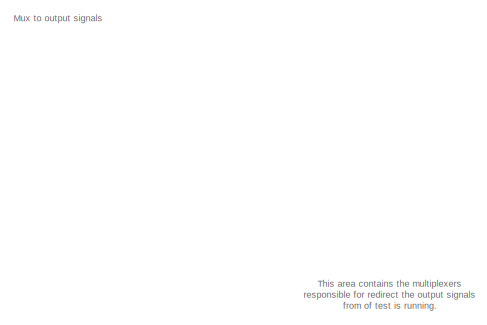
[diagram: root canvas - part 1/92, top left region]
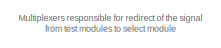
[diagram: root canvas - part 2/92, top right region]
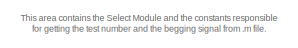
[diagram: root canvas - part 3/92, top center region]
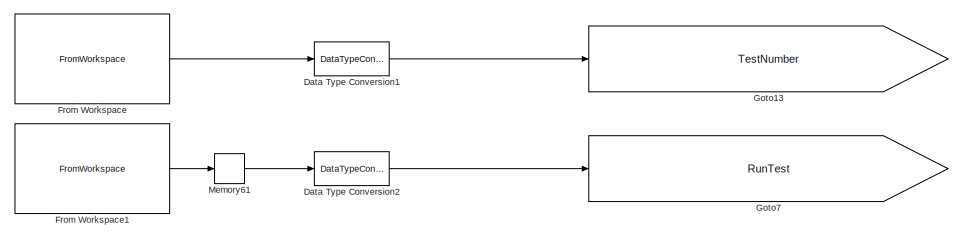
[diagram: root canvas - part 4/92, top right region]
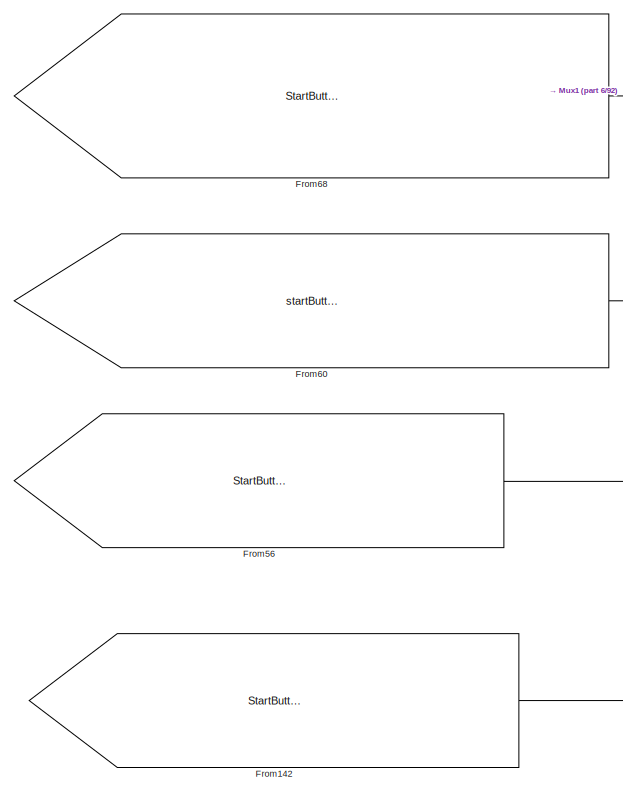
[diagram: root canvas - part 5/92, top left region]
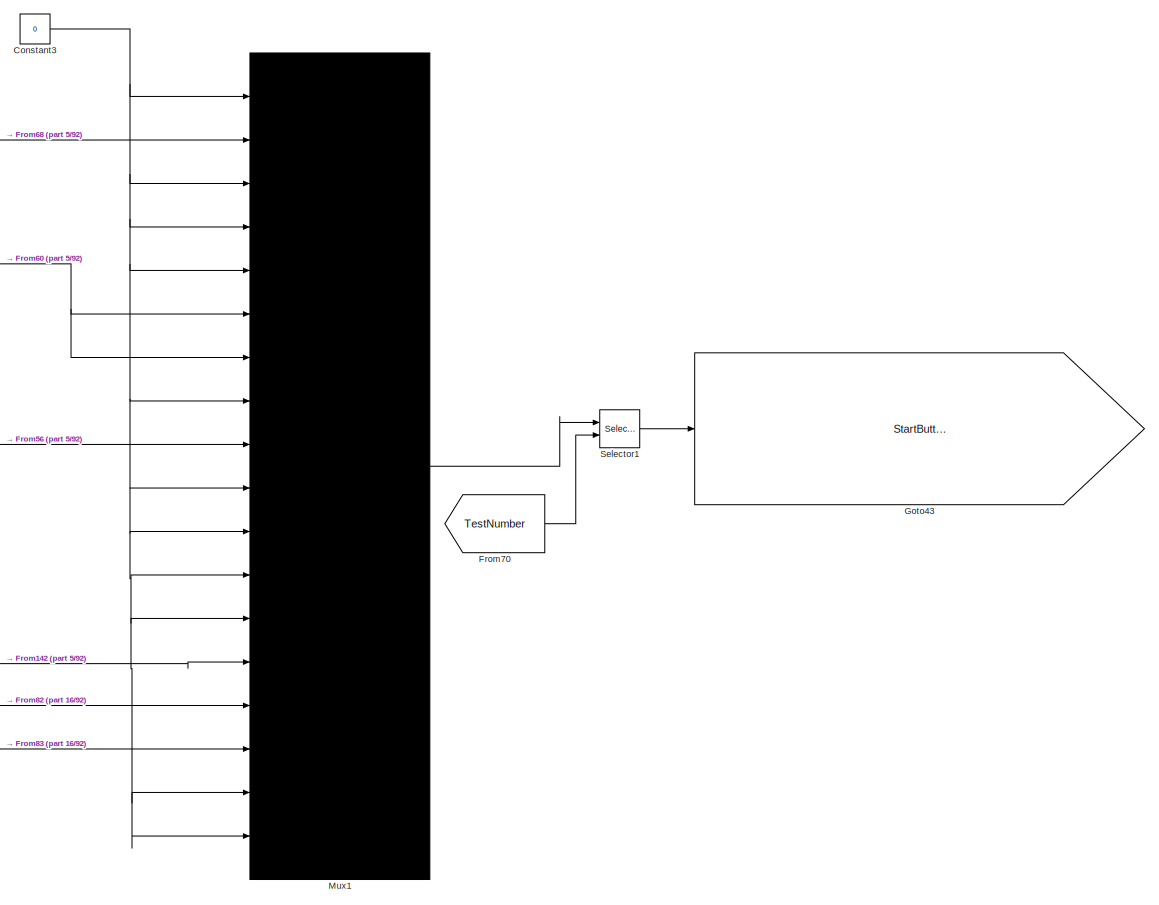
[diagram: root canvas - part 6/92, top left region]
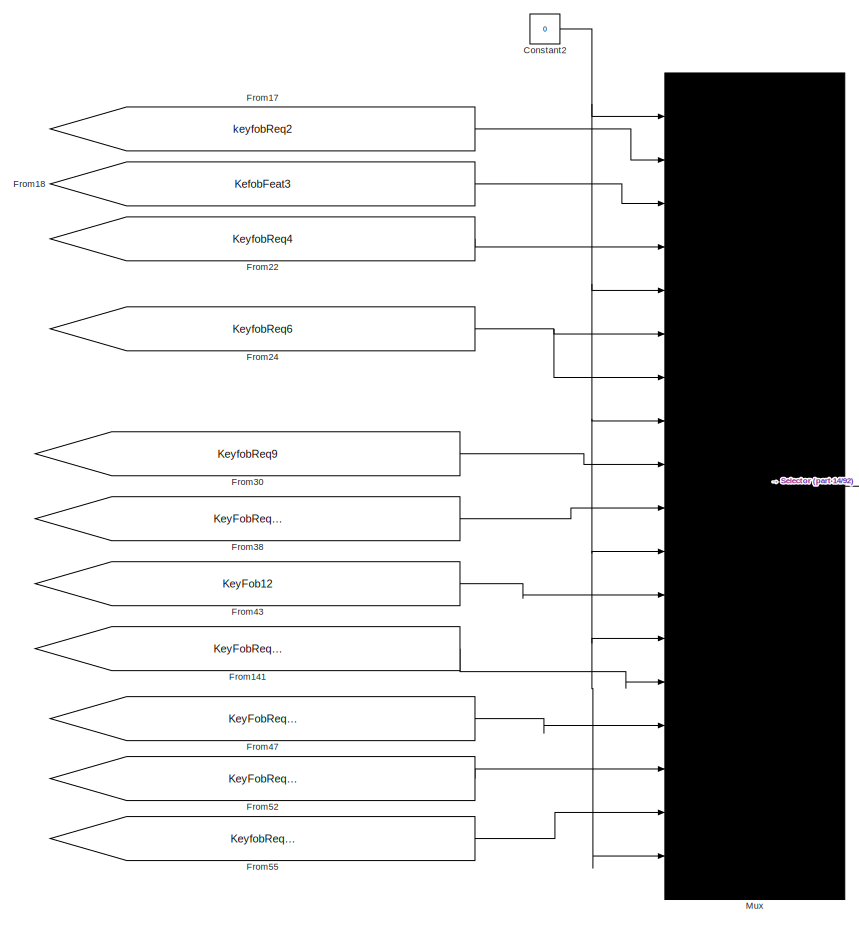
[diagram: root canvas - part 7/92, top center region]
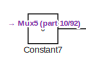
[diagram: root canvas - part 8/92, top right region]
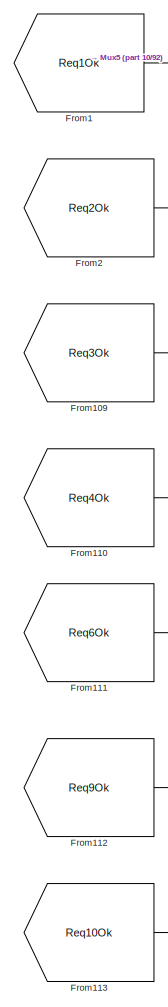
[diagram: root canvas - part 9/92, top right region]
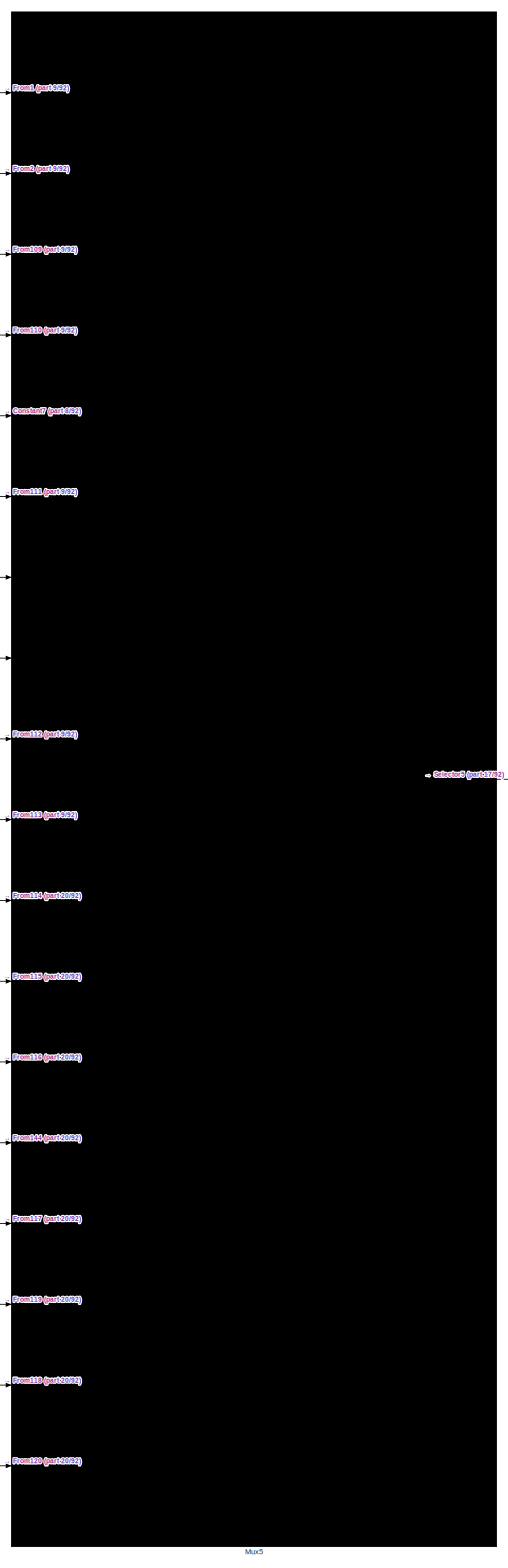
[diagram: root canvas - part 10/92, top right region]
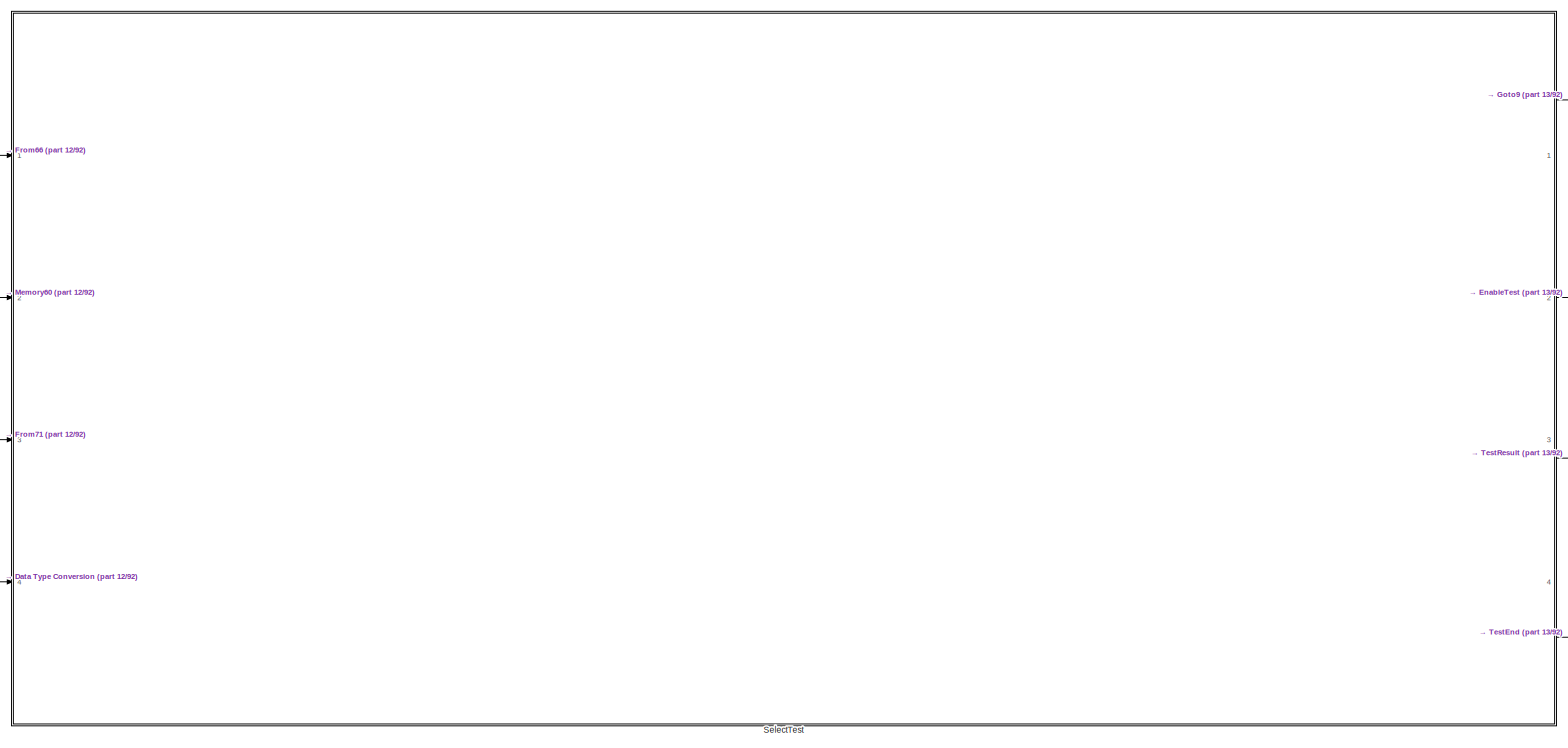
[diagram: root canvas - part 11/92, top center region]
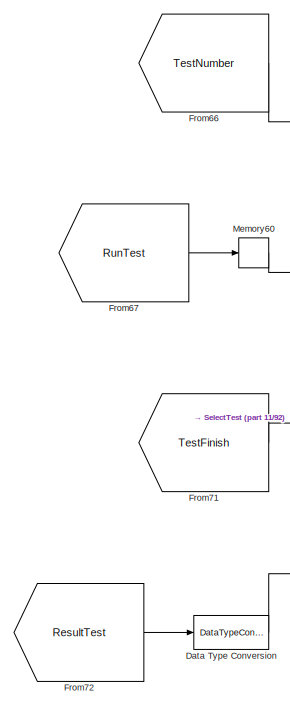
[diagram: root canvas - part 12/92, top center region]
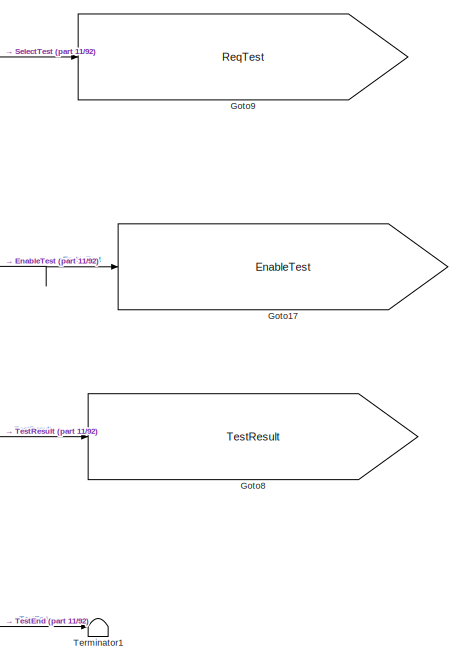
[diagram: root canvas - part 13/92, top right region]
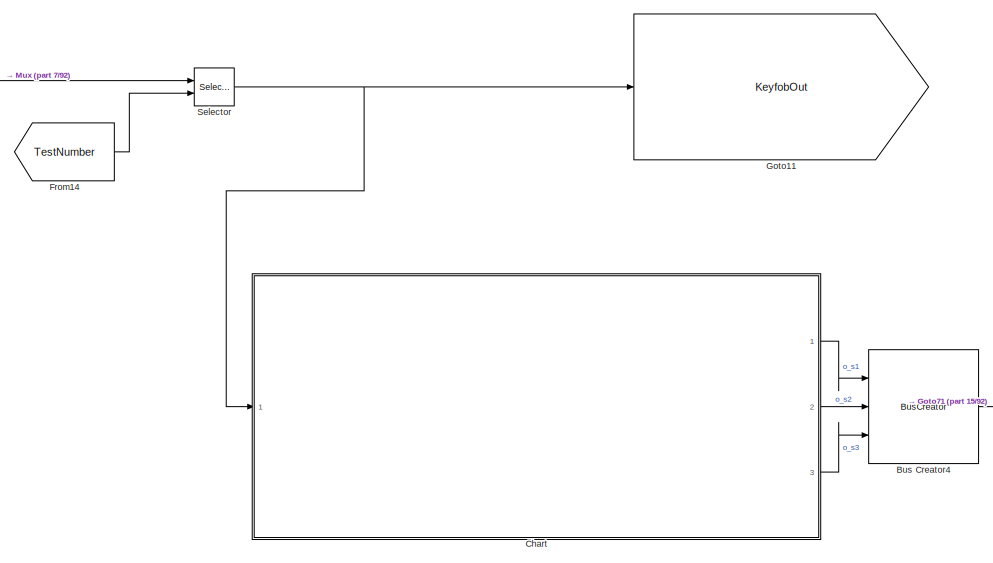
[diagram: root canvas - part 14/92, top center region]
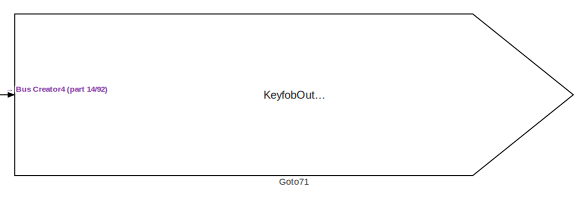
[diagram: root canvas - part 15/92, top center region]
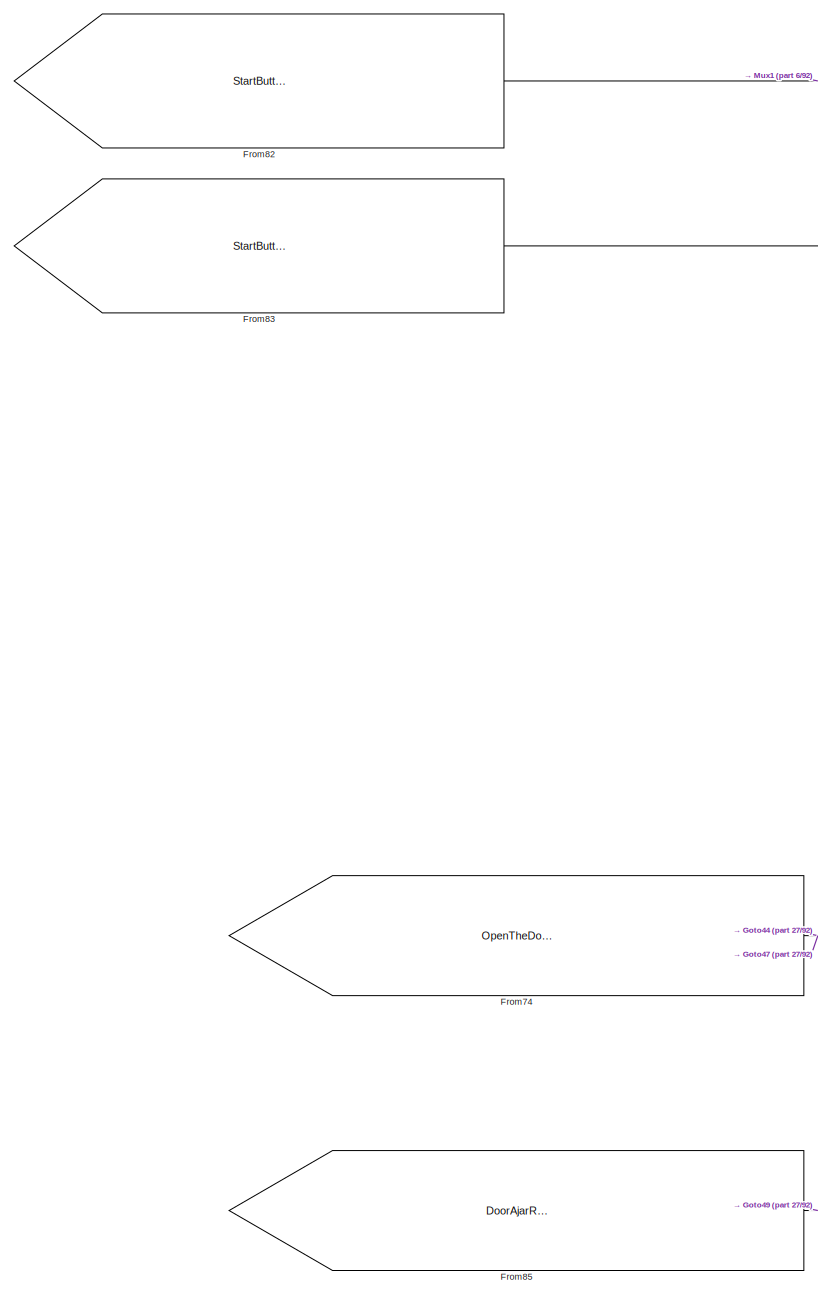
[diagram: root canvas - part 16/92, top left region]
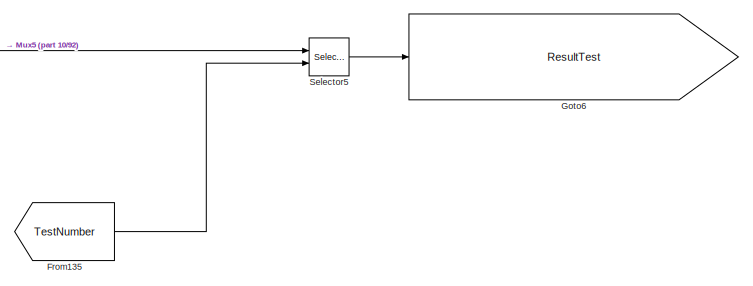
[diagram: root canvas - part 17/92, top right region]
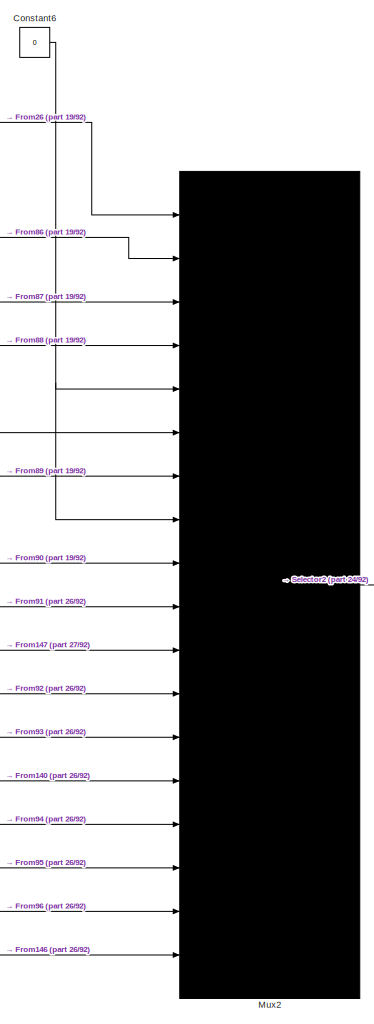
[diagram: root canvas - part 18/92, top center region]
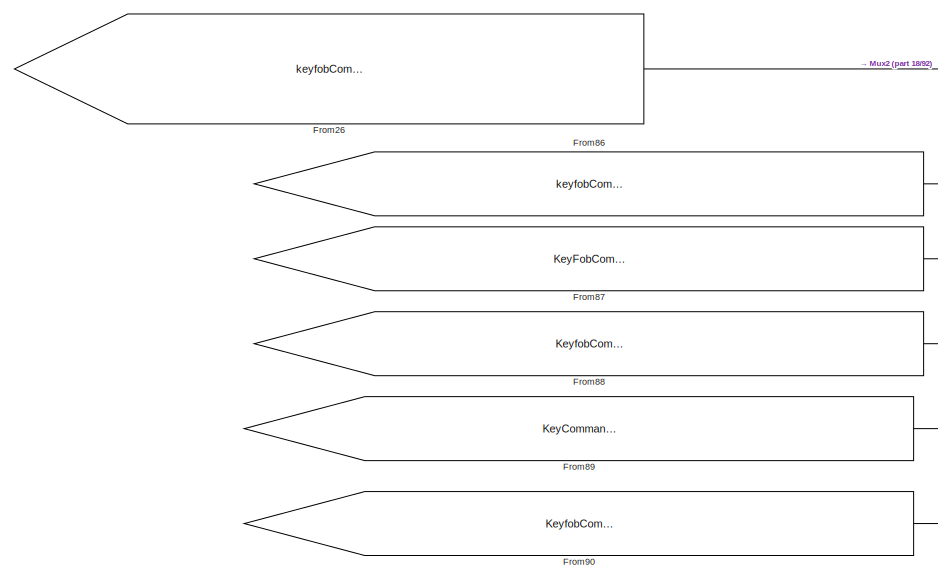
[diagram: root canvas - part 19/92, top center region]
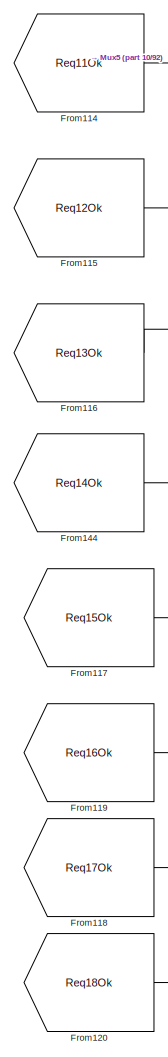
[diagram: root canvas - part 20/92, top right region]
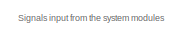
[diagram: root canvas - part 21/92, top center region]
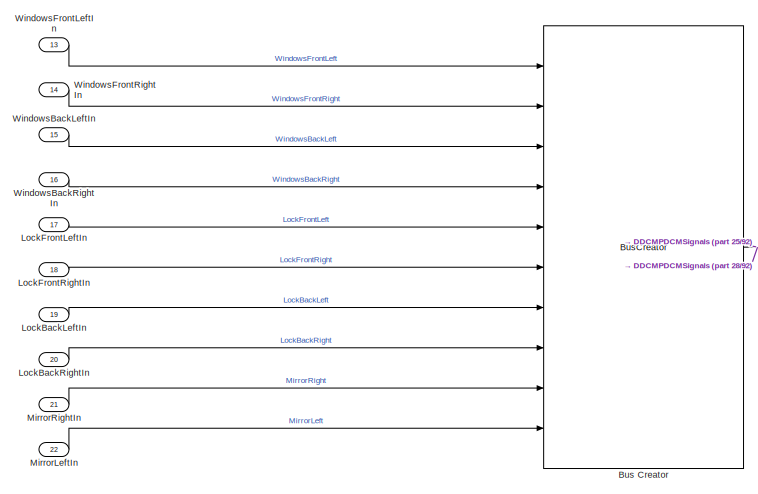
[diagram: root canvas - part 22/92, top center region]
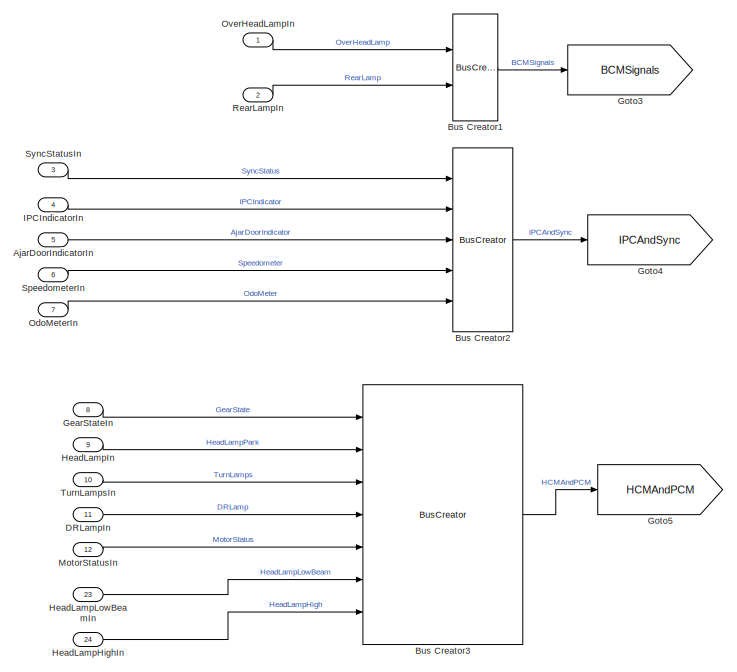
[diagram: root canvas - part 23/92, top right region]
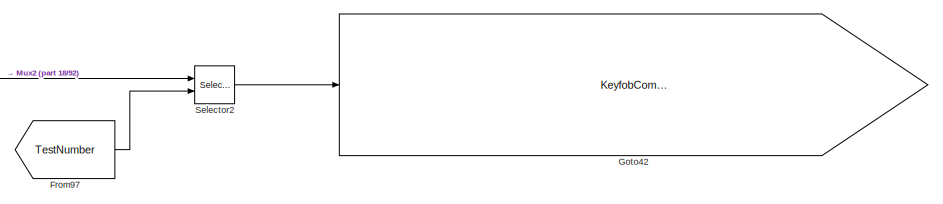
[diagram: root canvas - part 24/92, top center region]
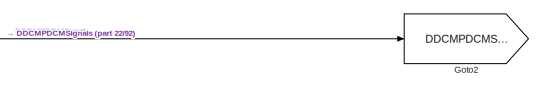
[diagram: root canvas - part 25/92, top center region]
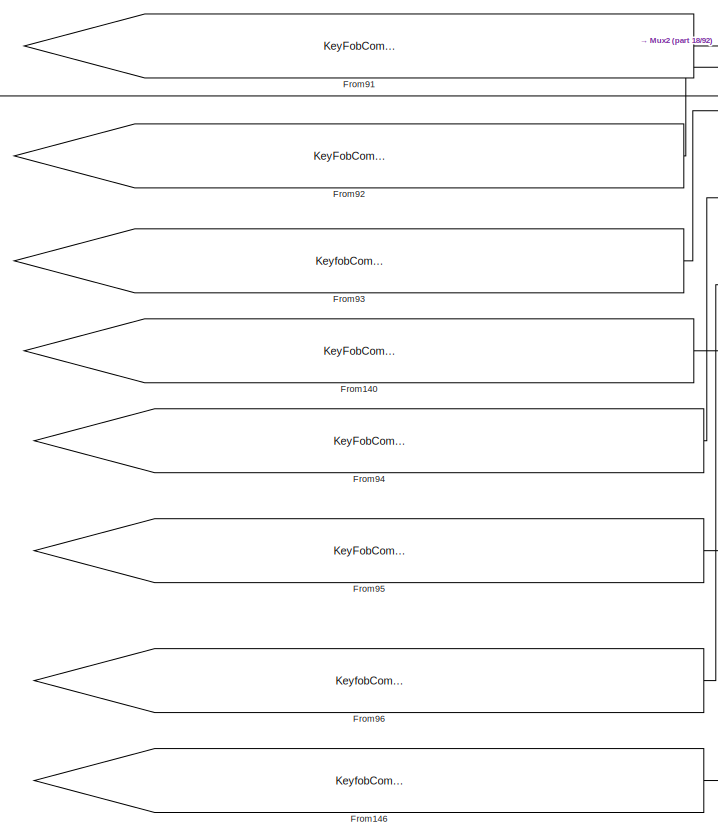
[diagram: root canvas - part 26/92, top center region]
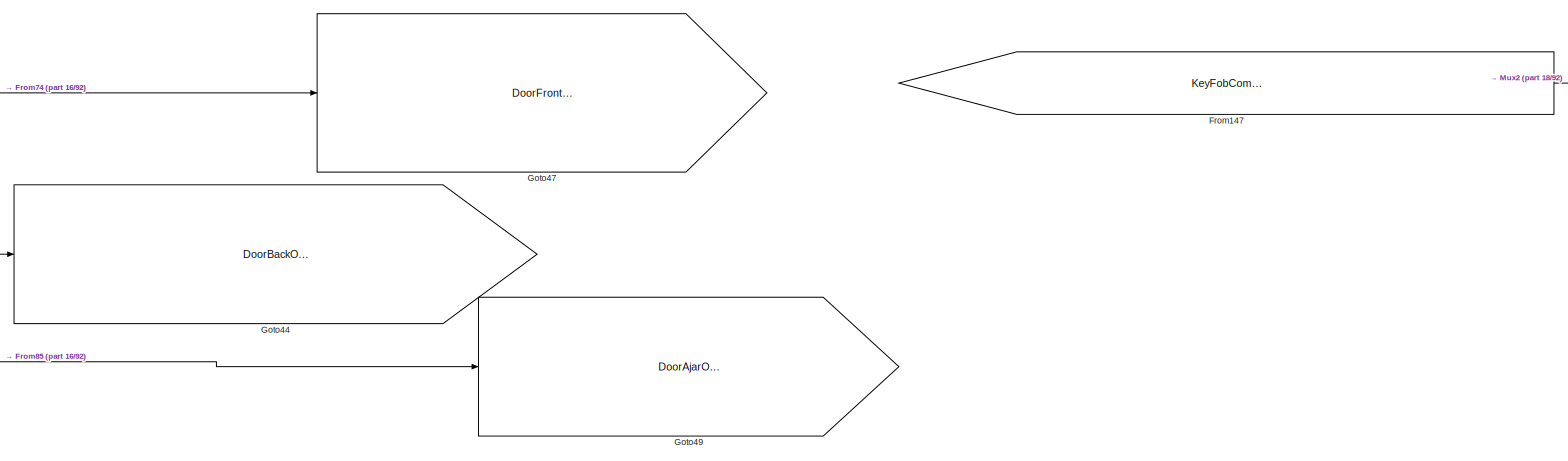
[diagram: root canvas - part 27/92, top left region]
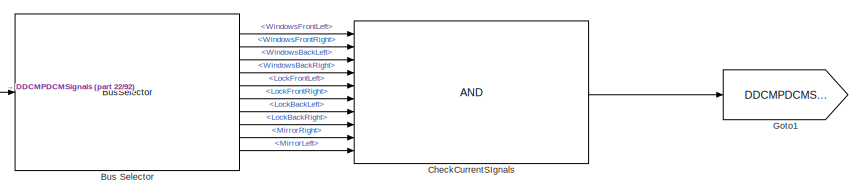
[diagram: root canvas - part 28/92, top center region]
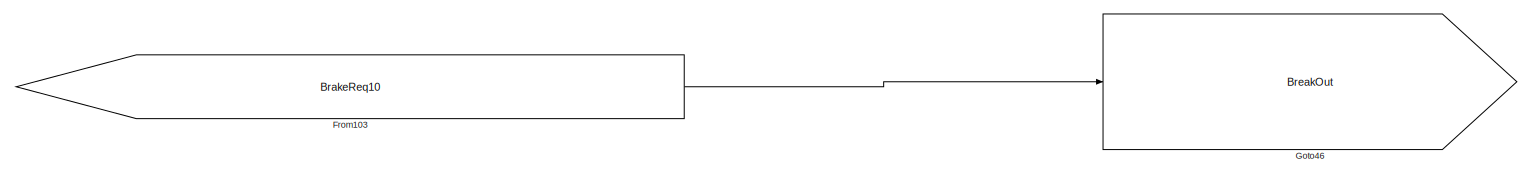
[diagram: root canvas - part 29/92, top left region]
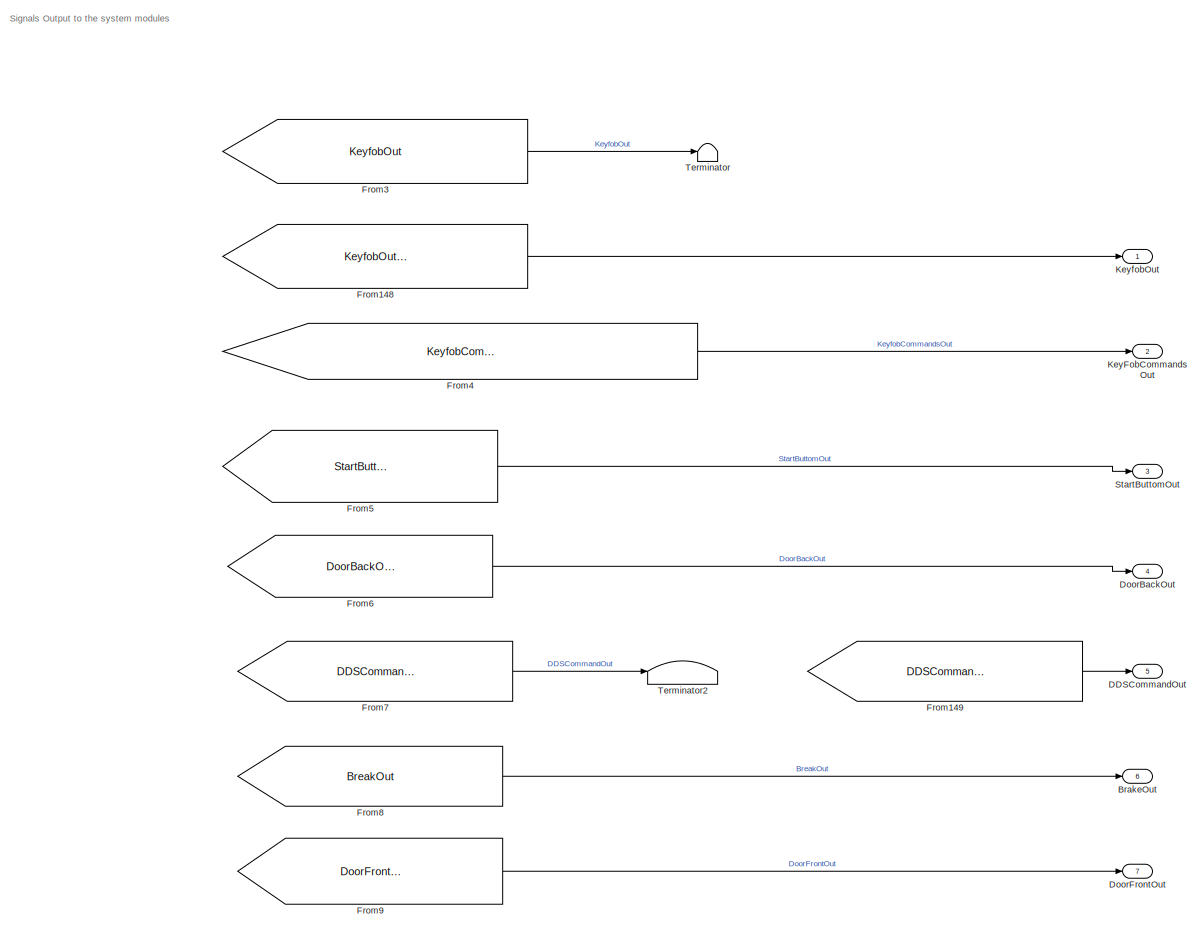
[diagram: root canvas - part 30/92, top center region]
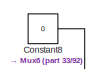
[diagram: root canvas - part 31/92, top right region]
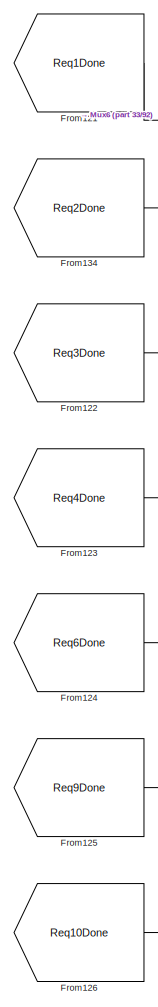
[diagram: root canvas - part 32/92, top right region]
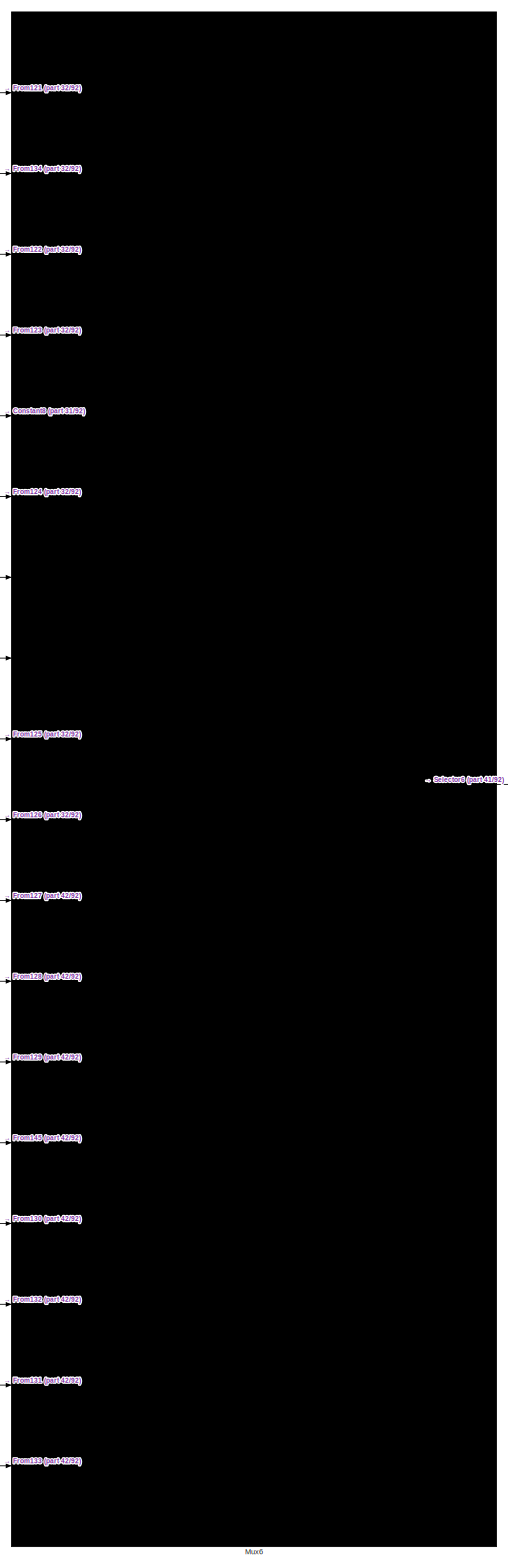
[diagram: root canvas - part 33/92, top right region]
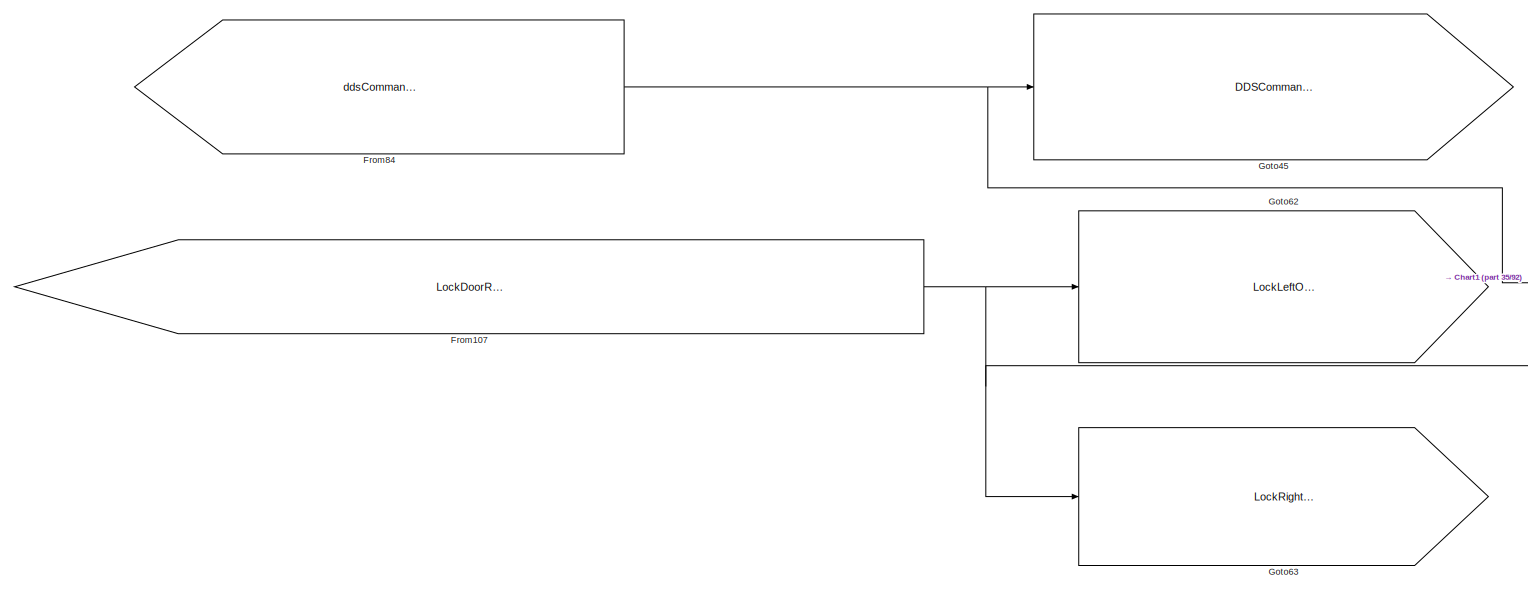
[diagram: root canvas - part 34/92, top left region]
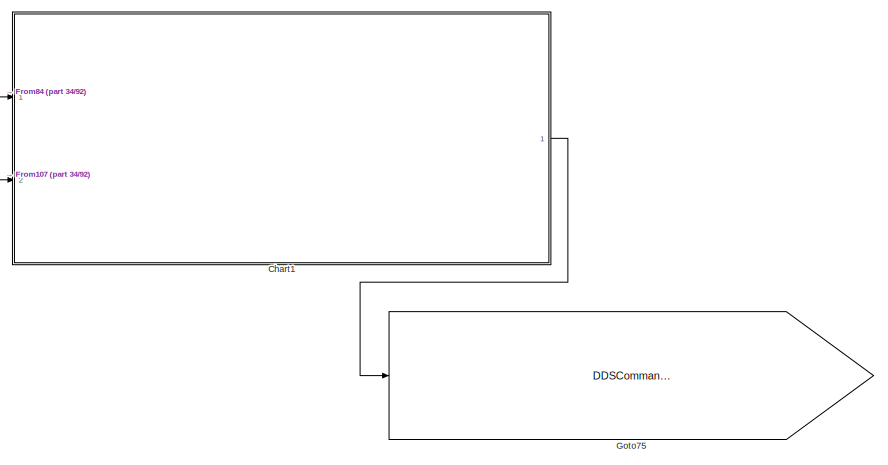
[diagram: root canvas - part 35/92, top center region]
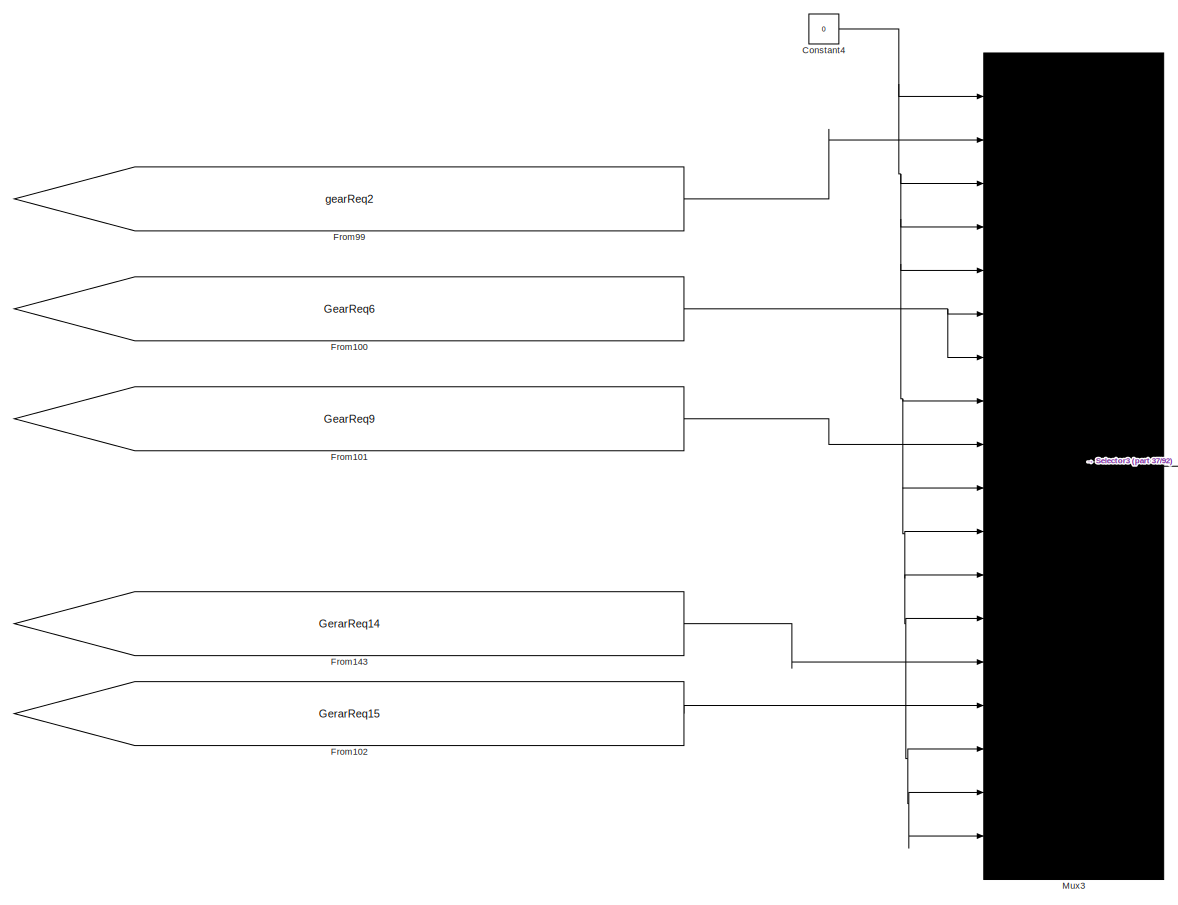
[diagram: root canvas - part 36/92, top center region]
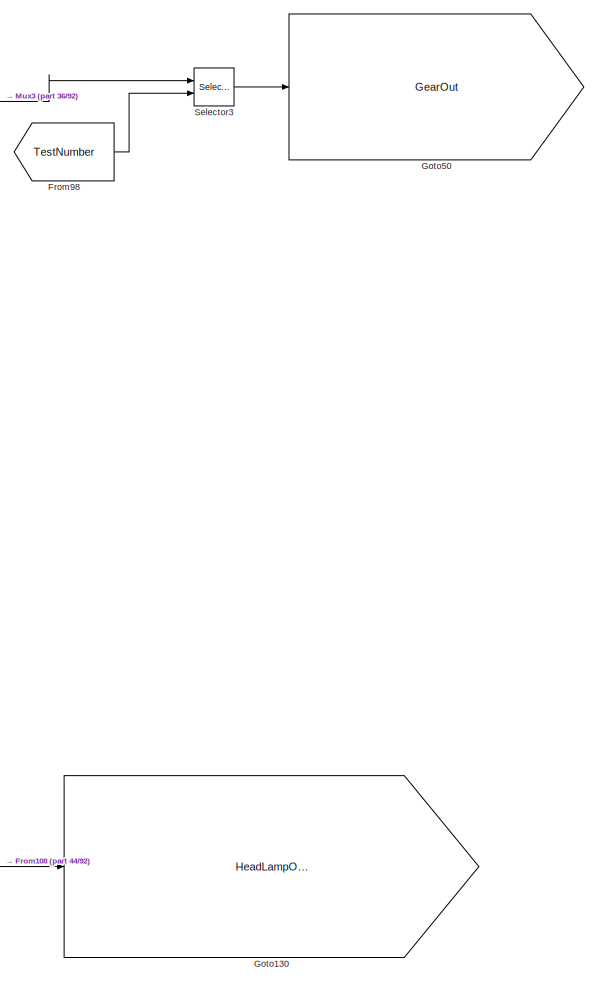
[diagram: root canvas - part 37/92, central region]
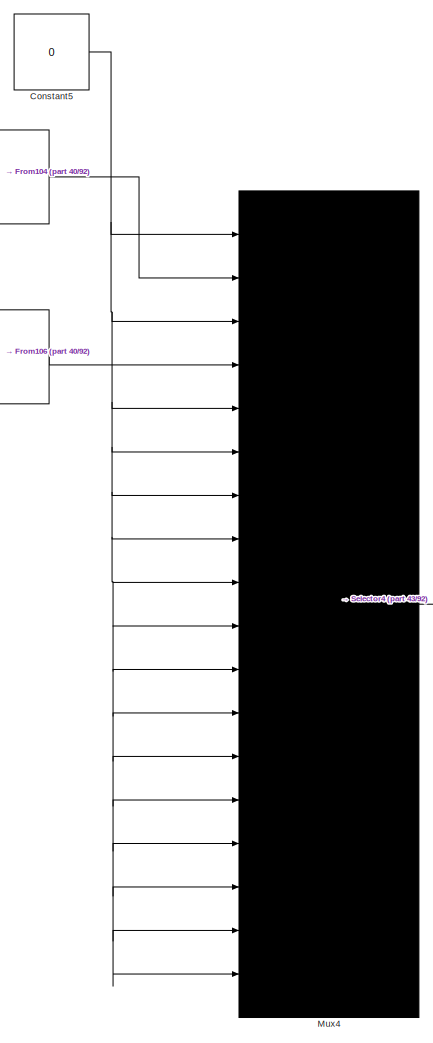
[diagram: root canvas - part 38/92, middle left region]
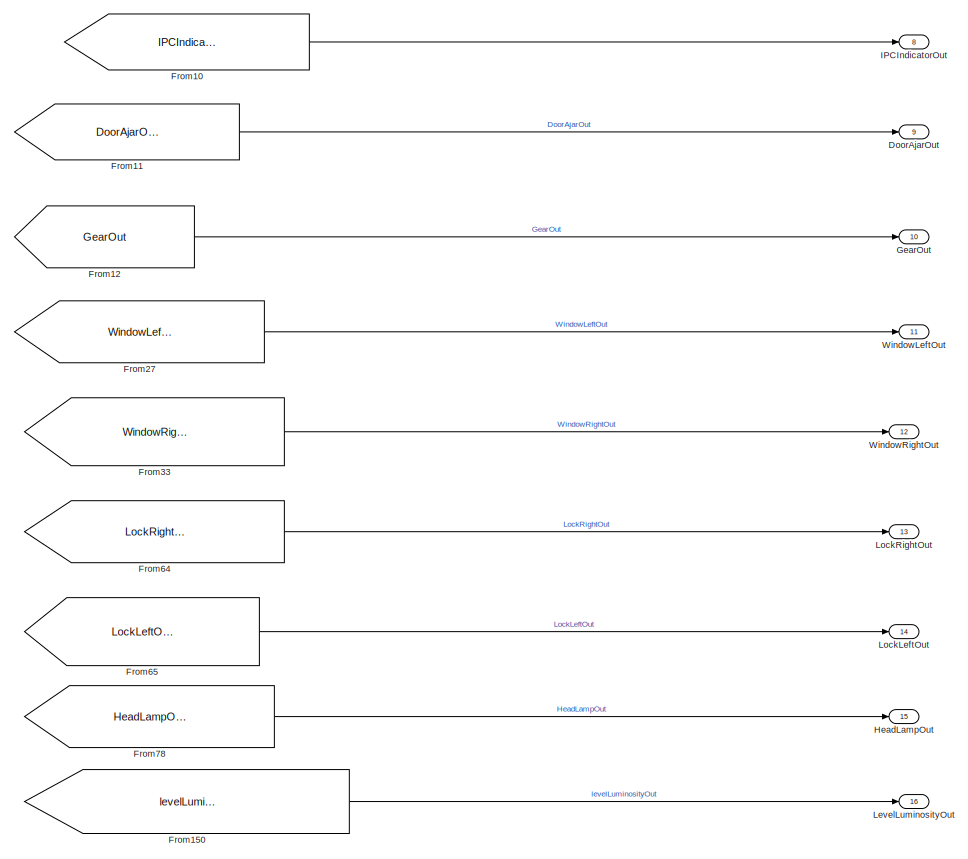
[diagram: root canvas - part 39/92, central region]
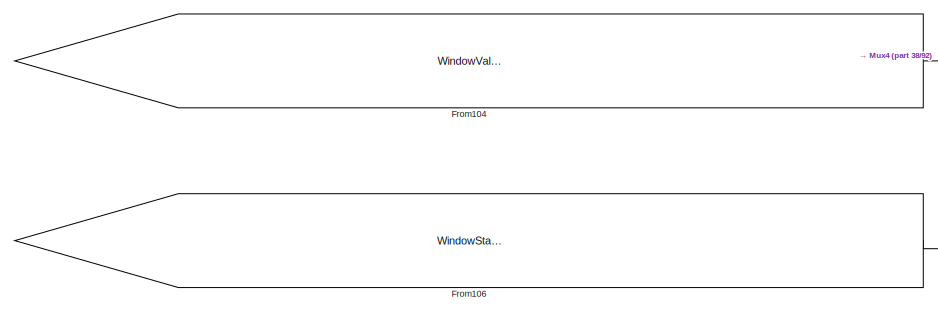
[diagram: root canvas - part 40/92, top left region]
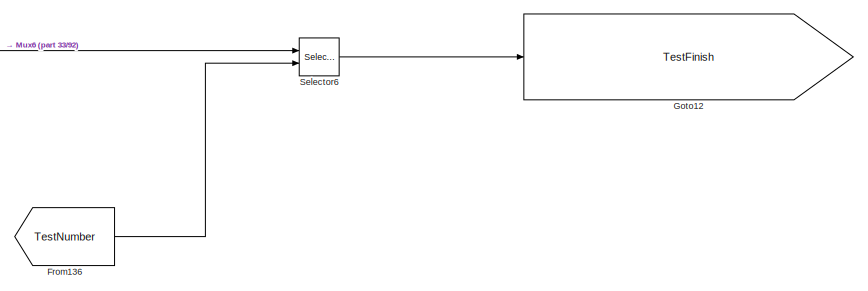
[diagram: root canvas - part 41/92, top right region]
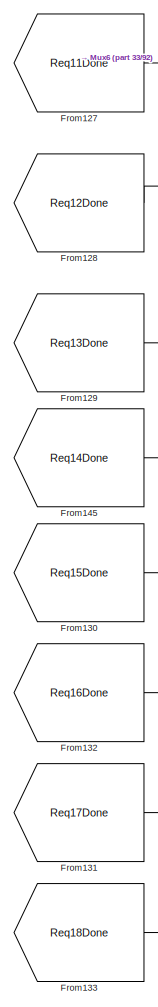
[diagram: root canvas - part 42/92, middle right region]
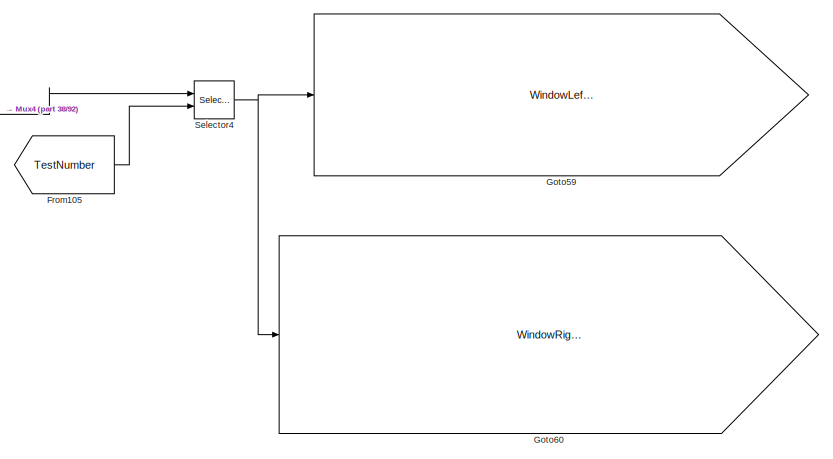
[diagram: root canvas - part 43/92, middle left region]
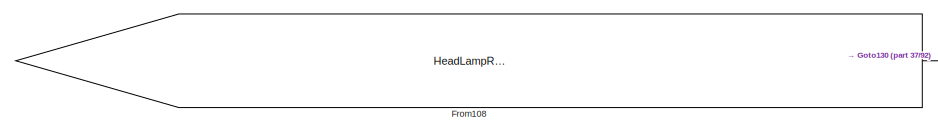
[diagram: root canvas - part 44/92, central region]
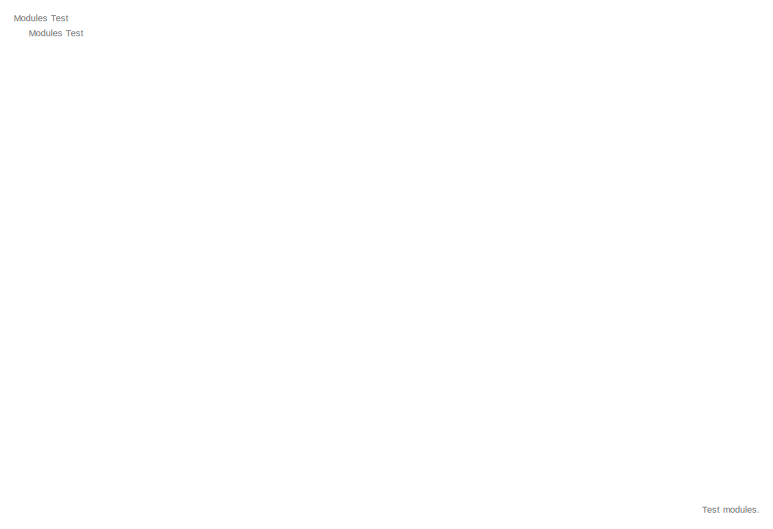
[diagram: root canvas - part 45/92, middle left region]
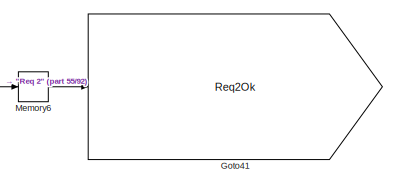
[diagram: root canvas - part 46/92, central region]
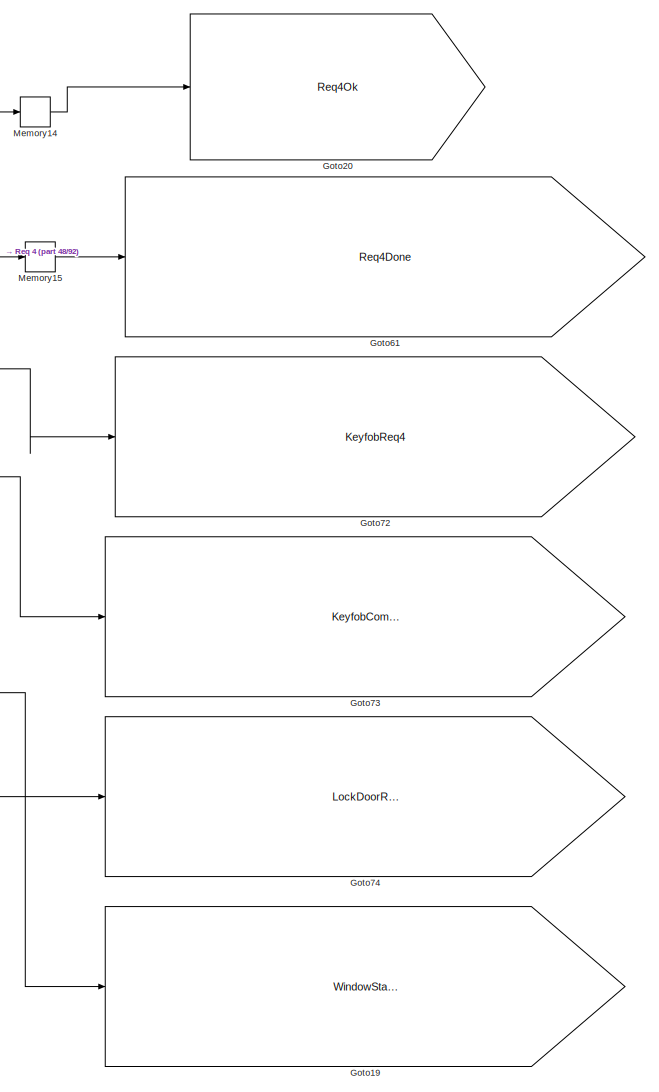
[diagram: root canvas - part 47/92, middle right region]
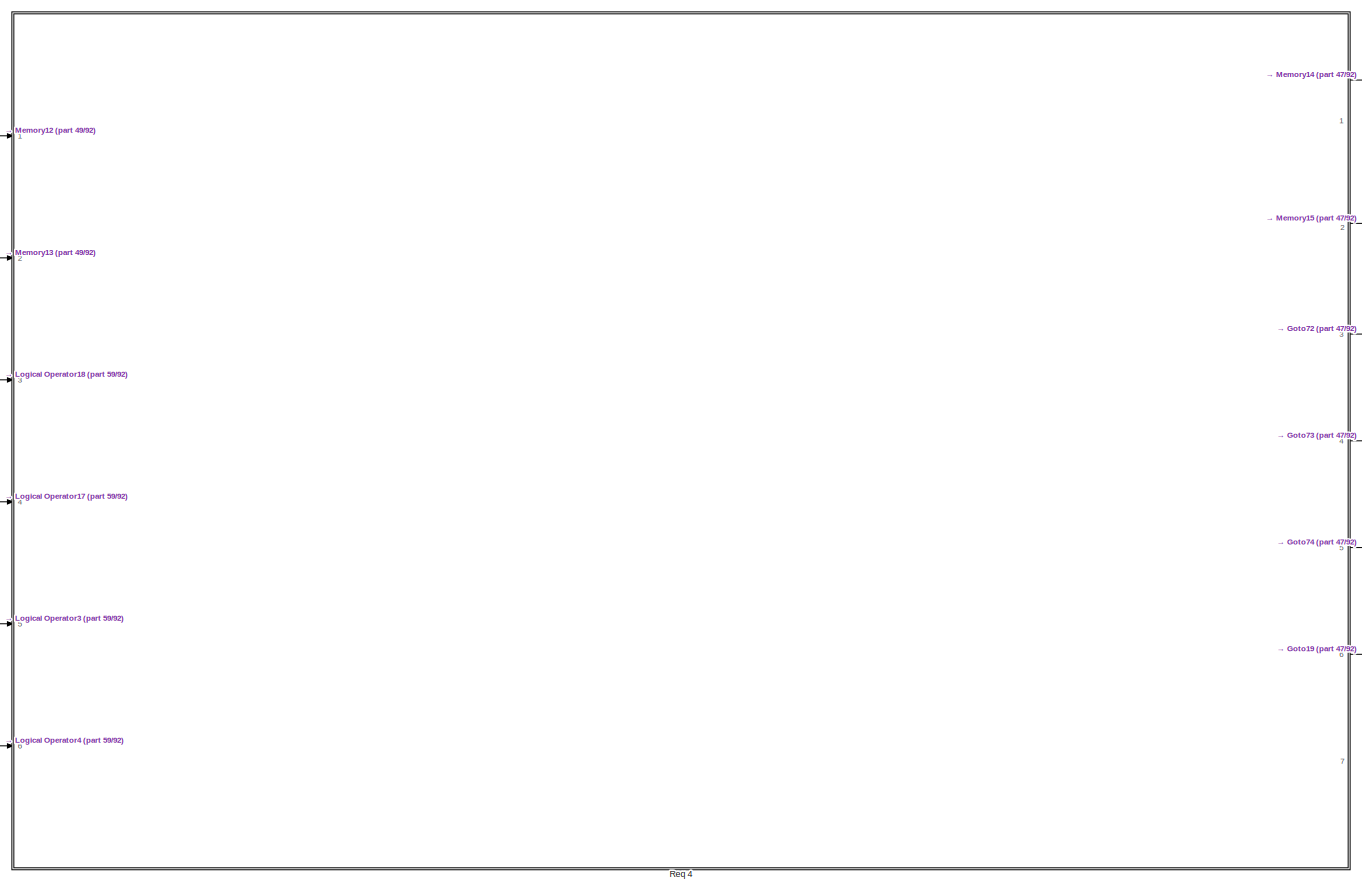
[diagram: root canvas - part 48/92, middle right region]
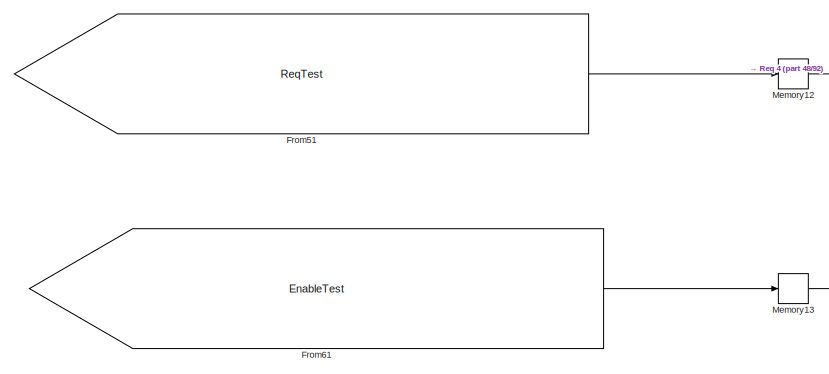
[diagram: root canvas - part 49/92, middle right region]
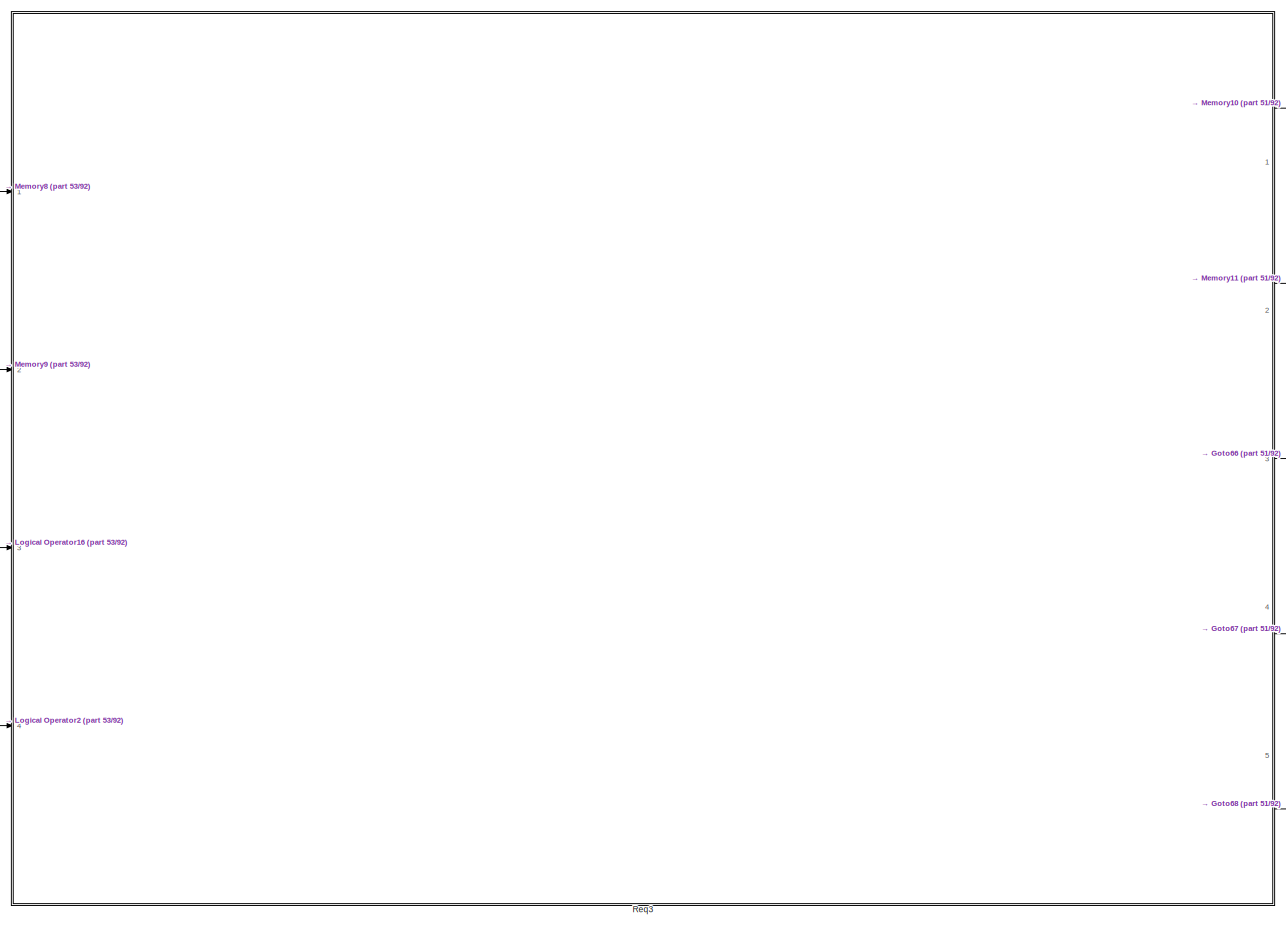
[diagram: root canvas - part 50/92, middle right region]
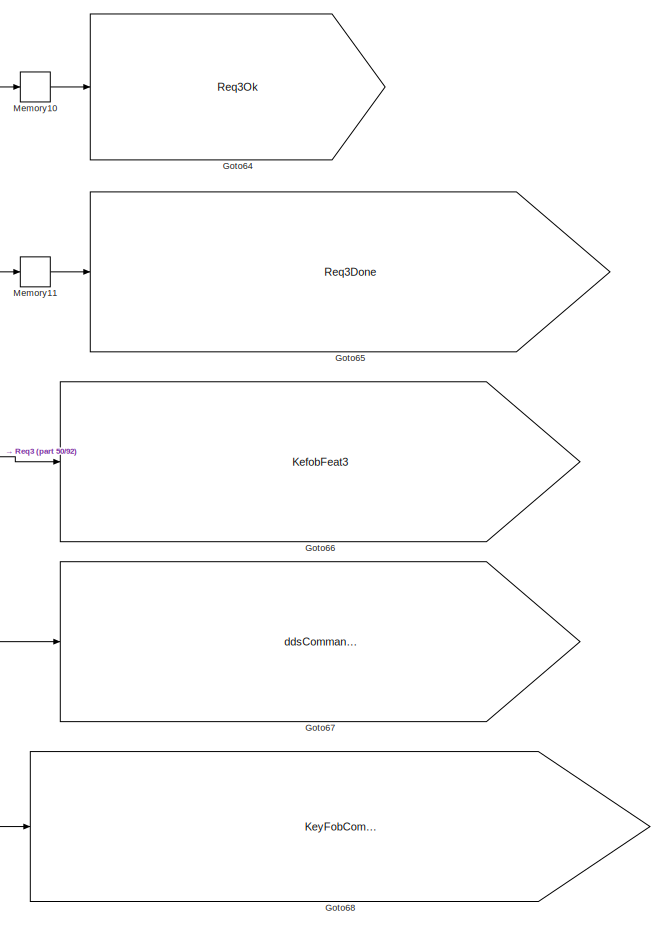
[diagram: root canvas - part 51/92, middle right region]
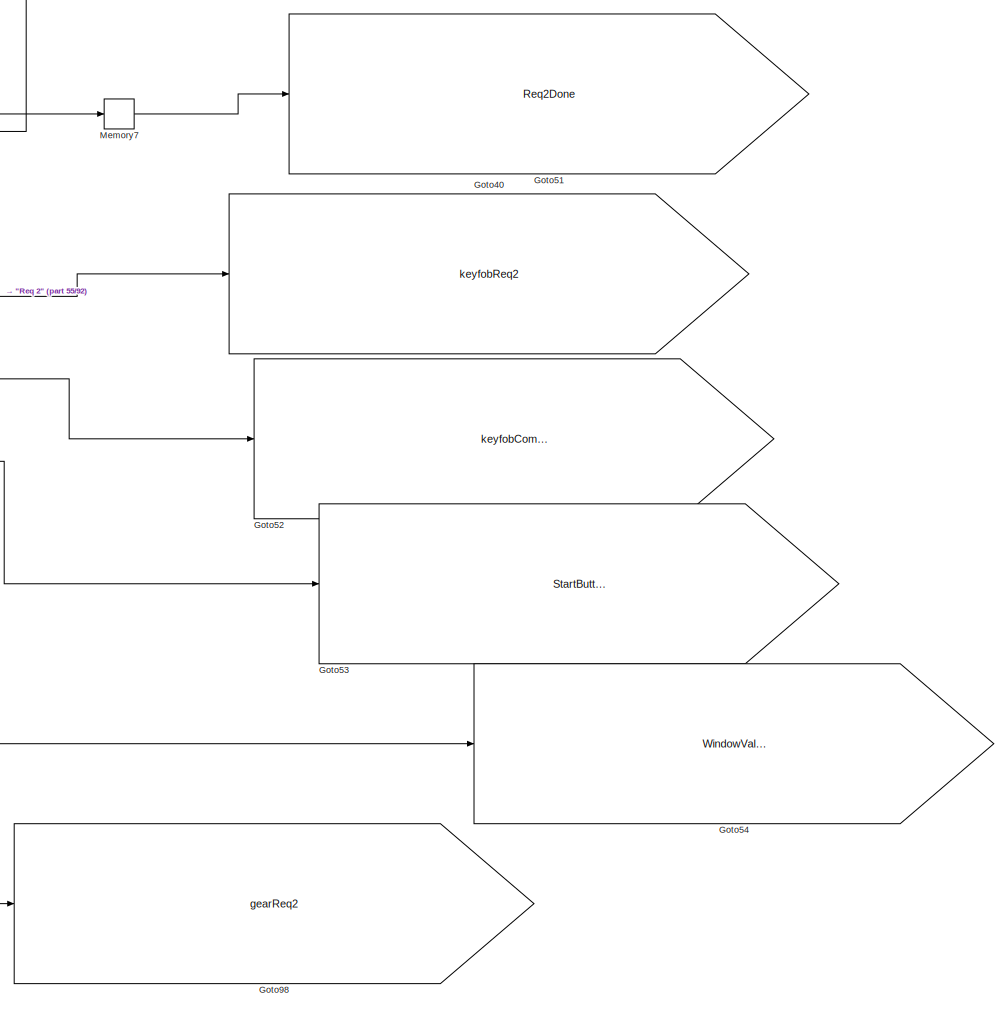
[diagram: root canvas - part 52/92, central region]
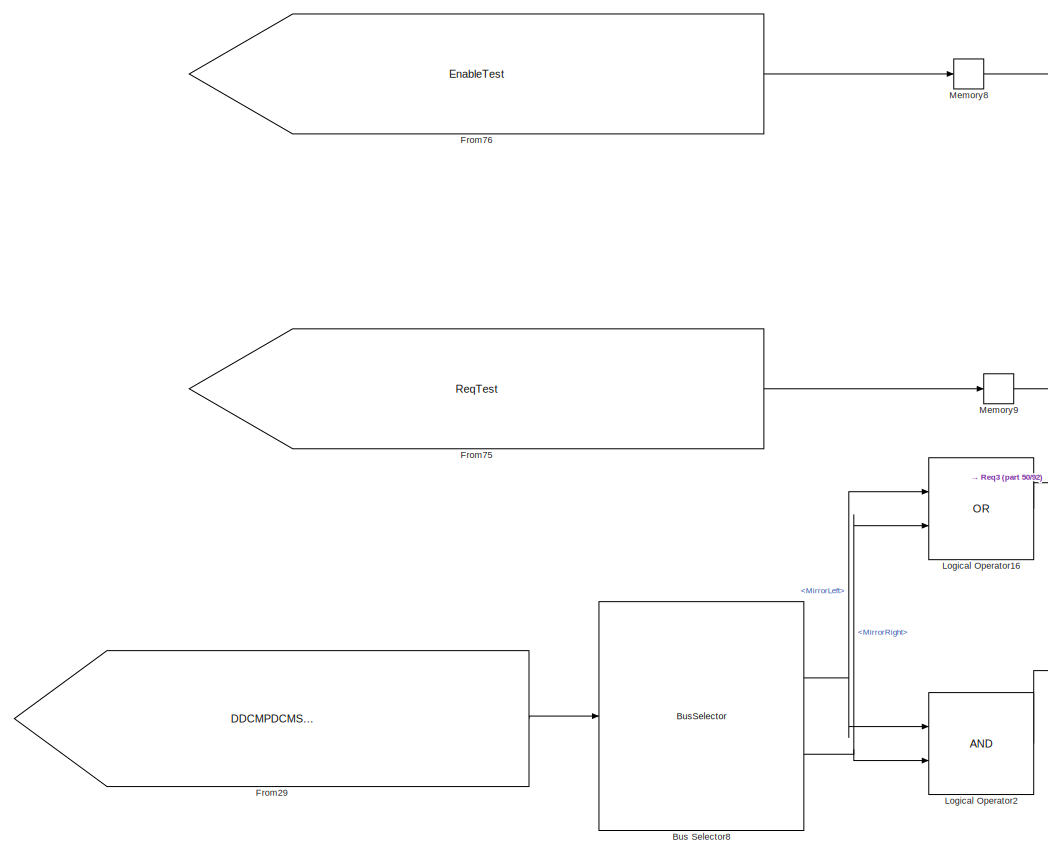
[diagram: root canvas - part 53/92, central region]
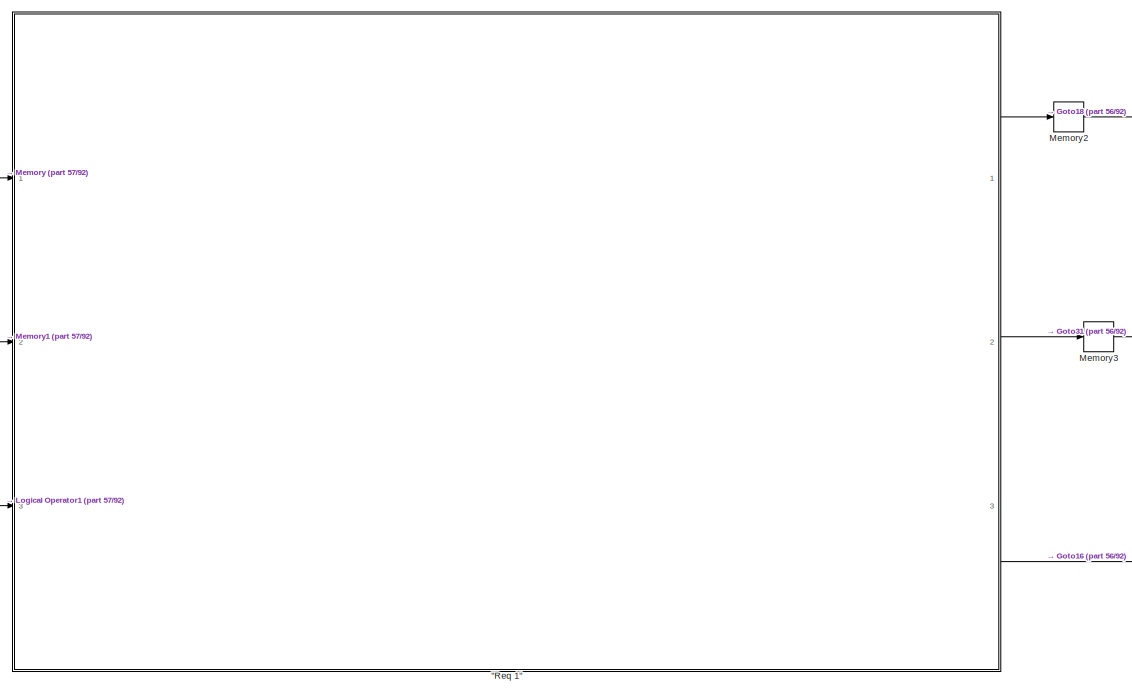
[diagram: root canvas - part 54/92, middle left region]
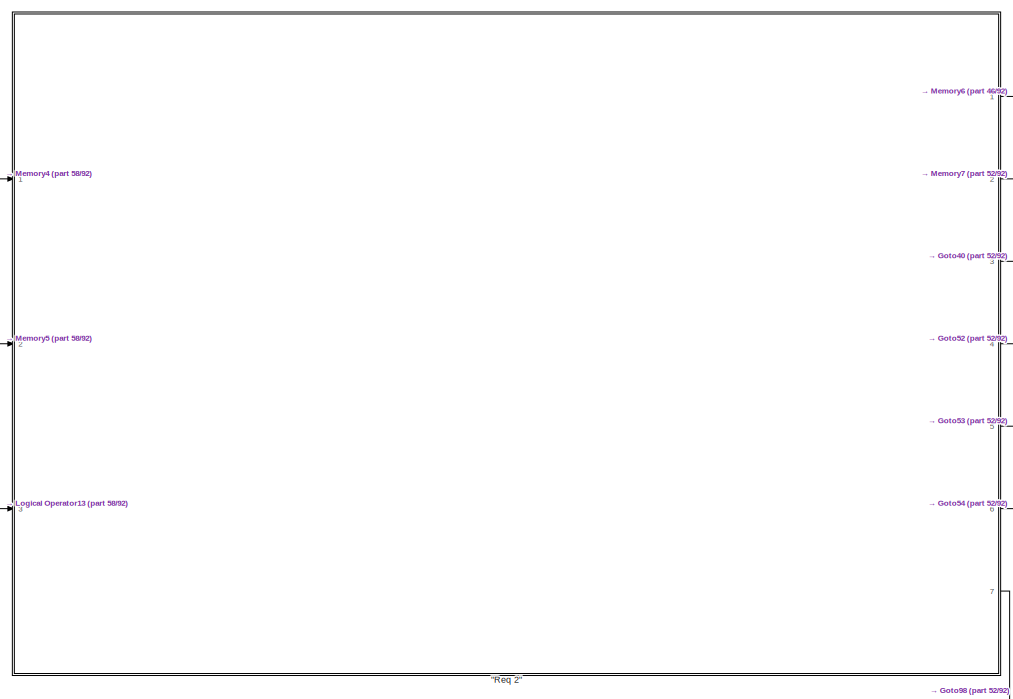
[diagram: root canvas - part 55/92, central region]
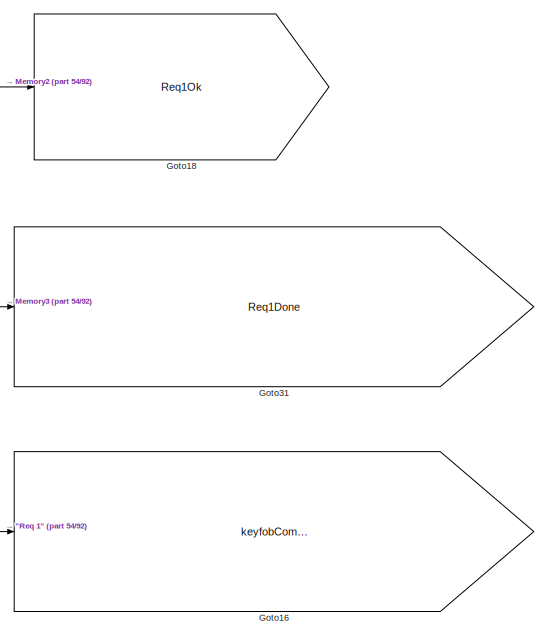
[diagram: root canvas - part 56/92, middle left region]
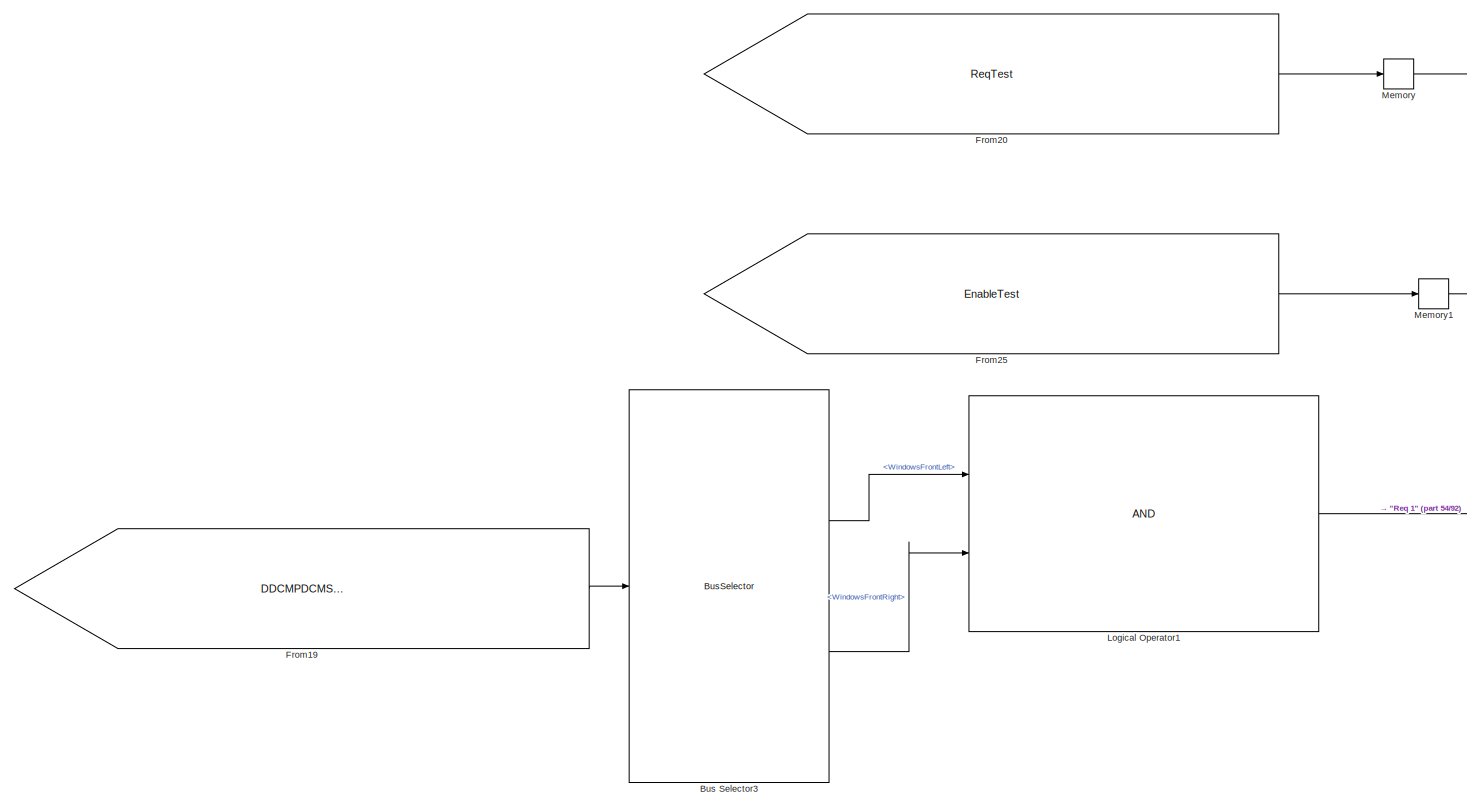
[diagram: root canvas - part 57/92, middle left region]
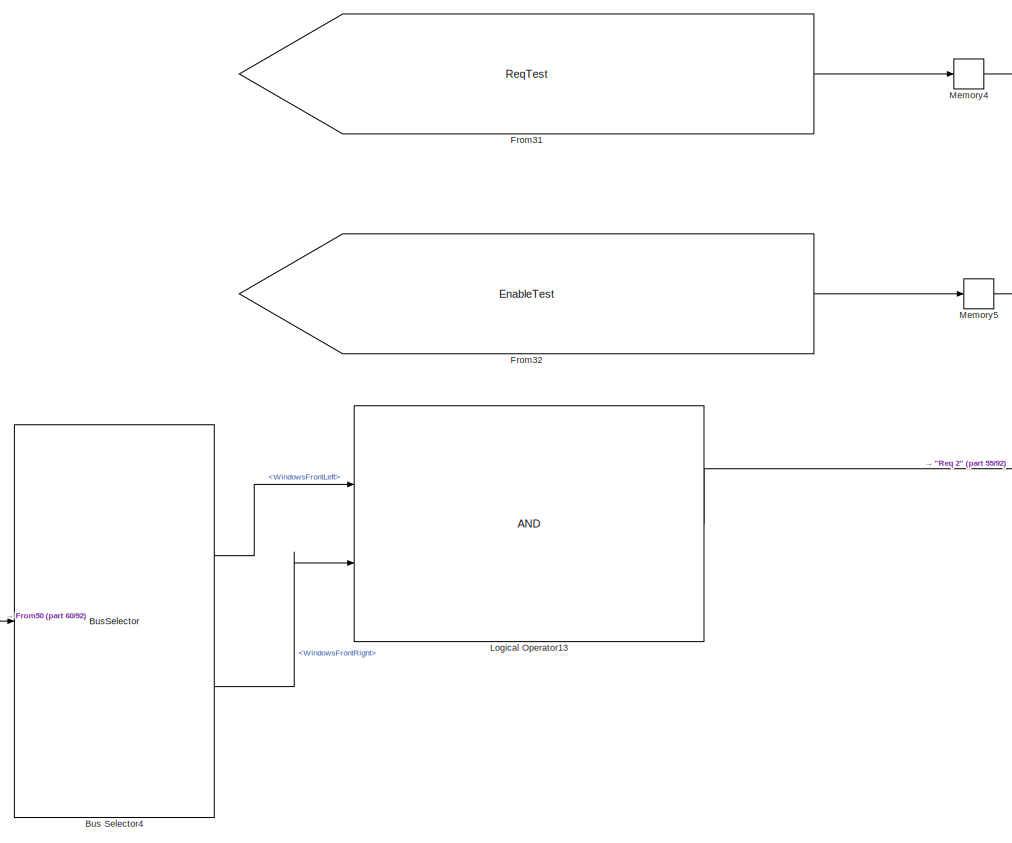
[diagram: root canvas - part 58/92, central region]
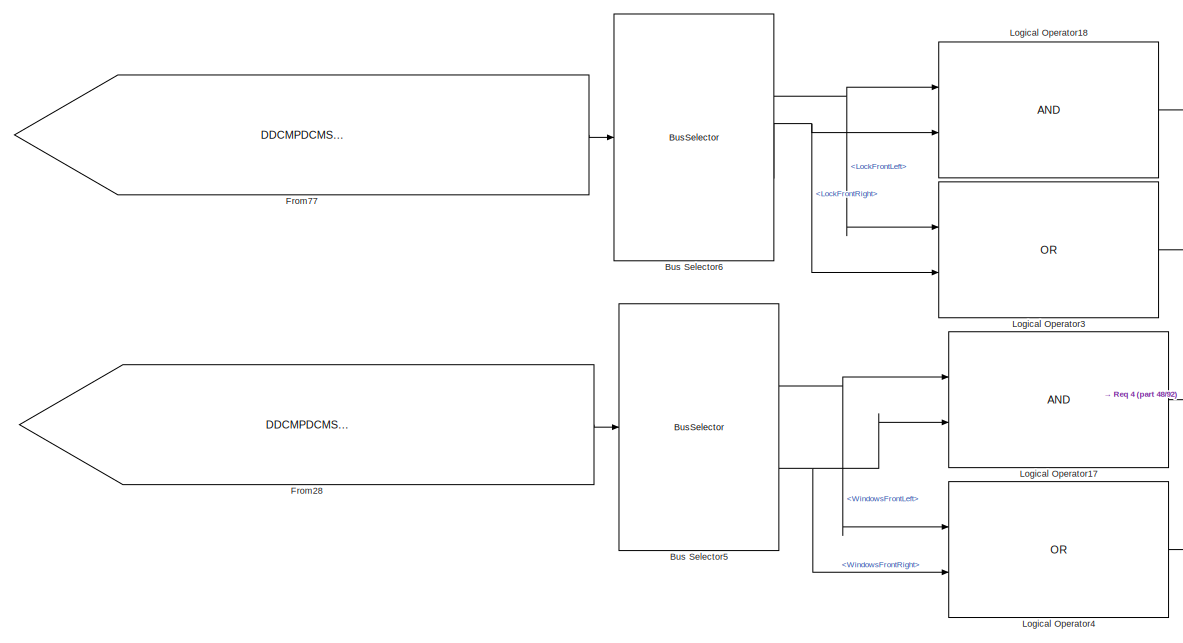
[diagram: root canvas - part 59/92, middle right region]
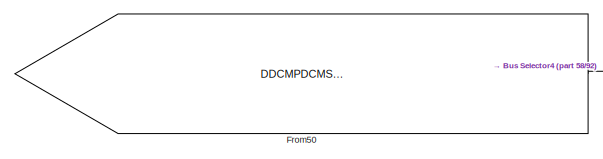
[diagram: root canvas - part 60/92, middle left region]
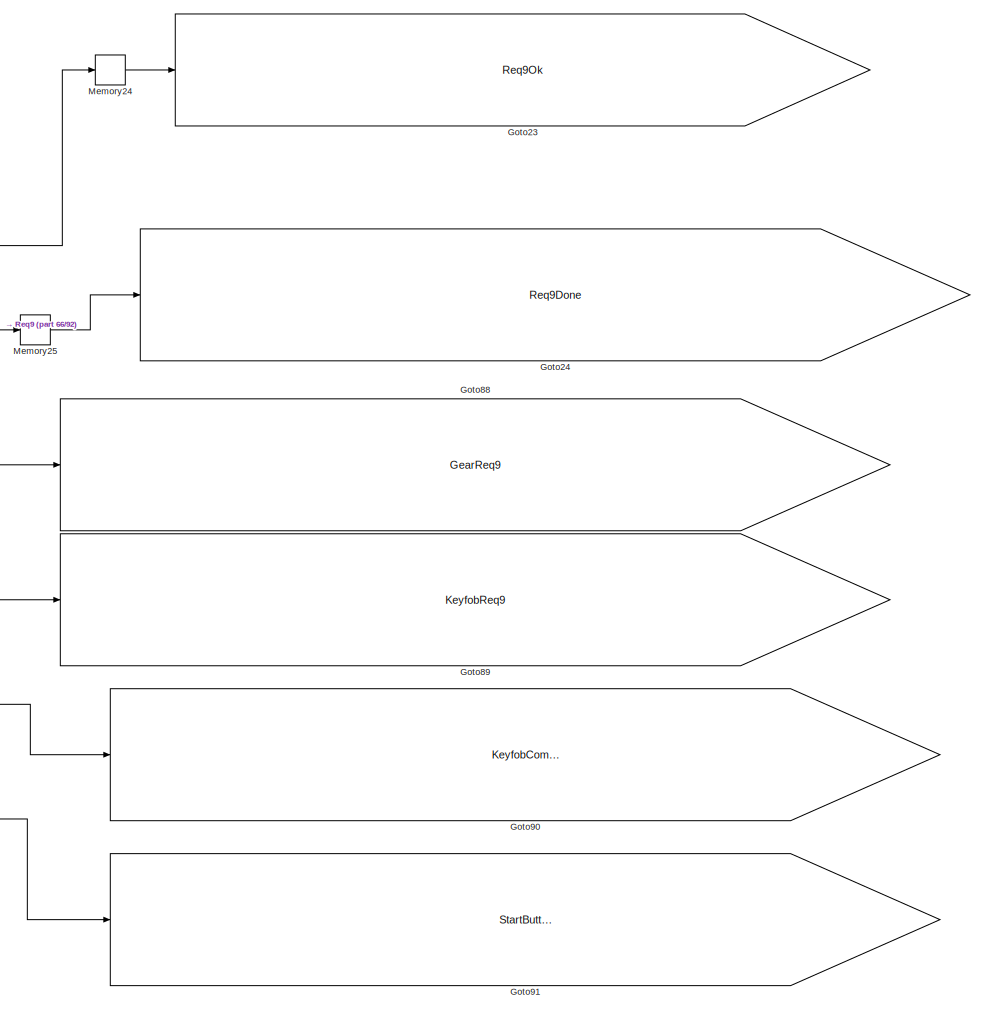
[diagram: root canvas - part 61/92, bottom center region]
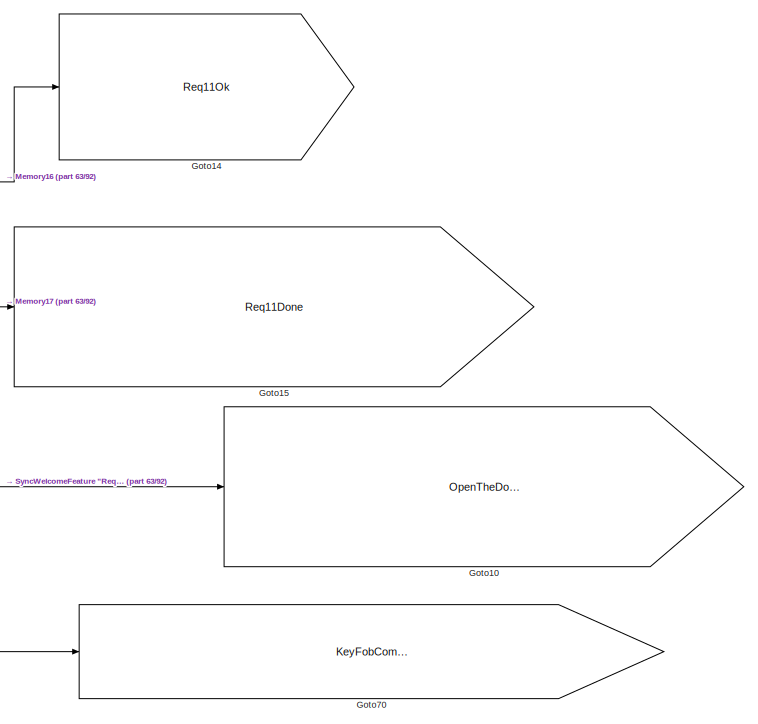
[diagram: root canvas - part 62/92, bottom right region]
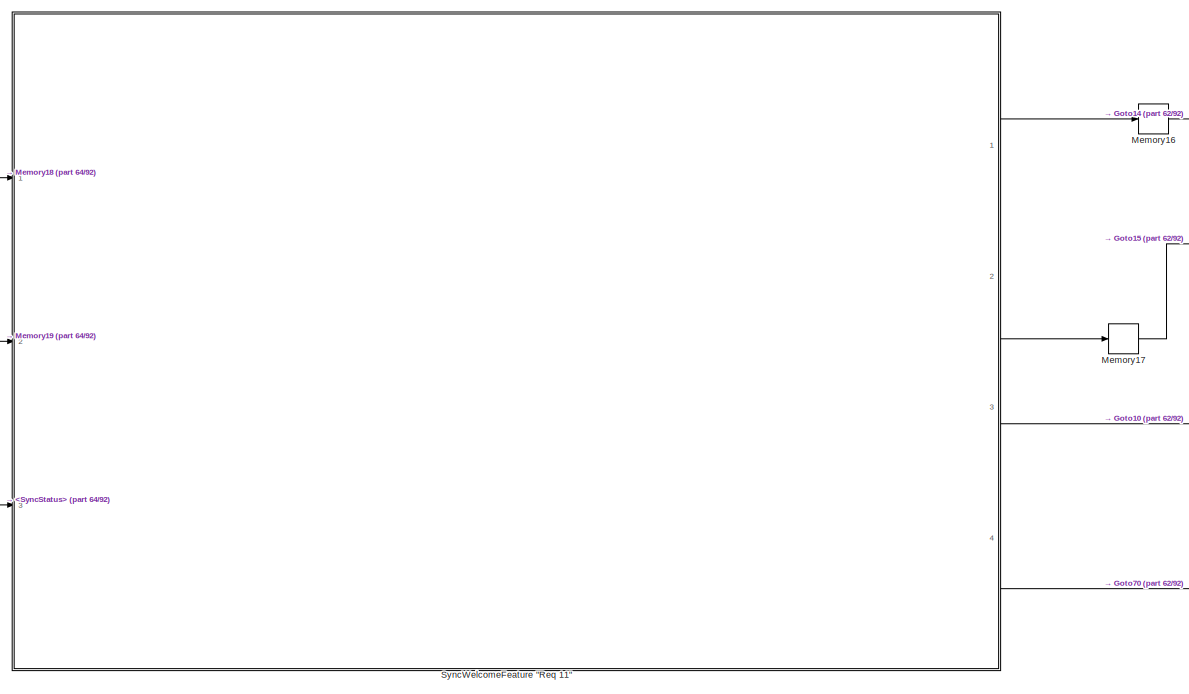
[diagram: root canvas - part 63/92, bottom right region]
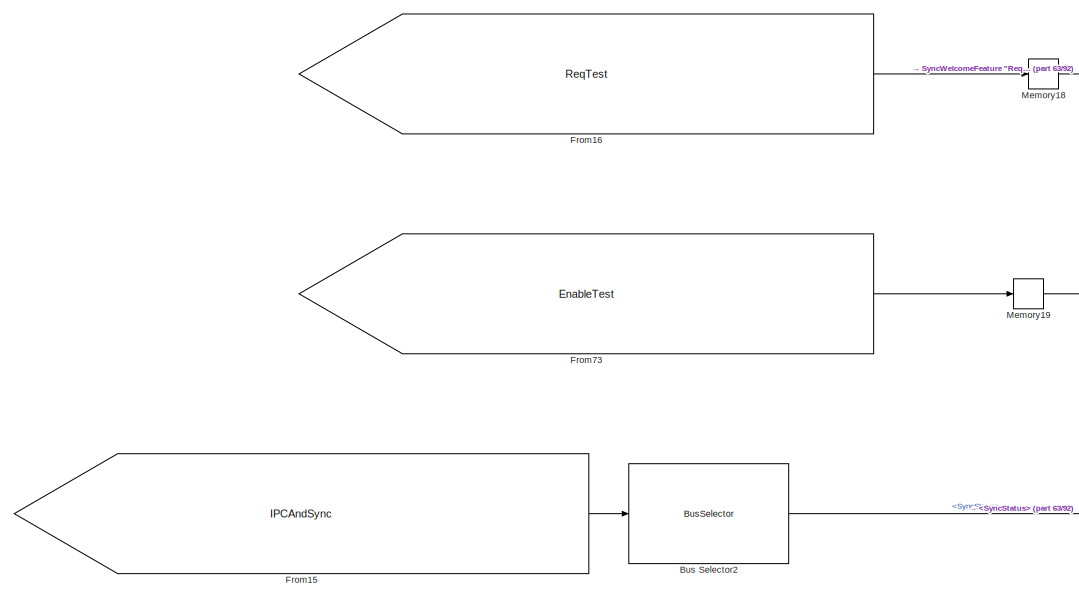
[diagram: root canvas - part 64/92, bottom right region]
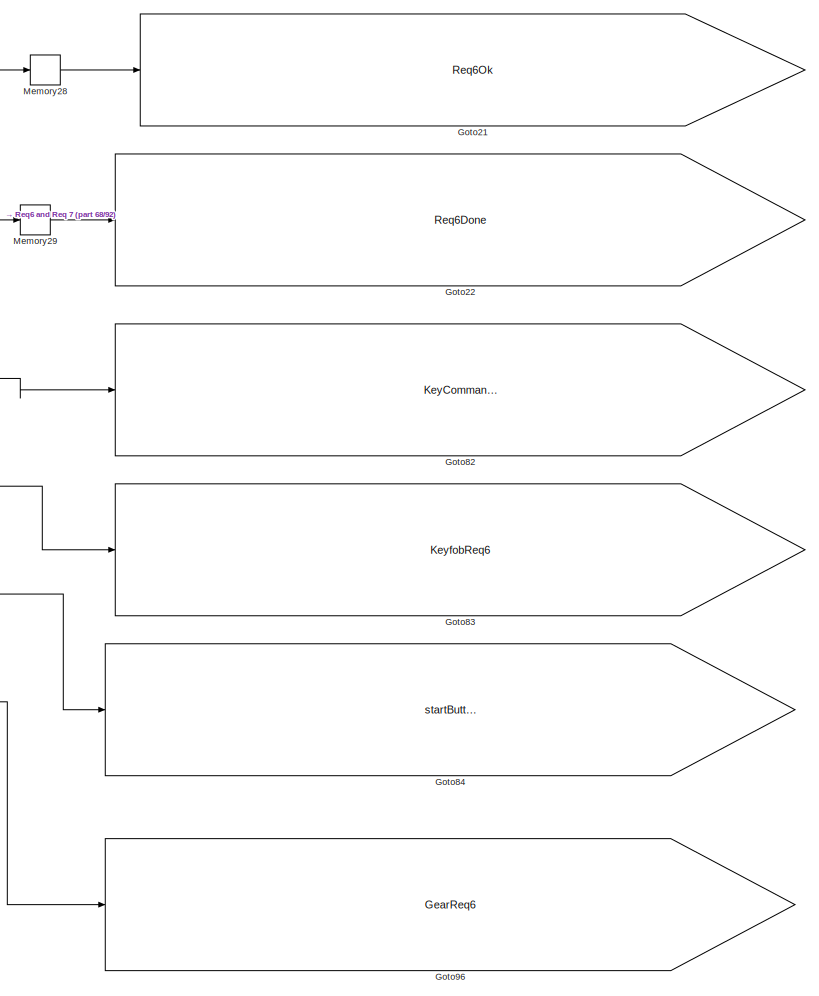
[diagram: root canvas - part 65/92, bottom left region]
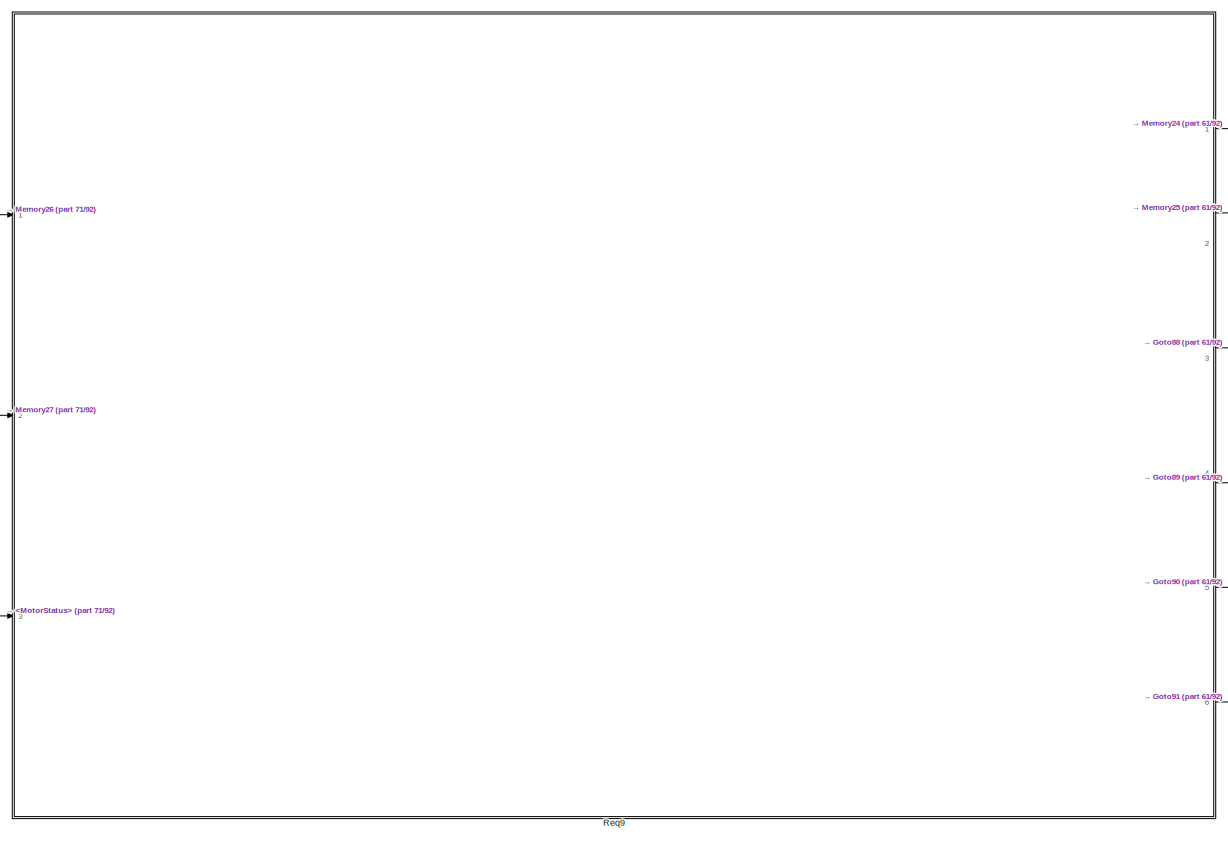
[diagram: root canvas - part 66/92, bottom center region]
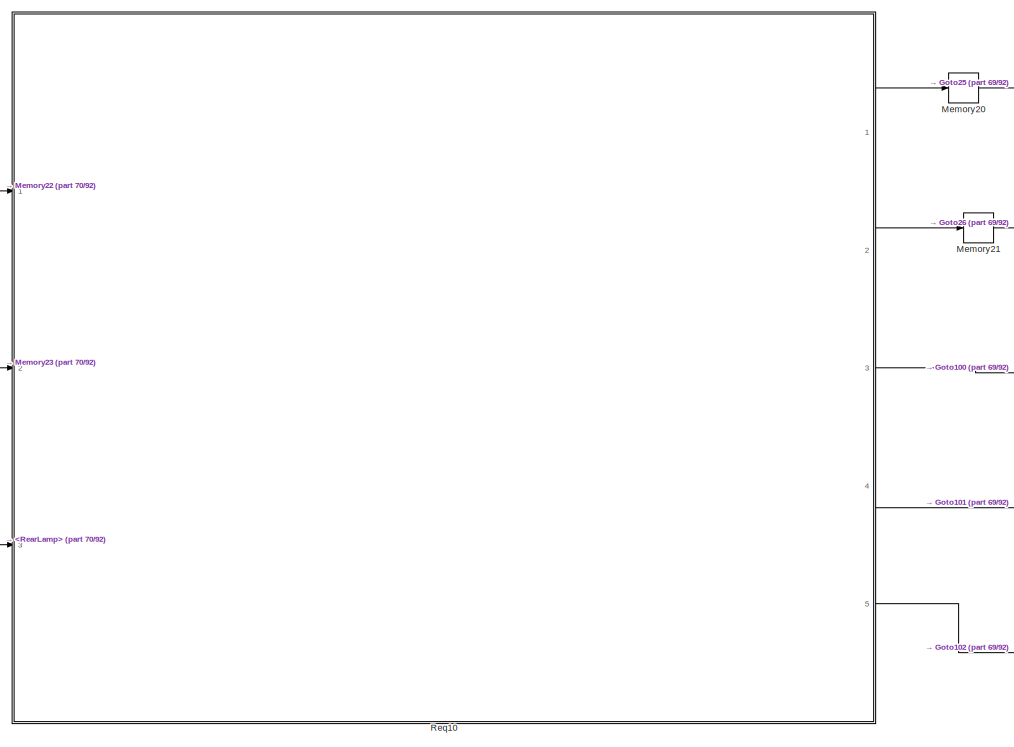
[diagram: root canvas - part 67/92, bottom right region]
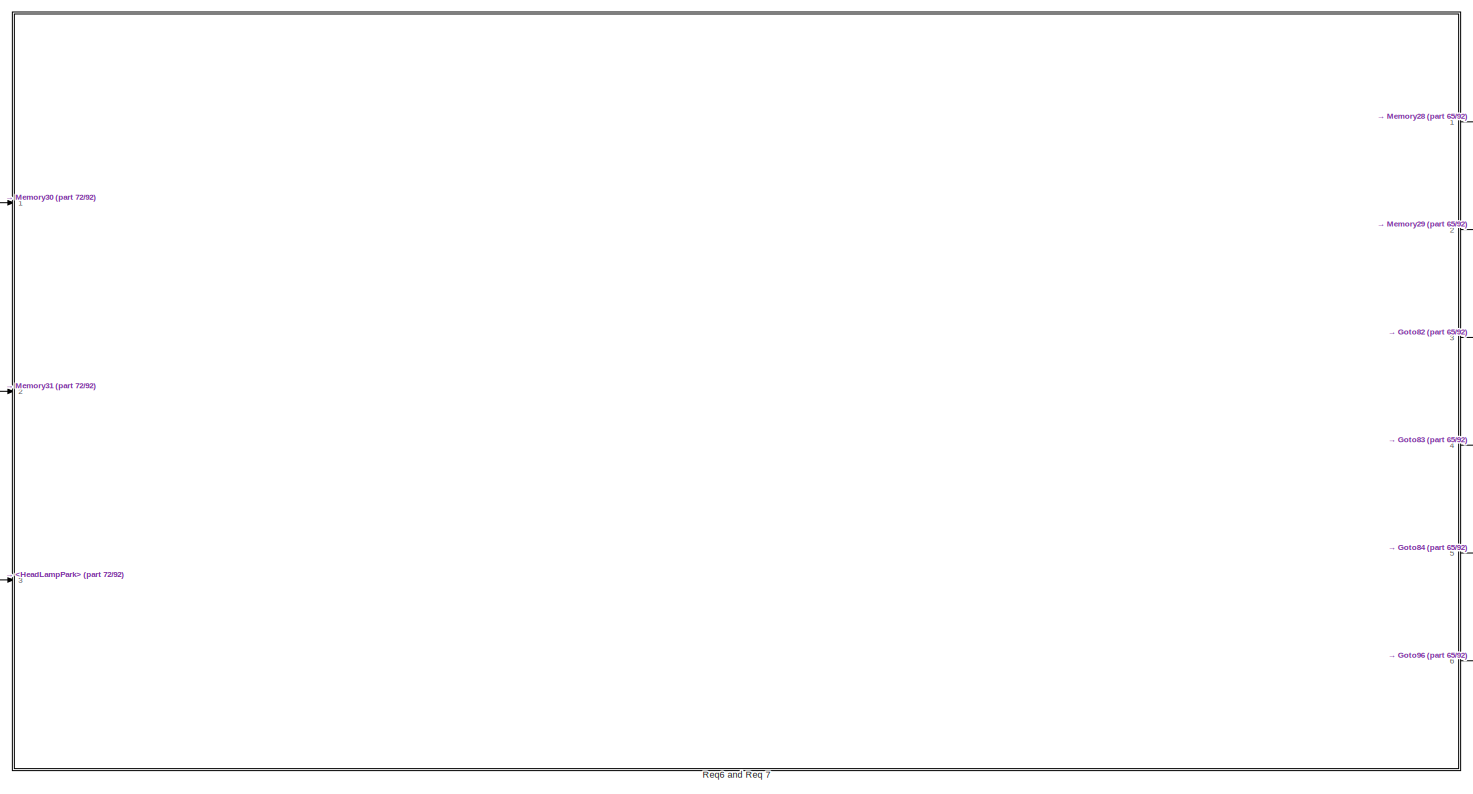
[diagram: root canvas - part 68/92, bottom left region]
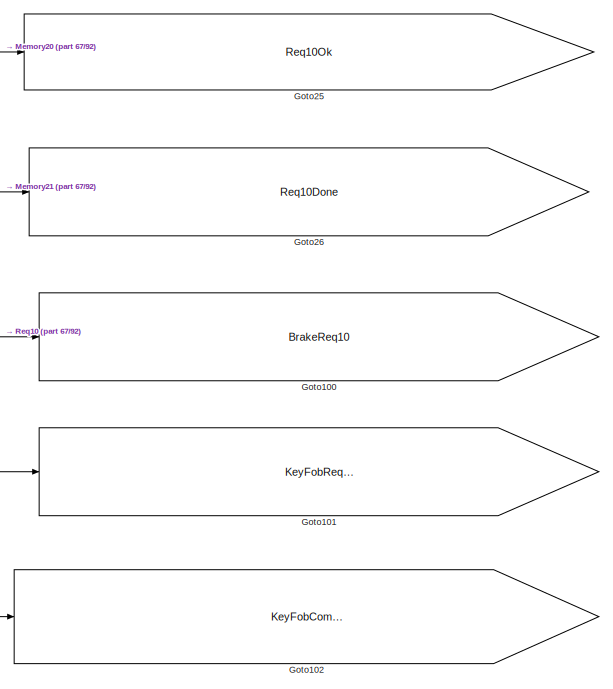
[diagram: root canvas - part 69/92, bottom right region]
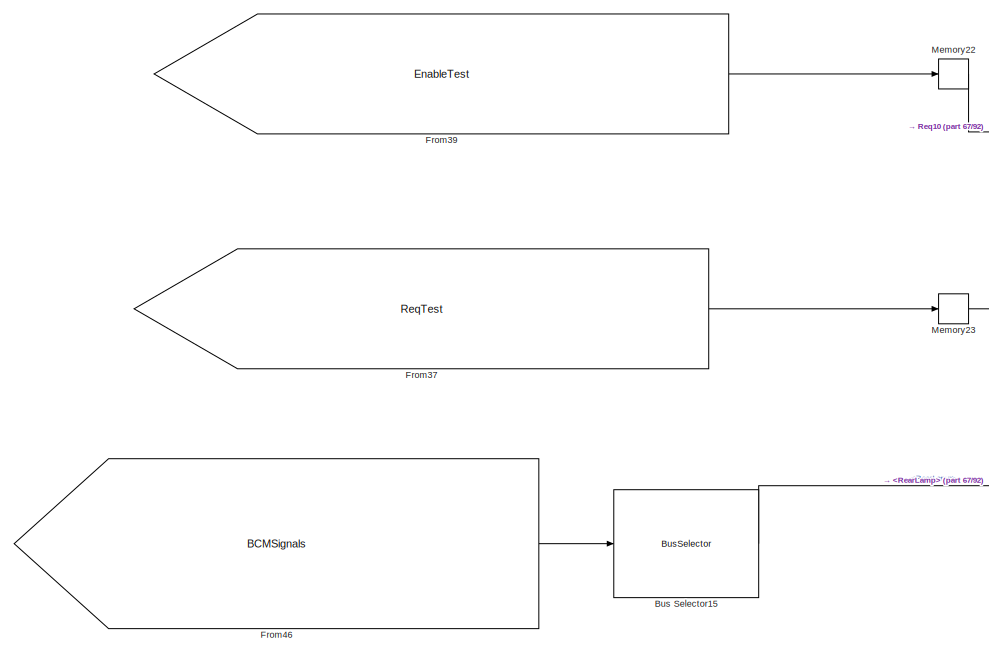
[diagram: root canvas - part 70/92, bottom center region]
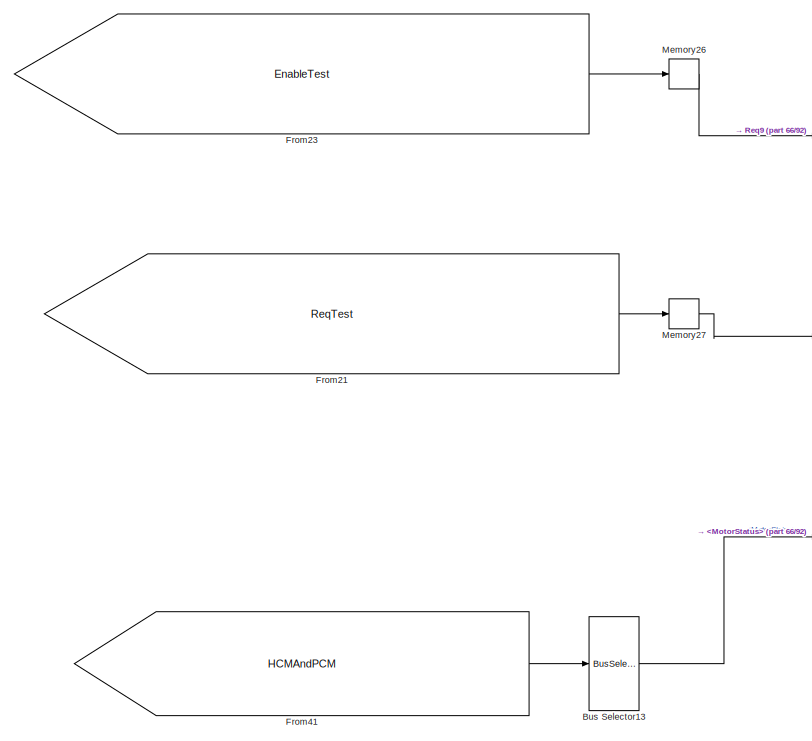
[diagram: root canvas - part 71/92, bottom center region]
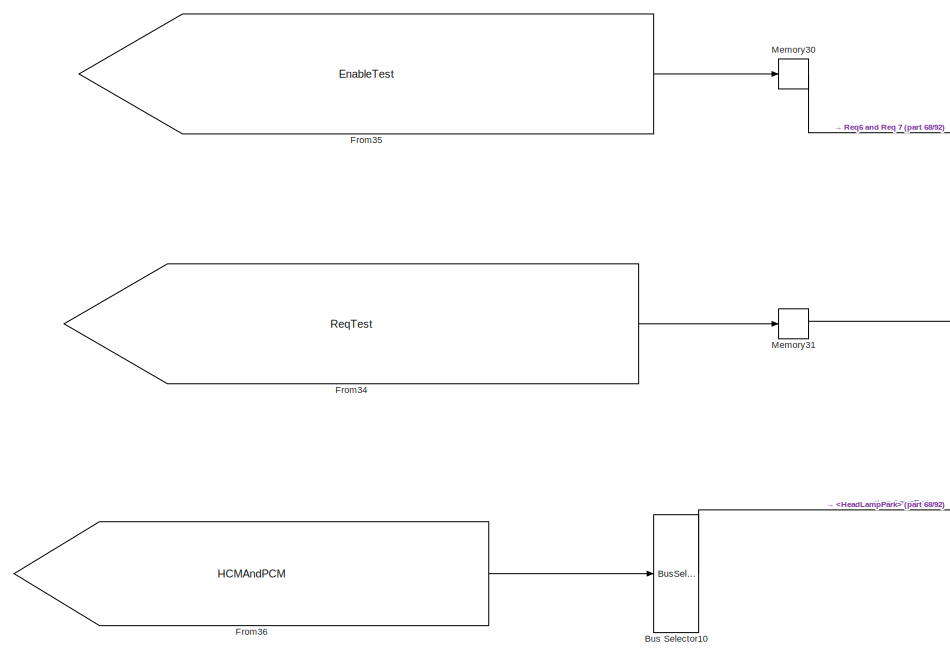
[diagram: root canvas - part 72/92, bottom left region]
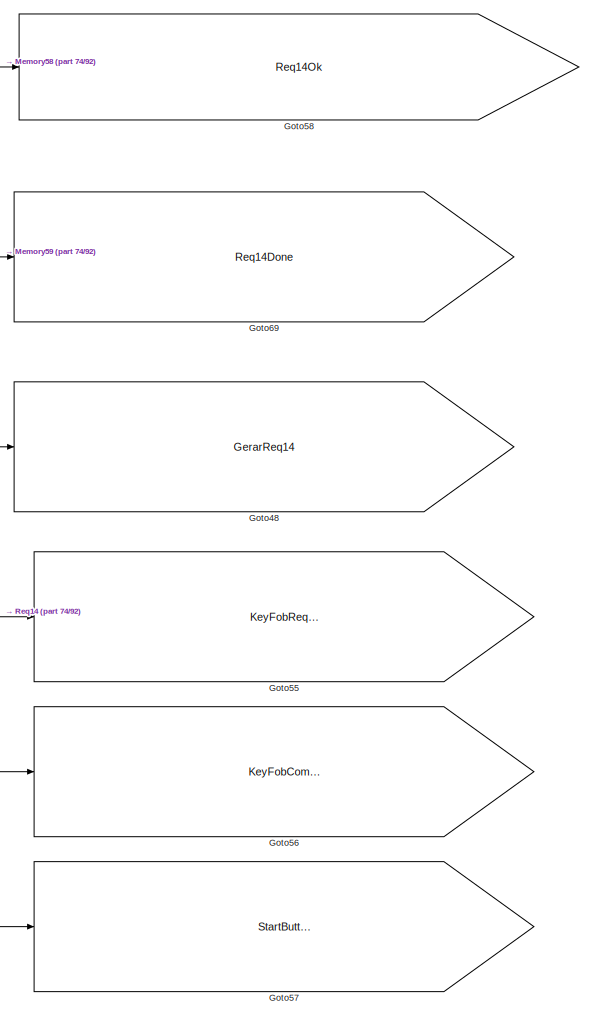
[diagram: root canvas - part 73/92, bottom right region]
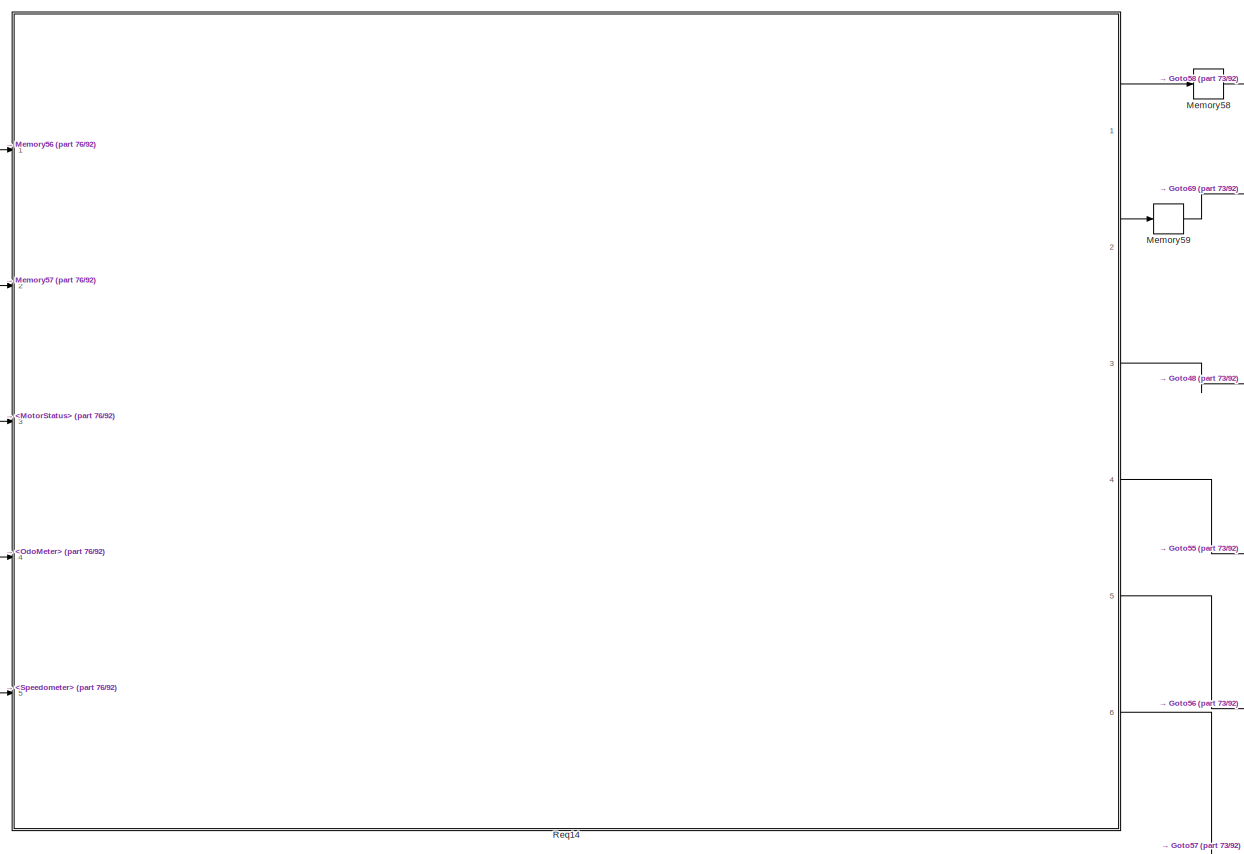
[diagram: root canvas - part 74/92, bottom right region]
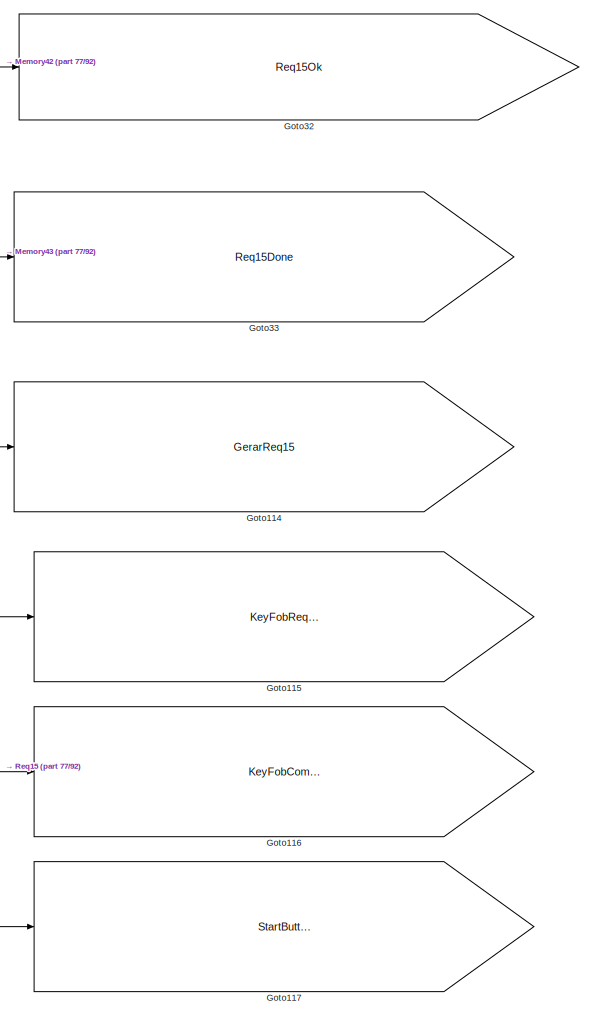
[diagram: root canvas - part 75/92, bottom right region]
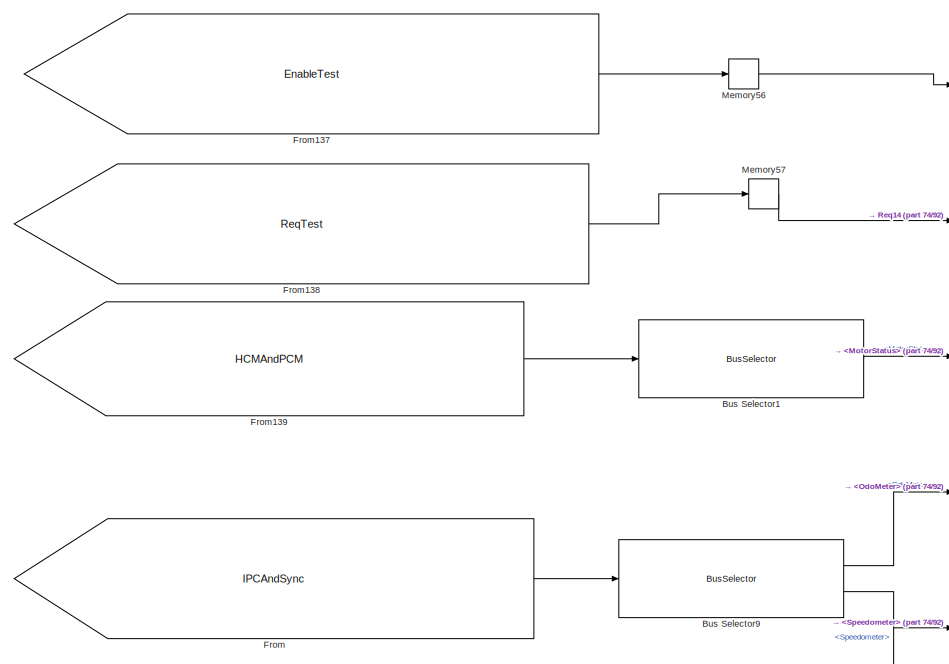
[diagram: root canvas - part 76/92, bottom center region]
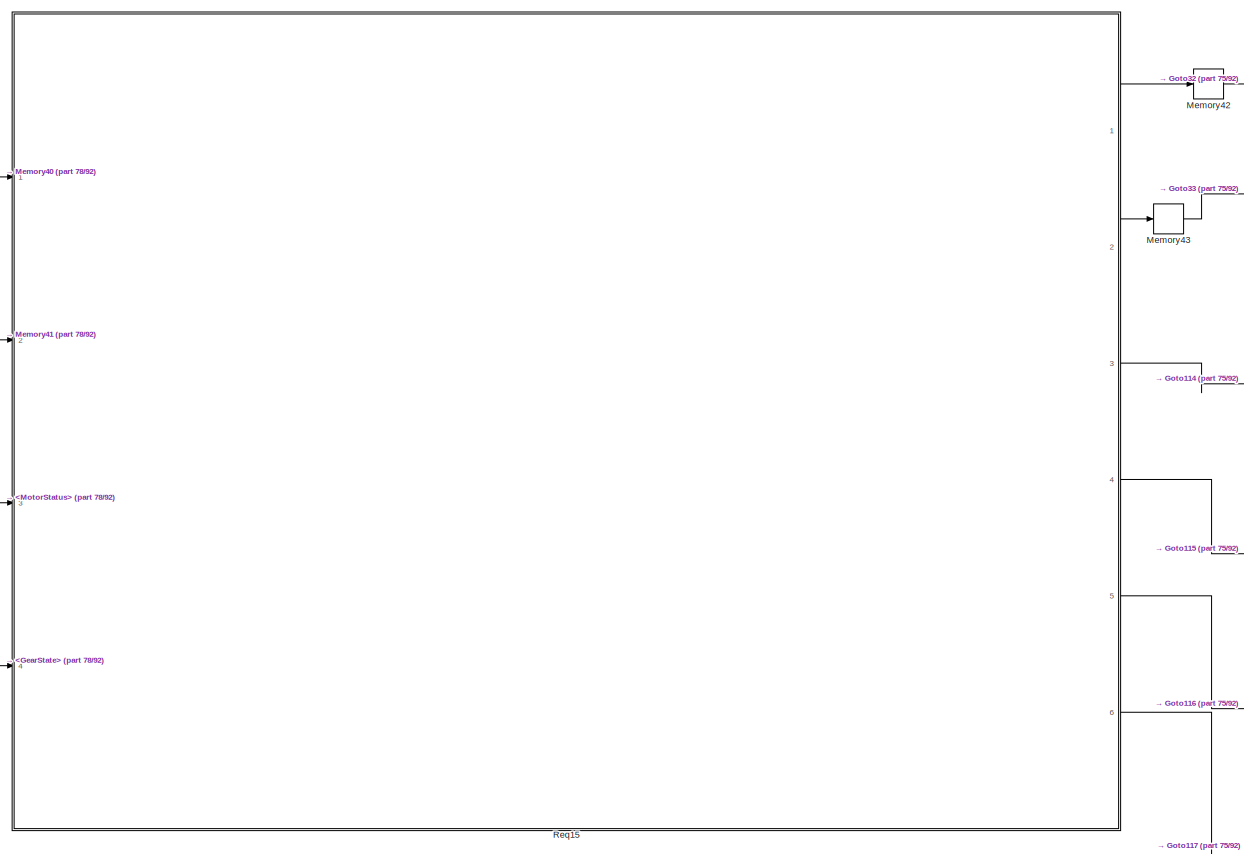
[diagram: root canvas - part 77/92, bottom right region]
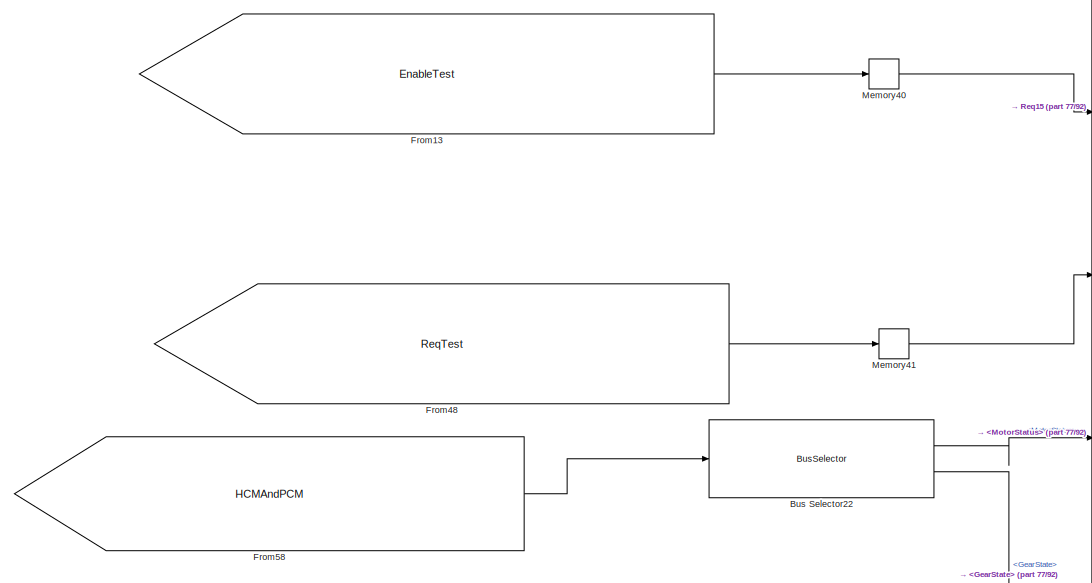
[diagram: root canvas - part 78/92, bottom right region]
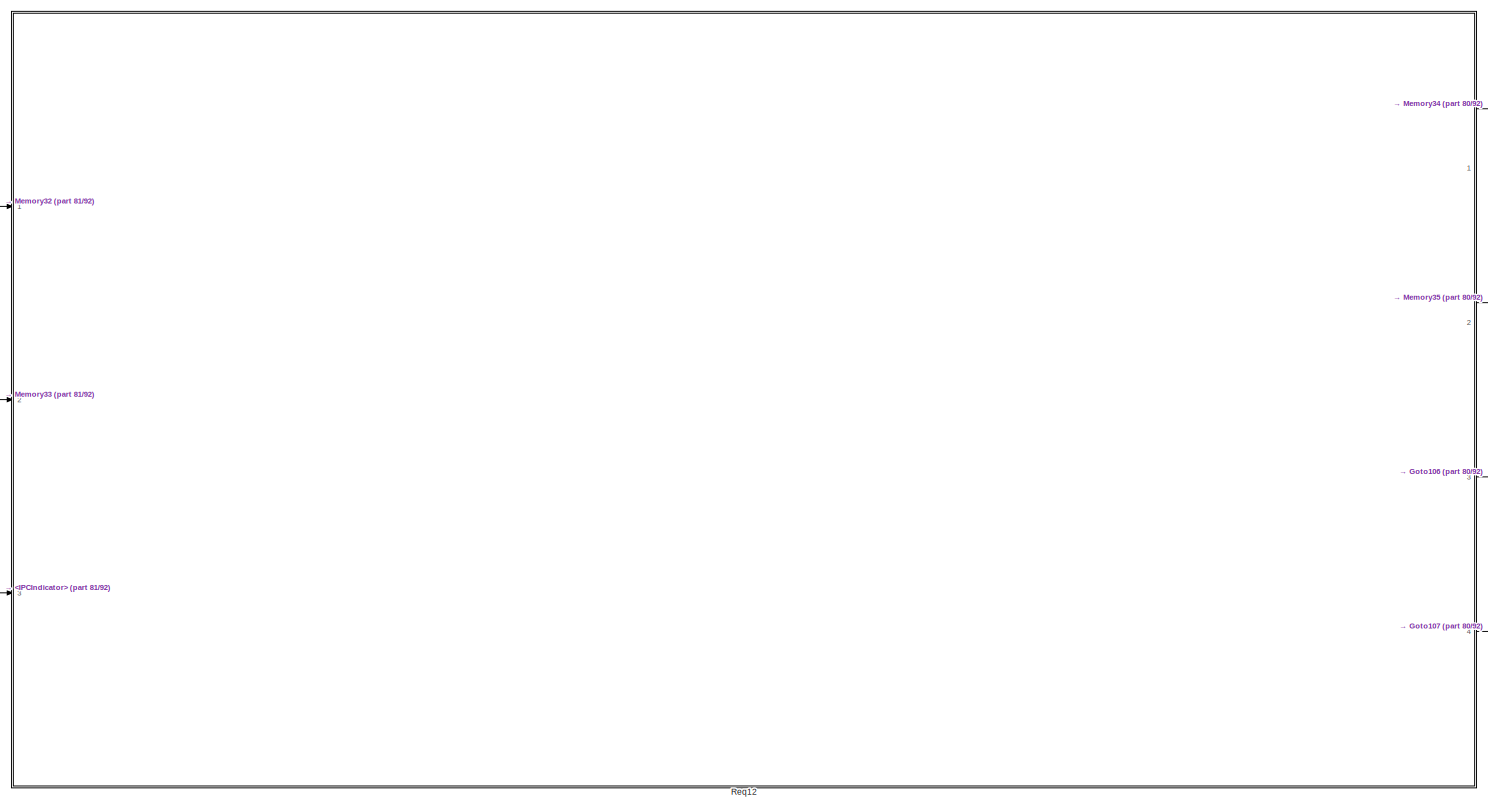
[diagram: root canvas - part 79/92, bottom left region]
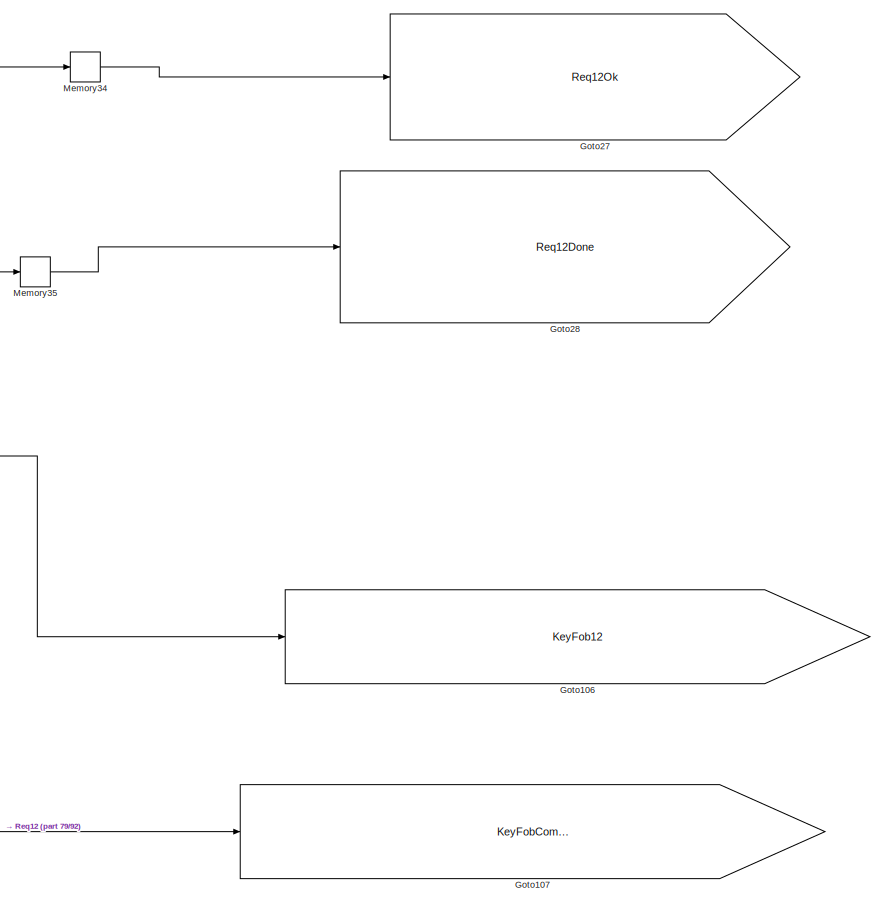
[diagram: root canvas - part 80/92, bottom left region]
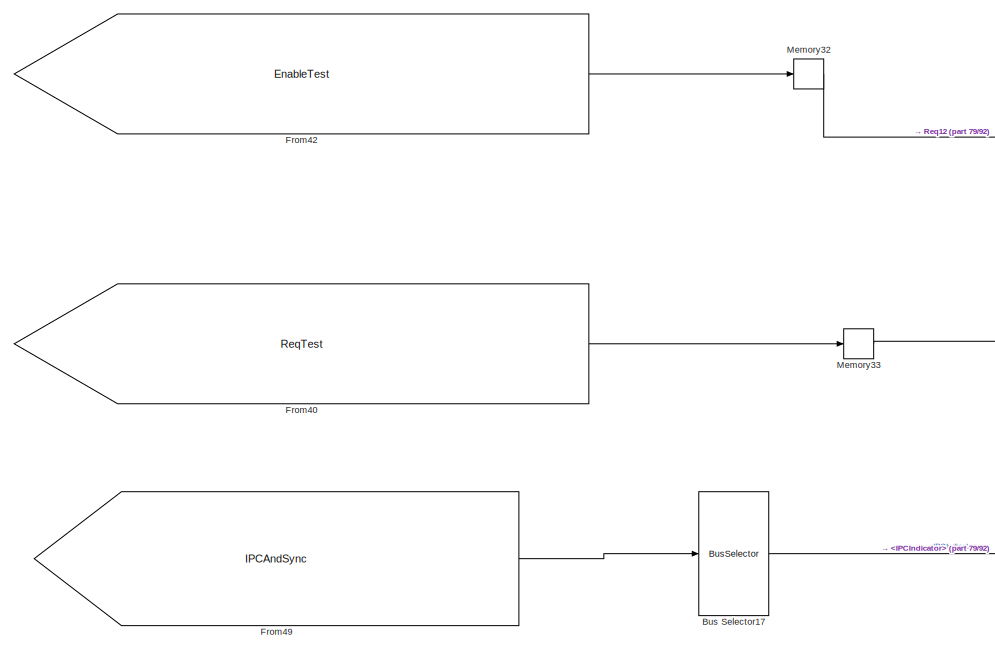
[diagram: root canvas - part 81/92, bottom left region]
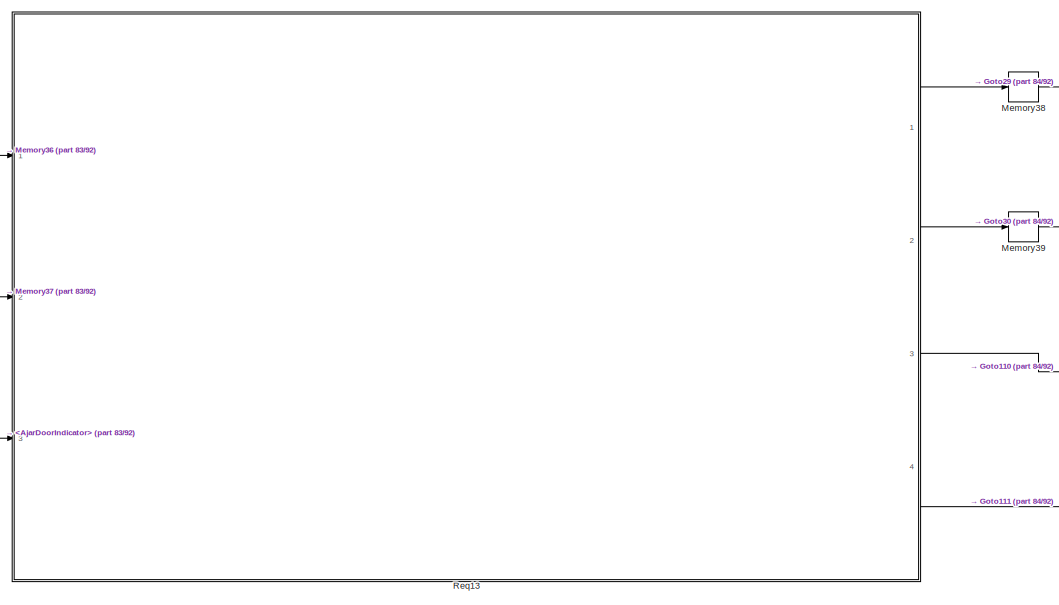
[diagram: root canvas - part 82/92, bottom center region]
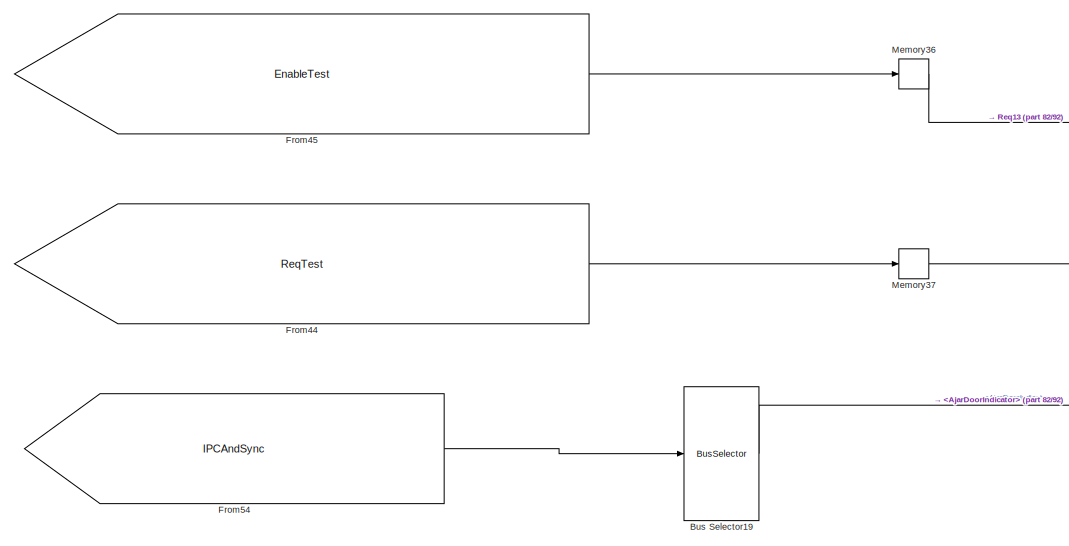
[diagram: root canvas - part 83/92, bottom center region]
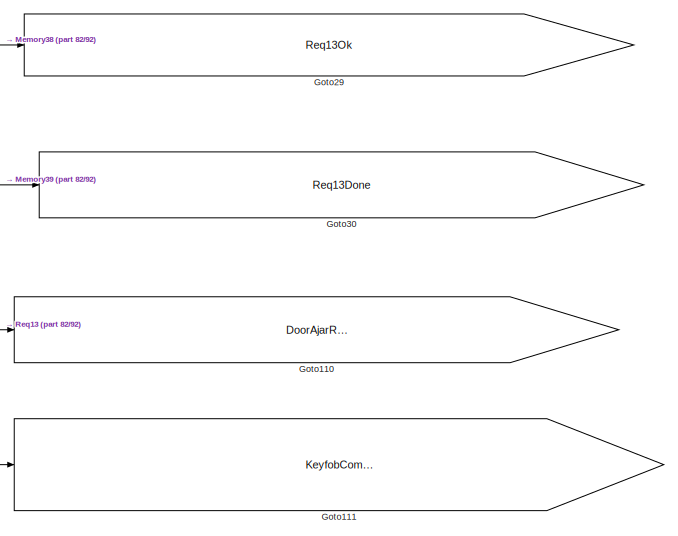
[diagram: root canvas - part 84/92, bottom center region]
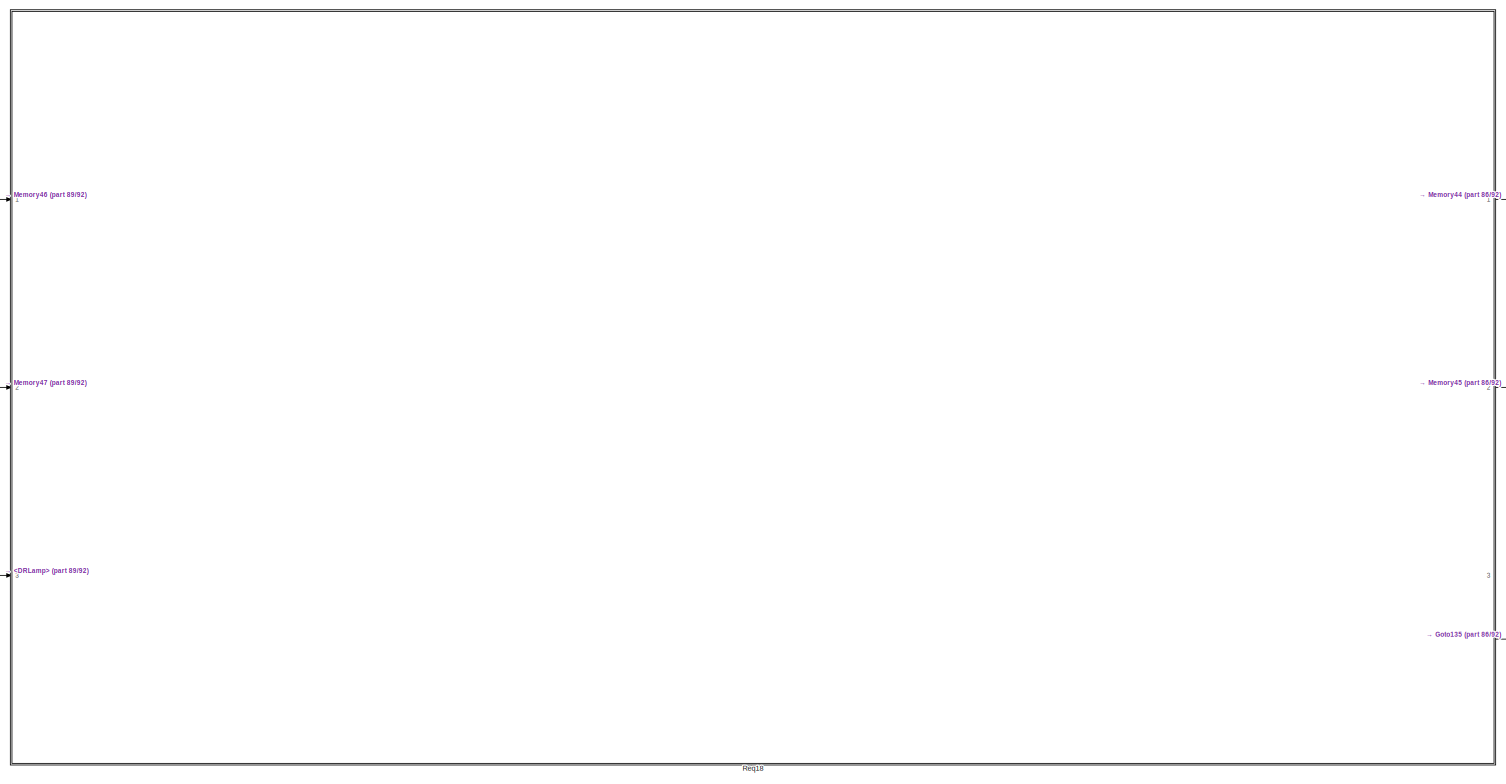
[diagram: root canvas - part 85/92, bottom center region]
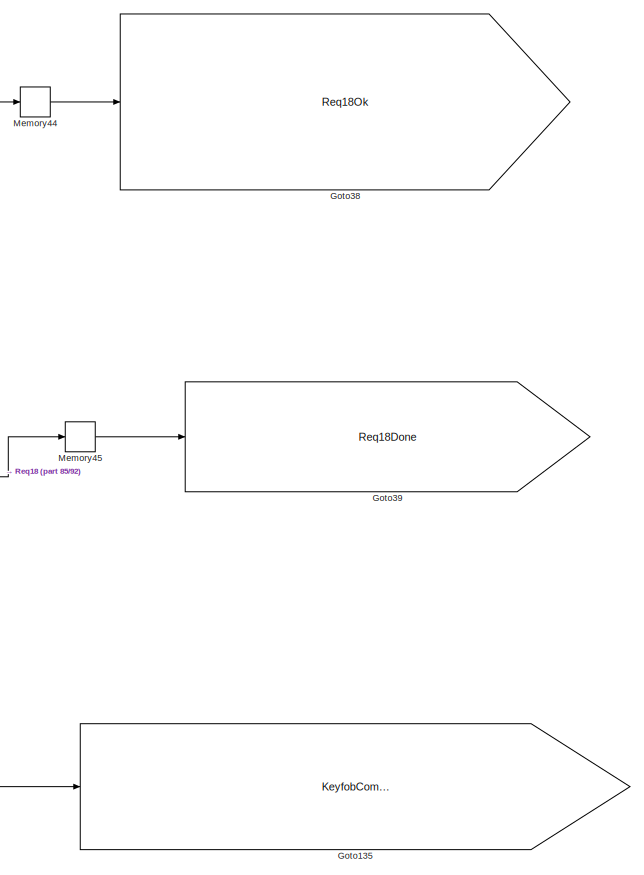
[diagram: root canvas - part 86/92, bottom right region]
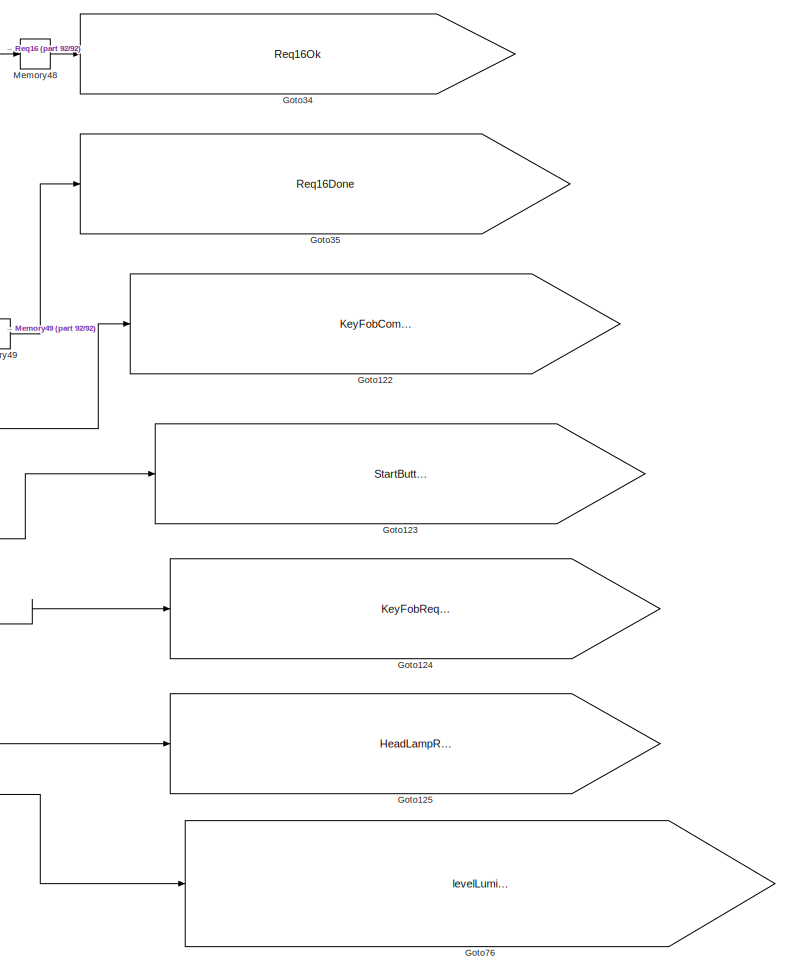
[diagram: root canvas - part 87/92, bottom left region]
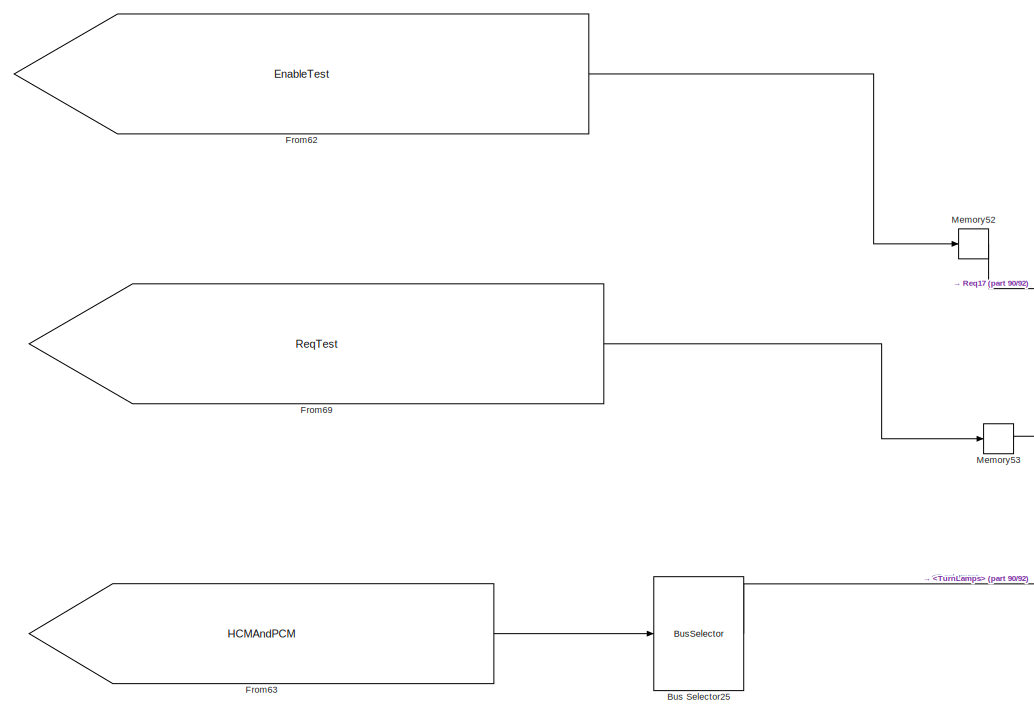
[diagram: root canvas - part 88/92, bottom center region]
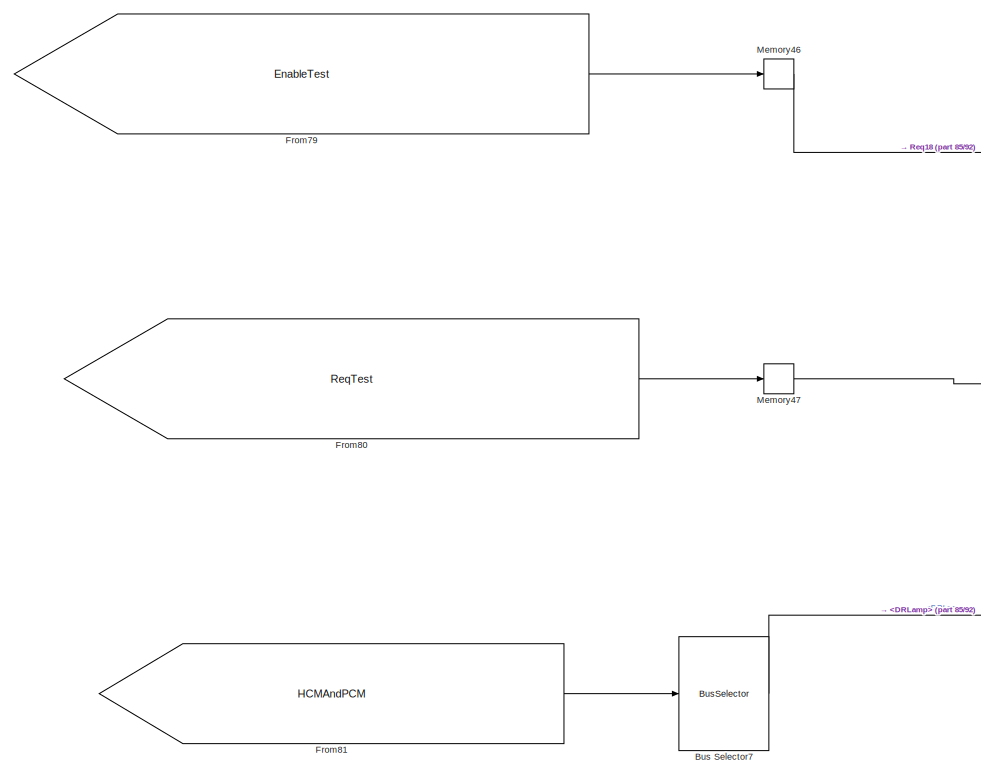
[diagram: root canvas - part 89/92, bottom center region]
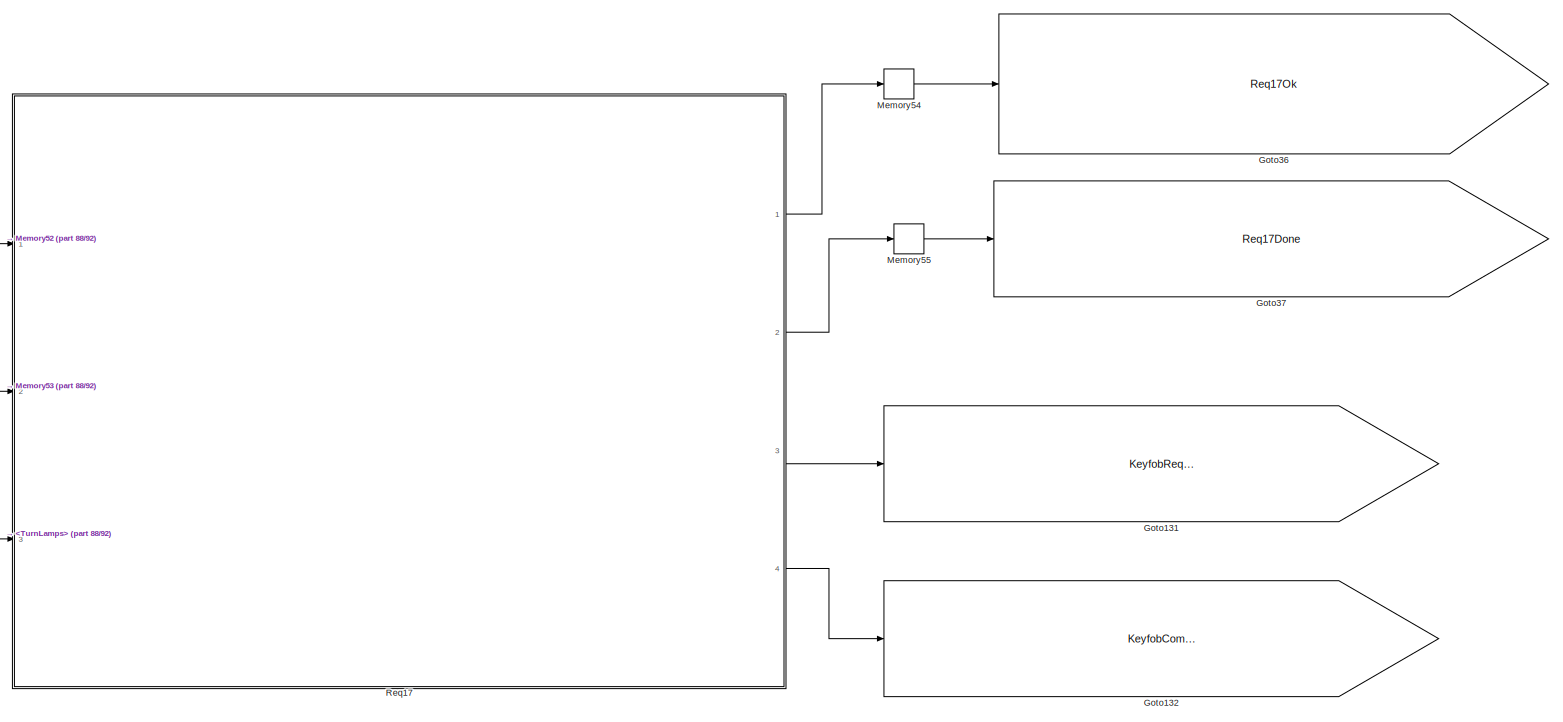
[diagram: root canvas - part 90/92, bottom center region]
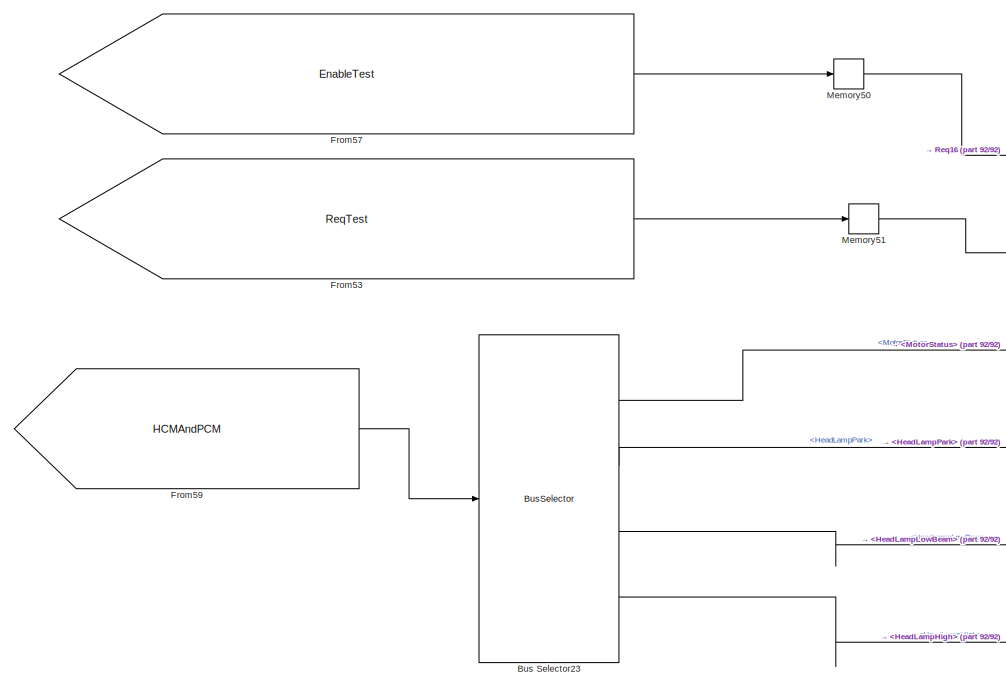
[diagram: root canvas - part 91/92, bottom left region]
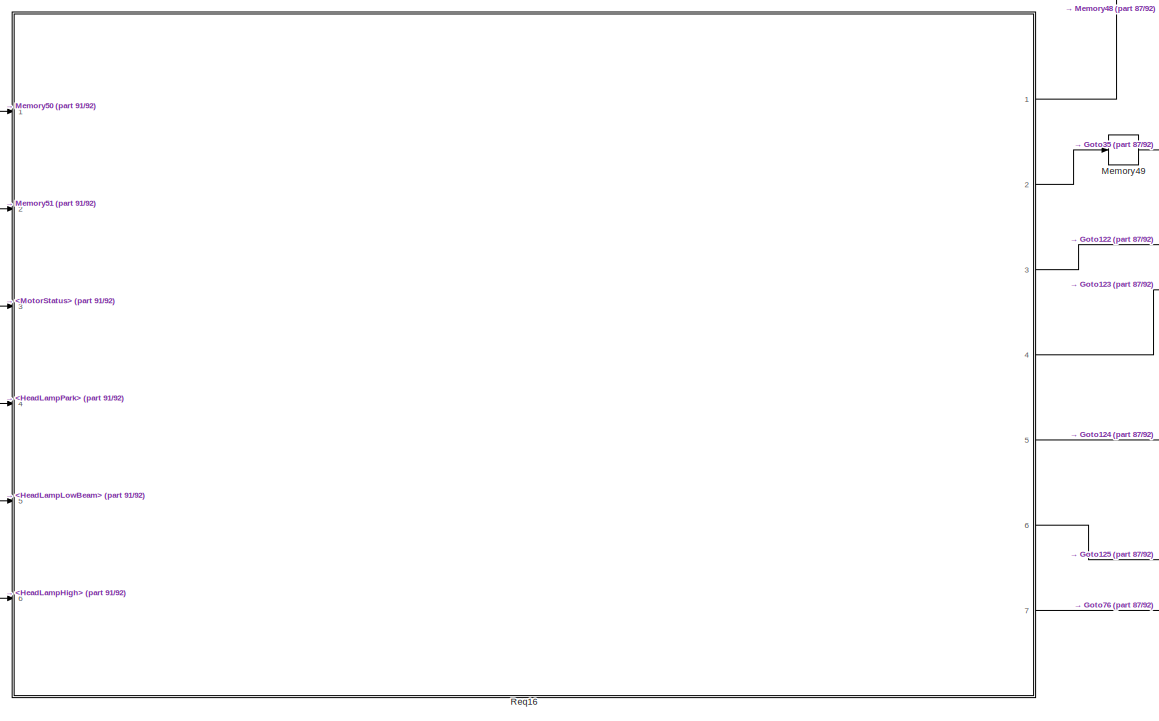
[diagram: root canvas - part 92/92, bottom left region]
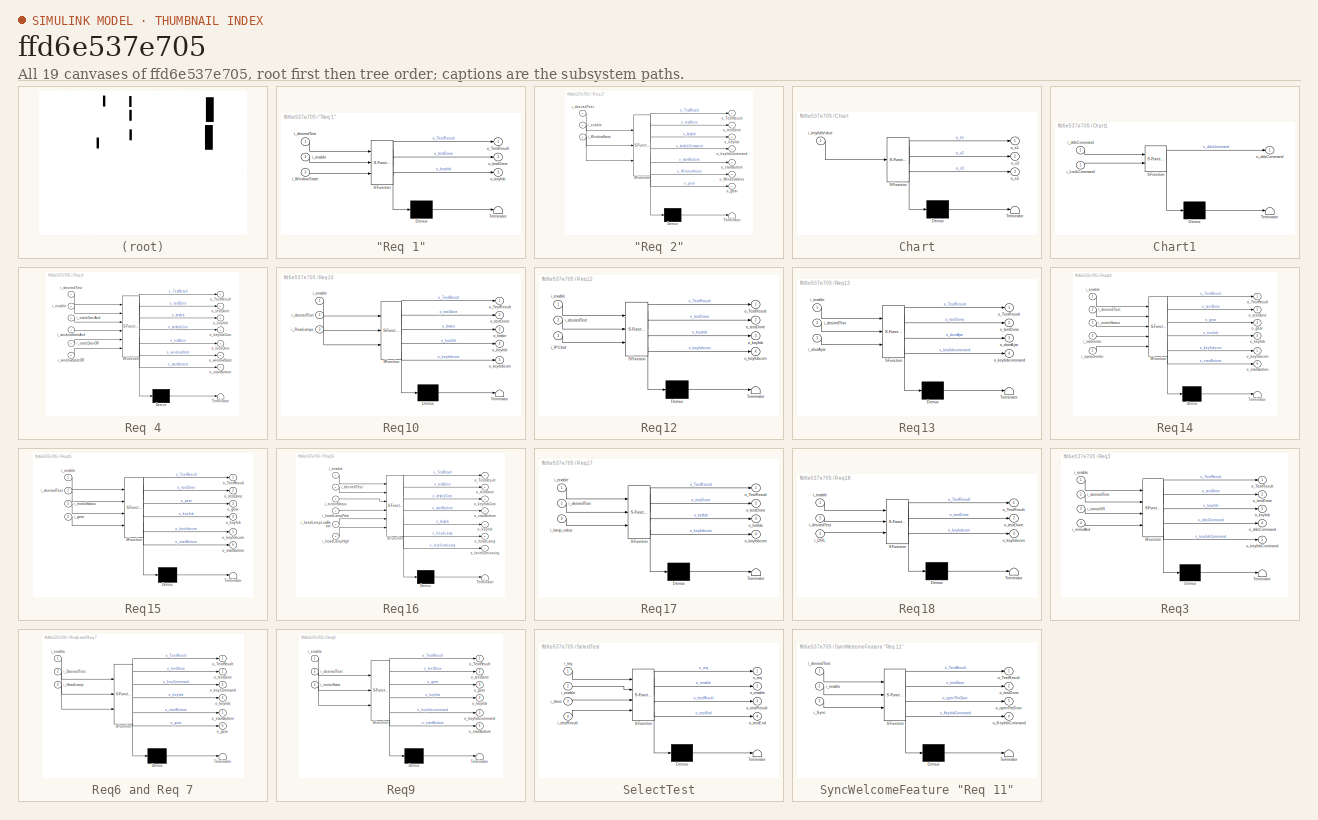
[diagram: thumbnail index - all 19 canvases of the model, root first then tree order]
MODEL slx_ffd6e537e705
KIND model
CONFIG AbsTol = auto
CONFIG EnableMultiTasking = off
CONFIG FixedStep = auto
CONFIG MaxStep = 100e-3
CONFIG MinStep = auto
CONFIG RelTol = 1e-3
CONFIG SampleTimeConstraint = Unconstrained
CONFIG Solver = VariableStepAuto
CONFIG SolverName = VariableStepAuto
CONFIG StartTime = 0.0
CONFIG StopTime = 10
BLOCK [SubSystem] "Req 1"
  ErrorFcn = Stateflow.Translate.translate
  PermitHierarchicalResolution = ExplicitOnly
  Ports = [3, 3]
  RequestExecContextInheritance = off
  SFBlockType = Chart
  TreatAsAtomicUnit = on
BLOCK [Demux] "Req 1"/ Demux 
  Outputs = 1
  Ports = [1, 1]
BLOCK [S-Function] "Req 1"/ SFunction 
  EnableBusSupport = on
  FunctionName = sf_sfun
  PortCounts = [3 4]
  Ports = [3, 4]
  SFcnIsStateOwnerBlock = off
  SFunctionDeploymentMode = off
  Tag = Stateflow S-Function simulation2017 6
BLOCK [Terminator] "Req 1"/ Terminator 
BLOCK [Inport] "Req 1"/i_WindowState
  IconDisplay = Port number
  Port = 3
BLOCK [Inport] "Req 1"/i_desiredTest
  IconDisplay = Port number
BLOCK [Inport] "Req 1"/i_enable
  IconDisplay = Port number
  Port = 2
BLOCK [Outport] "Req 1"/o_TestResult
  IconDisplay = Port number
BLOCK [Outport] "Req 1"/o_keyfob
  IconDisplay = Port number
  Port = 3
BLOCK [Outport] "Req 1"/o_testDone
  IconDisplay = Port number
  Port = 2
BLOCK [SubSystem] "Req 2"
  ErrorFcn = Stateflow.Translate.translate
  PermitHierarchicalResolution = ExplicitOnly
  Ports = [3, 7]
  RequestExecContextInheritance = off
  SFBlockType = Chart
  TreatAsAtomicUnit = on
BLOCK [Demux] "Req 2"/ Demux 
  Outputs = 1
  Ports = [1, 1]
BLOCK [S-Function] "Req 2"/ SFunction 
  EnableBusSupport = on
  FunctionName = sf_sfun
  PortCounts = [3 8]
  Ports = [3, 8]
  SFcnIsStateOwnerBlock = off
  SFunctionDeploymentMode = off
  Tag = Stateflow S-Function simulation2017 17
BLOCK [Terminator] "Req 2"/ Terminator 
BLOCK [Inport] "Req 2"/i_WindowState
  IconDisplay = Port number
  Port = 3
BLOCK [Inport] "Req 2"/i_desiredTest
  IconDisplay = Port number
BLOCK [Inport] "Req 2"/i_enable
  IconDisplay = Port number
  Port = 2
BLOCK [Outport] "Req 2"/o_TestResult
  IconDisplay = Port number
BLOCK [Outport] "Req 2"/o_WindowValue
  IconDisplay = Port number
  Port = 6
BLOCK [Outport] "Req 2"/o_gear
  IconDisplay = Port number
  Port = 7
BLOCK [Outport] "Req 2"/o_keyfob
  IconDisplay = Port number
  Port = 3
BLOCK [Outport] "Req 2"/o_keyfobCommand
  IconDisplay = Port number
  Port = 4
BLOCK [Outport] "Req 2"/o_startButtom
  IconDisplay = Port number
  Port = 5
BLOCK [Outport] "Req 2"/o_testDone
  IconDisplay = Port number
  Port = 2
BLOCK [Inport] AjarDoorIndicatorIn
  IconDisplay = Port number
  OutDataTypeStr = int8
  Port = 5
BLOCK [Outport] BrakeOut
  IconDisplay = Port number
  Port = 6
BLOCK [BusCreator] Bus Creator
  DisplayOption = bar
  InheritFromInputs = on
  Inputs = 10
  Ports = [10, 1]
BLOCK [BusCreator] Bus Creator1
  DisplayOption = bar
  InheritFromInputs = on
  Inputs = 2
  Ports = [2, 1]
BLOCK [BusCreator] Bus Creator2
  DisplayOption = bar
  InheritFromInputs = on
  Inputs = 5
  Ports = [5, 1]
BLOCK [BusCreator] Bus Creator3
  DisplayOption = bar
  InheritFromInputs = on
  Inputs = 7
  Ports = [7, 1]
BLOCK [BusCreator] Bus Creator4
  DisplayOption = bar
  InheritFromInputs = on
  Inputs = 3
  Ports = [3, 1]
BLOCK [BusSelector] Bus Selector
  Commented = on
  OutputAsBus = off
  OutputSignals = WindowsFrontLeft,WindowsFrontRight,WindowsBackLeft,WindowsBackRight,LockFrontLeft,LockFrontRight,LockBackLeft,LockBackRight,MirrorRight,MirrorLeft
  Ports = [1, 10]
BLOCK [BusSelector] Bus Selector1
  OutputAsBus = off
  OutputSignals = MotorStatus
  Ports = [1, 1]
BLOCK [BusSelector] Bus Selector10
  OutputAsBus = off
  OutputSignals = HeadLampPark
  Ports = [1, 1]
BLOCK [BusSelector] Bus Selector13
  OutputAsBus = off
  OutputSignals = MotorStatus
  Ports = [1, 1]
BLOCK [BusSelector] Bus Selector15
  OutputAsBus = off
  OutputSignals = RearLamp
  Ports = [1, 1]
BLOCK [BusSelector] Bus Selector17
  OutputAsBus = off
  OutputSignals = IPCIndicator
  Ports = [1, 1]
BLOCK [BusSelector] Bus Selector19
  OutputAsBus = off
  OutputSignals = AjarDoorIndicator
  Ports = [1, 1]
BLOCK [BusSelector] Bus Selector2
  OutputAsBus = off
  OutputSignals = SyncStatus
  Ports = [1, 1]
BLOCK [BusSelector] Bus Selector22
  OutputAsBus = off
  OutputSignals = MotorStatus,GearState
  Ports = [1, 2]
BLOCK [BusSelector] Bus Selector23
  OutputAsBus = off
  OutputSignals = MotorStatus,HeadLampPark,HeadLampLowBeam,HeadLampHigh
  Ports = [1, 4]
BLOCK [BusSelector] Bus Selector25
  OutputAsBus = off
  OutputSignals = TurnLamps
  Ports = [1, 1]
BLOCK [BusSelector] Bus Selector3
  OutputAsBus = off
  OutputSignals = WindowsFrontLeft,WindowsFrontRight
  Ports = [1, 2]
BLOCK [BusSelector] Bus Selector4
  OutputAsBus = off
  OutputSignals = WindowsFrontLeft,WindowsFrontRight
  Ports = [1, 2]
BLOCK [BusSelector] Bus Selector5
  OutputAsBus = off
  OutputSignals = WindowsFrontLeft,WindowsFrontRight
  Ports = [1, 2]
BLOCK [BusSelector] Bus Selector6
  OutputAsBus = off
  OutputSignals = LockFrontLeft,LockFrontRight
  Ports = [1, 2]
BLOCK [BusSelector] Bus Selector7
  OutputAsBus = off
  OutputSignals = DRLamp
  Ports = [1, 1]
BLOCK [BusSelector] Bus Selector8
  OutputAsBus = off
  OutputSignals = MirrorLeft,MirrorRight
  Ports = [1, 2]
BLOCK [BusSelector] Bus Selector9
  OutputAsBus = off
  OutputSignals = OdoMeter,Speedometer
  Ports = [1, 2]
BLOCK [SubSystem] Chart
  ErrorFcn = Stateflow.Translate.translate
  PermitHierarchicalResolution = ExplicitOnly
  Ports = [1, 3]
  RequestExecContextInheritance = off
  SFBlockType = Chart
  TreatAsAtomicUnit = on
BLOCK [Demux] Chart/ Demux 
  Outputs = 1
  Ports = [1, 1]
BLOCK [S-Function] Chart/ SFunction 
  EnableBusSupport = on
  FunctionName = sf_sfun
  PortCounts = [1 4]
  Ports = [1, 4]
  SFcnIsStateOwnerBlock = off
  SFunctionDeploymentMode = off
  Tag = Stateflow S-Function simulation2017 2
BLOCK [Terminator] Chart/ Terminator 
BLOCK [Inport] Chart/i_keyfobValue
  IconDisplay = Port number
BLOCK [Outport] Chart/o_s1
  IconDisplay = Port number
BLOCK [Outport] Chart/o_s2
  IconDisplay = Port number
  Port = 2
BLOCK [Outport] Chart/o_s3
  IconDisplay = Port number
  Port = 3
BLOCK [SubSystem] Chart1
  ErrorFcn = Stateflow.Translate.translate
  PermitHierarchicalResolution = ExplicitOnly
  Ports = [2, 1]
  RequestExecContextInheritance = off
  SFBlockType = Chart
  TreatAsAtomicUnit = on
BLOCK [Demux] Chart1/ Demux 
  Outputs = 1
  Ports = [1, 1]
BLOCK [S-Function] Chart1/ SFunction 
  EnableBusSupport = on
  FunctionName = sf_sfun
  PortCounts = [2 2]
  Ports = [2, 2]
  SFcnIsStateOwnerBlock = off
  SFunctionDeploymentMode = off
  Tag = Stateflow S-Function simulation2017 4
BLOCK [Terminator] Chart1/ Terminator 
BLOCK [Inport] Chart1/i_LockCommand
  IconDisplay = Port number
  Port = 2
BLOCK [Inport] Chart1/i_ddsCommand
  IconDisplay = Port number
BLOCK [Outport] Chart1/o_ddsCommand
  IconDisplay = Port number
BLOCK [Logic] CheckCurrentSIgnals
  AllPortsSameDT = off
  Commented = on
  Inputs = 10
  OutDataTypeStr = boolean
  Ports = [10, 1]
BLOCK [Constant] Constant2
  OutDataTypeStr = int8
  Value = 0
BLOCK [Constant] Constant3
  OutDataTypeStr = int8
  Value = 0
BLOCK [Constant] Constant4
  OutDataTypeStr = int8
  Value = 0
BLOCK [Constant] Constant5
  OutDataTypeStr = int8
  Value = 0
BLOCK [Constant] Constant6
  OutDataTypeStr = int8
  Value = 0
BLOCK [Constant] Constant7
  OutDataTypeStr = int8
  Value = 0
BLOCK [Constant] Constant8
  OutDataTypeStr = int8
  Value = 0
BLOCK [Outport] DDSCommandOut
  IconDisplay = Port number
  Port = 5
BLOCK [Inport] DRLampIn
  IconDisplay = Port number
  OutDataTypeStr = int8
  Port = 11
BLOCK [DataTypeConversion] Data Type Conversion
  RndMeth = Floor
  SaturateOnIntegerOverflow = off
BLOCK [DataTypeConversion] Data Type Conversion1
  OutDataTypeStr = int8
  RndMeth = Floor
  SaturateOnIntegerOverflow = off
BLOCK [DataTypeConversion] Data Type Conversion2
  OutDataTypeStr = int8
  RndMeth = Floor
  SaturateOnIntegerOverflow = off
BLOCK [Outport] DoorAjarOut
  IconDisplay = Port number
  OutDataTypeStr = int8
  Port = 9
BLOCK [Outport] DoorBackOut
  IconDisplay = Port number
  OutDataTypeStr = int8
  Port = 4
BLOCK [Outport] DoorFrontOut
  IconDisplay = Port number
  OutDataTypeStr = int8
  Port = 7
BLOCK [From] From
  GotoTag = IPCAndSync
BLOCK [FromWorkspace] From Workspace
  SampleTime = 0
  VariableName = TestNumber
  ZeroCross = on
BLOCK [FromWorkspace] From Workspace1
  SampleTime = 0
  VariableName = RunTest
  ZeroCross = on
BLOCK [From] From1
  GotoTag = Req1Ok
BLOCK [From] From10
  Commented = on
  GotoTag = IPCIndicator
BLOCK [From] From100
  GotoTag = GearReq6
BLOCK [From] From101
  GotoTag = GearReq9
BLOCK [From] From102
  GotoTag = GerarReq15
BLOCK [From] From103
  GotoTag = BrakeReq10
BLOCK [From] From104
  GotoTag = WindowValueReq2
BLOCK [From] From105
  GotoTag = TestNumber
BLOCK [From] From106
  GotoTag = WindowStateReq4
BLOCK [From] From107
  GotoTag = LockDoorReq4
BLOCK [From] From108
  GotoTag = HeadLampReq16
BLOCK [From] From109
  GotoTag = Req3Ok
BLOCK [From] From11
  GotoTag = DoorAjarOut
BLOCK [From] From110
  GotoTag = Req4Ok
BLOCK [From] From111
  GotoTag = Req6Ok
BLOCK [From] From112
  GotoTag = Req9Ok
BLOCK [From] From113
  GotoTag = Req10Ok
BLOCK [From] From114
  GotoTag = Req11Ok
BLOCK [From] From115
  GotoTag = Req12Ok
BLOCK [From] From116
  GotoTag = Req13Ok
BLOCK [From] From117
  GotoTag = Req15Ok
BLOCK [From] From118
  GotoTag = Req17Ok
BLOCK [From] From119
  GotoTag = Req16Ok
BLOCK [From] From12
  GotoTag = GearOut
BLOCK [From] From120
  GotoTag = Req18Ok
BLOCK [From] From121
  GotoTag = Req1Done
BLOCK [From] From122
  GotoTag = Req3Done
BLOCK [From] From123
  GotoTag = Req4Done
BLOCK [From] From124
  GotoTag = Req6Done
BLOCK [From] From125
  GotoTag = Req9Done
BLOCK [From] From126
  GotoTag = Req10Done
BLOCK [From] From127
  GotoTag = Req11Done
BLOCK [From] From128
  GotoTag = Req12Done
BLOCK [From] From129
  GotoTag = Req13Done
BLOCK [From] From13
  GotoTag = EnableTest
BLOCK [From] From130
  GotoTag = Req15Done
BLOCK [From] From131
  GotoTag = Req17Done
BLOCK [From] From132
  GotoTag = Req16Done
BLOCK [From] From133
  GotoTag = Req18Done
BLOCK [From] From134
  GotoTag = Req2Done
BLOCK [From] From135
  GotoTag = TestNumber
BLOCK [From] From136
  GotoTag = TestNumber
BLOCK [From] From137
  GotoTag = EnableTest
BLOCK [From] From138
  GotoTag = ReqTest
BLOCK [From] From139
  GotoTag = HCMAndPCM
BLOCK [From] From14
  GotoTag = TestNumber
BLOCK [From] From140
  GotoTag = KeyFobComReq14
BLOCK [From] From141
  GotoTag = KeyFobReq14
BLOCK [From] From142
  GotoTag = StartButtomReq14
BLOCK [From] From143
  GotoTag = GerarReq14
BLOCK [From] From144
  GotoTag = Req14Ok
BLOCK [From] From145
  GotoTag = Req14Done
BLOCK [From] From146
  GotoTag = KeyfobComReq18
BLOCK [From] From147
  GotoTag = KeyFobComReq11
BLOCK [From] From148
  GotoTag = KeyfobOutToModule
BLOCK [From] From149
  GotoTag = DDSCommandAux
BLOCK [From] From15
  GotoTag = IPCAndSync
BLOCK [From] From150
  GotoTag = levelLuminosityReq16
BLOCK [From] From16
  GotoTag = ReqTest
BLOCK [From] From17
  GotoTag = keyfobReq2
BLOCK [From] From18
  GotoTag = KefobFeat3
BLOCK [From] From19
  GotoTag = DDCMPDCMSignals
BLOCK [From] From2
  GotoTag = Req2Ok
BLOCK [From] From20
  GotoTag = ReqTest
BLOCK [From] From21
  GotoTag = ReqTest
BLOCK [From] From22
  GotoTag = KeyfobReq4
BLOCK [From] From23
  GotoTag = EnableTest
BLOCK [From] From24
  GotoTag = KeyfobReq6
BLOCK [From] From25
  GotoTag = EnableTest
BLOCK [From] From26
  GotoTag = keyfobCommandReq1
BLOCK [From] From27
  GotoTag = WindowLeftOut
BLOCK [From] From28
  GotoTag = DDCMPDCMSignals
BLOCK [From] From29
  GotoTag = DDCMPDCMSignals
BLOCK [From] From3
  GotoTag = KeyfobOut
BLOCK [From] From30
  GotoTag = KeyfobReq9
BLOCK [From] From31
  GotoTag = ReqTest
BLOCK [From] From32
  GotoTag = EnableTest
BLOCK [From] From33
  GotoTag = WindowRightOut
BLOCK [From] From34
  GotoTag = ReqTest
BLOCK [From] From35
  GotoTag = EnableTest
BLOCK [From] From36
  GotoTag = HCMAndPCM
BLOCK [From] From37
  GotoTag = ReqTest
BLOCK [From] From38
  GotoTag = KeyFobReq10
BLOCK [From] From39
  GotoTag = EnableTest
BLOCK [From] From4
  GotoTag = KeyfobCommandsOut
BLOCK [From] From40
  GotoTag = ReqTest
BLOCK [From] From41
  GotoTag = HCMAndPCM
BLOCK [From] From42
  GotoTag = EnableTest
BLOCK [From] From43
  GotoTag = KeyFob12
BLOCK [From] From44
  GotoTag = ReqTest
BLOCK [From] From45
  GotoTag = EnableTest
BLOCK [From] From46
  GotoTag = BCMSignals
BLOCK [From] From47
  GotoTag = KeyFobReq15
BLOCK [From] From48
  GotoTag = ReqTest
BLOCK [From] From49
  GotoTag = IPCAndSync
BLOCK [From] From5
  GotoTag = StartButtomOut
BLOCK [From] From50
  GotoTag = DDCMPDCMSignals
BLOCK [From] From51
  GotoTag = ReqTest
BLOCK [From] From52
  GotoTag = KeyFobReq16
BLOCK [From] From53
  GotoTag = ReqTest
BLOCK [From] From54
  GotoTag = IPCAndSync
BLOCK [From] From55
  GotoTag = KeyfobReq17
BLOCK [From] From56
  GotoTag = StartButtomReq9
BLOCK [From] From57
  GotoTag = EnableTest
BLOCK [From] From58
  GotoTag = HCMAndPCM
BLOCK [From] From59
  GotoTag = HCMAndPCM
BLOCK [From] From6
  GotoTag = DoorBackOut
BLOCK [From] From60
  GotoTag = startButtomReq6
BLOCK [From] From61
  GotoTag = EnableTest
BLOCK [From] From62
  GotoTag = EnableTest
BLOCK [From] From63
  GotoTag = HCMAndPCM
BLOCK [From] From64
  GotoTag = LockRightOut
BLOCK [From] From65
  GotoTag = LockLeftOut
BLOCK [From] From66
  GotoTag = TestNumber
BLOCK [From] From67
  GotoTag = RunTest
BLOCK [From] From68
  GotoTag = StartButtomReq2
BLOCK [From] From69
  GotoTag = ReqTest
BLOCK [From] From7
  GotoTag = DDSCommandOut
BLOCK [From] From70
  GotoTag = TestNumber
BLOCK [From] From71
  GotoTag = TestFinish
BLOCK [From] From72
  GotoTag = ResultTest
BLOCK [From] From73
  GotoTag = EnableTest
BLOCK [From] From74
  GotoTag = OpenTheDoorReq11
BLOCK [From] From75
  GotoTag = ReqTest
BLOCK [From] From76
  GotoTag = EnableTest
BLOCK [From] From77
  GotoTag = DDCMPDCMSignals
BLOCK [From] From78
  GotoTag = HeadLampOut
BLOCK [From] From79
  GotoTag = EnableTest
BLOCK [From] From8
  GotoTag = BreakOut
BLOCK [From] From80
  GotoTag = ReqTest
BLOCK [From] From81
  GotoTag = HCMAndPCM
BLOCK [From] From82
  GotoTag = StartButtomReq15
BLOCK [From] From83
  GotoTag = StartButtomRq16
BLOCK [From] From84
  GotoTag = ddsCommandFeat3
BLOCK [From] From85
  GotoTag = DoorAjarReq13
BLOCK [From] From86
  GotoTag = keyfobCommandReq2
BLOCK [From] From87
  GotoTag = KeyFobCommandFeat3
BLOCK [From] From88
  GotoTag = KeyfobCommReq4
BLOCK [From] From89
  GotoTag = KeyCommandReq6
BLOCK [From] From9
  GotoTag = DoorFrontOut
BLOCK [From] From90
  GotoTag = KeyfobCommReq9
BLOCK [From] From91
  GotoTag = KeyFobComReq10
BLOCK [From] From92
  GotoTag = KeyFobComReq12
BLOCK [From] From93
  GotoTag = KeyfobCommandReq13
BLOCK [From] From94
  GotoTag = KeyFobComReq15
BLOCK [From] From95
  GotoTag = KeyFobComReq16
BLOCK [From] From96
  GotoTag = KeyfobComReq17
BLOCK [From] From97
  GotoTag = TestNumber
BLOCK [From] From98
  GotoTag = TestNumber
BLOCK [From] From99
  GotoTag = gearReq2
BLOCK [Outport] GearOut
  IconDisplay = Port number
  Port = 10
BLOCK [Inport] GearStateIn
  IconDisplay = Port number
  OutDataTypeStr = int8
  Port = 8
BLOCK [Goto] Goto1
  Commented = on
  GotoTag = DDCMPDCMSignalsAnd
BLOCK [Goto] Goto10
  GotoTag = OpenTheDoorReq11
BLOCK [Goto] Goto100
  GotoTag = BrakeReq10
BLOCK [Goto] Goto101
  GotoTag = KeyFobReq10
BLOCK [Goto] Goto102
  GotoTag = KeyFobComReq10
BLOCK [Goto] Goto106
  GotoTag = KeyFob12
BLOCK [Goto] Goto107
  GotoTag = KeyFobComReq12
BLOCK [Goto] Goto11
  GotoTag = KeyfobOut
BLOCK [Goto] Goto110
  GotoTag = DoorAjarReq13
BLOCK [Goto] Goto111
  GotoTag = KeyfobCommandReq13
BLOCK [Goto] Goto114
  GotoTag = GerarReq15
BLOCK [Goto] Goto115
  GotoTag = KeyFobReq15
BLOCK [Goto] Goto116
  GotoTag = KeyFobComReq15
BLOCK [Goto] Goto117
  GotoTag = StartButtomReq15
BLOCK [Goto] Goto12
  GotoTag = TestFinish
BLOCK [Goto] Goto122
  GotoTag = KeyFobComReq16
BLOCK [Goto] Goto123
  GotoTag = StartButtomRq16
BLOCK [Goto] Goto124
  GotoTag = KeyFobReq16
BLOCK [Goto] Goto125
  GotoTag = HeadLampReq16
BLOCK [Goto] Goto13
  GotoTag = TestNumber
BLOCK [Goto] Goto130
  GotoTag = HeadLampOut
BLOCK [Goto] Goto131
  GotoTag = KeyfobReq17
BLOCK [Goto] Goto132
  GotoTag = KeyfobComReq17
BLOCK [Goto] Goto135
  GotoTag = KeyfobComReq18
BLOCK [Goto] Goto14
  GotoTag = Req11Ok
BLOCK [Goto] Goto15
  GotoTag = Req11Done
BLOCK [Goto] Goto16
  GotoTag = keyfobCommandReq1
BLOCK [Goto] Goto17
  GotoTag = EnableTest
BLOCK [Goto] Goto18
  GotoTag = Req1Ok
BLOCK [Goto] Goto19
  GotoTag = WindowStateReq4
BLOCK [Goto] Goto2
  GotoTag = DDCMPDCMSignals
BLOCK [Goto] Goto20
  GotoTag = Req4Ok
BLOCK [Goto] Goto21
  GotoTag = Req6Ok
BLOCK [Goto] Goto22
  GotoTag = Req6Done
BLOCK [Goto] Goto23
  GotoTag = Req9Ok
BLOCK [Goto] Goto24
  GotoTag = Req9Done
BLOCK [Goto] Goto25
  GotoTag = Req10Ok
BLOCK [Goto] Goto26
  GotoTag = Req10Done
BLOCK [Goto] Goto27
  GotoTag = Req12Ok
BLOCK [Goto] Goto28
  GotoTag = Req12Done
BLOCK [Goto] Goto29
  GotoTag = Req13Ok
BLOCK [Goto] Goto3
  GotoTag = BCMSignals
BLOCK [Goto] Goto30
  GotoTag = Req13Done
BLOCK [Goto] Goto31
  GotoTag = Req1Done
BLOCK [Goto] Goto32
  GotoTag = Req15Ok
BLOCK [Goto] Goto33
  GotoTag = Req15Done
BLOCK [Goto] Goto34
  GotoTag = Req16Ok
BLOCK [Goto] Goto35
  GotoTag = Req16Done
BLOCK [Goto] Goto36
  GotoTag = Req17Ok
BLOCK [Goto] Goto37
  GotoTag = Req17Done
BLOCK [Goto] Goto38
  GotoTag = Req18Ok
BLOCK [Goto] Goto39
  GotoTag = Req18Done
BLOCK [Goto] Goto4
  GotoTag = IPCAndSync
BLOCK [Goto] Goto40
  GotoTag = keyfobReq2
BLOCK [Goto] Goto41
  GotoTag = Req2Ok
BLOCK [Goto] Goto42
  GotoTag = KeyfobCommandsOut
BLOCK [Goto] Goto43
  GotoTag = StartButtomOut
BLOCK [Goto] Goto44
  GotoTag = DoorBackOut
BLOCK [Goto] Goto45
  GotoTag = DDSCommandOut
BLOCK [Goto] Goto46
  GotoTag = BreakOut
BLOCK [Goto] Goto47
  GotoTag = DoorFrontOut
BLOCK [Goto] Goto48
  GotoTag = GerarReq14
BLOCK [Goto] Goto49
  GotoTag = DoorAjarOut
BLOCK [Goto] Goto5
  GotoTag = HCMAndPCM
BLOCK [Goto] Goto50
  GotoTag = GearOut
BLOCK [Goto] Goto51
  GotoTag = Req2Done
BLOCK [Goto] Goto52
  GotoTag = keyfobCommandReq2
BLOCK [Goto] Goto53
  GotoTag = StartButtomReq2
BLOCK [Goto] Goto54
  GotoTag = WindowValueReq2
BLOCK [Goto] Goto55
  GotoTag = KeyFobReq14
BLOCK [Goto] Goto56
  GotoTag = KeyFobComReq14
BLOCK [Goto] Goto57
  GotoTag = StartButtomReq14
BLOCK [Goto] Goto58
  GotoTag = Req14Ok
BLOCK [Goto] Goto59
  GotoTag = WindowLeftOut
BLOCK [Goto] Goto6
  GotoTag = ResultTest
BLOCK [Goto] Goto60
  GotoTag = WindowRightOut
BLOCK [Goto] Goto61
  GotoTag = Req4Done
BLOCK [Goto] Goto62
  GotoTag = LockLeftOut
BLOCK [Goto] Goto63
  GotoTag = LockRightOut
BLOCK [Goto] Goto64
  GotoTag = Req3Ok
BLOCK [Goto] Goto65
  GotoTag = Req3Done
BLOCK [Goto] Goto66
  GotoTag = KefobFeat3
BLOCK [Goto] Goto67
  GotoTag = ddsCommandFeat3
BLOCK [Goto] Goto68
  GotoTag = KeyFobCommandFeat3
BLOCK [Goto] Goto69
  GotoTag = Req14Done
BLOCK [Goto] Goto7
  GotoTag = RunTest
BLOCK [Goto] Goto70
  GotoTag = KeyFobComReq11
BLOCK [Goto] Goto71
  GotoTag = KeyfobOutToModule
BLOCK [Goto] Goto72
  GotoTag = KeyfobReq4
BLOCK [Goto] Goto73
  GotoTag = KeyfobCommReq4
BLOCK [Goto] Goto74
  GotoTag = LockDoorReq4
BLOCK [Goto] Goto75
  GotoTag = DDSCommandAux
BLOCK [Goto] Goto76
  GotoTag = levelLuminosityReq16
BLOCK [Goto] Goto8
  Commented = on
  GotoTag = TestResult
BLOCK [Goto] Goto82
  GotoTag = KeyCommandReq6
BLOCK [Goto] Goto83
  GotoTag = KeyfobReq6
BLOCK [Goto] Goto84
  GotoTag = startButtomReq6
BLOCK [Goto] Goto88
  GotoTag = GearReq9
BLOCK [Goto] Goto89
  GotoTag = KeyfobReq9
BLOCK [Goto] Goto9
  GotoTag = ReqTest
BLOCK [Goto] Goto90
  GotoTag = KeyfobCommReq9
BLOCK [Goto] Goto91
  GotoTag = StartButtomReq9
BLOCK [Goto] Goto96
  GotoTag = GearReq6
BLOCK [Goto] Goto98
  GotoTag = gearReq2
BLOCK [Inport] HeadLampHighIn
  IconDisplay = Port number
  OutDataTypeStr = int8
  Port = 24
BLOCK [Inport] HeadLampIn
  IconDisplay = Port number
  OutDataTypeStr = int8
  Port = 9
BLOCK [Inport] HeadLampLowBeamIn
  IconDisplay = Port number
  OutDataTypeStr = int8
  Port = 23
BLOCK [Outport] HeadLampOut
  IconDisplay = Port number
  Port = 15
BLOCK [Inport] IPCIndicatorIn
  IconDisplay = Port number
  OutDataTypeStr = int8
  Port = 4
BLOCK [Outport] IPCIndicatorOut
  IconDisplay = Port number
  Port = 8
BLOCK [Outport] KeyFobCommandsOut
  IconDisplay = Port number
  Port = 2
BLOCK [Outport] KeyfobOut
  IconDisplay = Port number
BLOCK [Outport] LevelLuminosityOut
  IconDisplay = Port number
  Port = 16
BLOCK [Inport] LockBackLeftIn
  IconDisplay = Port number
  OutDataTypeStr = int8
  Port = 19
BLOCK [Inport] LockBackRightIn
  IconDisplay = Port number
  OutDataTypeStr = int8
  Port = 20
BLOCK [Inport] LockFrontLeftIn
  IconDisplay = Port number
  OutDataTypeStr = int8
  Port = 17
BLOCK [Inport] LockFrontRightIn
  IconDisplay = Port number
  OutDataTypeStr = int8
  Port = 18
BLOCK [Outport] LockLeftOut
  IconDisplay = Port number
  Port = 14
BLOCK [Outport] LockRightOut
  IconDisplay = Port number
  Port = 13
BLOCK [Logic] Logical Operator1
  AllPortsSameDT = off
  OutDataTypeStr = boolean
  Ports = [2, 1]
BLOCK [Logic] Logical Operator13
  AllPortsSameDT = off
  OutDataTypeStr = boolean
  Ports = [2, 1]
BLOCK [Logic] Logical Operator16
  AllPortsSameDT = off
  Operator = OR
  OutDataTypeStr = boolean
  Ports = [2, 1]
BLOCK [Logic] Logical Operator17
  AllPortsSameDT = off
  OutDataTypeStr = boolean
  Ports = [2, 1]
BLOCK [Logic] Logical Operator18
  AllPortsSameDT = off
  OutDataTypeStr = boolean
  Ports = [2, 1]
BLOCK [Logic] Logical Operator2
  AllPortsSameDT = off
  OutDataTypeStr = boolean
  Ports = [2, 1]
BLOCK [Logic] Logical Operator3
  AllPortsSameDT = off
  Operator = OR
  OutDataTypeStr = boolean
  Ports = [2, 1]
BLOCK [Logic] Logical Operator4
  AllPortsSameDT = off
  Operator = OR
  OutDataTypeStr = boolean
  Ports = [2, 1]
BLOCK [Memory] Memory
BLOCK [Memory] Memory1
BLOCK [Memory] Memory10
BLOCK [Memory] Memory11
BLOCK [Memory] Memory12
BLOCK [Memory] Memory13
BLOCK [Memory] Memory14
BLOCK [Memory] Memory15
BLOCK [Memory] Memory16
BLOCK [Memory] Memory17
BLOCK [Memory] Memory18
BLOCK [Memory] Memory19
BLOCK [Memory] Memory2
BLOCK [Memory] Memory20
BLOCK [Memory] Memory21
BLOCK [Memory] Memory22
BLOCK [Memory] Memory23
BLOCK [Memory] Memory24
BLOCK [Memory] Memory25
BLOCK [Memory] Memory26
BLOCK [Memory] Memory27
BLOCK [Memory] Memory28
BLOCK [Memory] Memory29
BLOCK [Memory] Memory3
BLOCK [Memory] Memory30
BLOCK [Memory] Memory31
BLOCK [Memory] Memory32
BLOCK [Memory] Memory33
BLOCK [Memory] Memory34
BLOCK [Memory] Memory35
BLOCK [Memory] Memory36
BLOCK [Memory] Memory37
BLOCK [Memory] Memory38
BLOCK [Memory] Memory39
BLOCK [Memory] Memory4
BLOCK [Memory] Memory40
BLOCK [Memory] Memory41
BLOCK [Memory] Memory42
BLOCK [Memory] Memory43
BLOCK [Memory] Memory44
BLOCK [Memory] Memory45
BLOCK [Memory] Memory46
BLOCK [Memory] Memory47
BLOCK [Memory] Memory48
BLOCK [Memory] Memory49
BLOCK [Memory] Memory5
BLOCK [Memory] Memory50
BLOCK [Memory] Memory51
BLOCK [Memory] Memory52
BLOCK [Memory] Memory53
BLOCK [Memory] Memory54
BLOCK [Memory] Memory55
BLOCK [Memory] Memory56
BLOCK [Memory] Memory57
BLOCK [Memory] Memory58
BLOCK [Memory] Memory59
BLOCK [Memory] Memory6
BLOCK [Memory] Memory60
BLOCK [Memory] Memory61
BLOCK [Memory] Memory7
BLOCK [Memory] Memory8
BLOCK [Memory] Memory9
BLOCK [Inport] MirrorLeftIn
  IconDisplay = Port number
  OutDataTypeStr = int8
  Port = 22
BLOCK [Inport] MirrorRightIn
  IconDisplay = Port number
  OutDataTypeStr = int8
  Port = 21
BLOCK [Inport] MotorStatusIn
  IconDisplay = Port number
  OutDataTypeStr = int8
  Port = 12
BLOCK [Mux] Mux
  Inputs = 18
  Ports = [18, 1]
BLOCK [Mux] Mux1
  Inputs = 18
  Ports = [18, 1]
BLOCK [Mux] Mux2
  Inputs = 18
  Ports = [18, 1]
BLOCK [Mux] Mux3
  Inputs = 18
  Ports = [18, 1]
BLOCK [Mux] Mux4
  Inputs = 18
  Ports = [18, 1]
BLOCK [Mux] Mux5
  Inputs = 18
  Ports = [18, 1]
BLOCK [Mux] Mux6
  Inputs = 18
  Ports = [18, 1]
BLOCK [Inport] OdoMeterIn
  IconDisplay = Port number
  OutDataTypeStr = uint8
  Port = 7
BLOCK [Inport] OverHeadLampIn
  IconDisplay = Port number
  OutDataTypeStr = int8
BLOCK [Inport] RearLampIn
  IconDisplay = Port number
  OutDataTypeStr = int8
  Port = 2
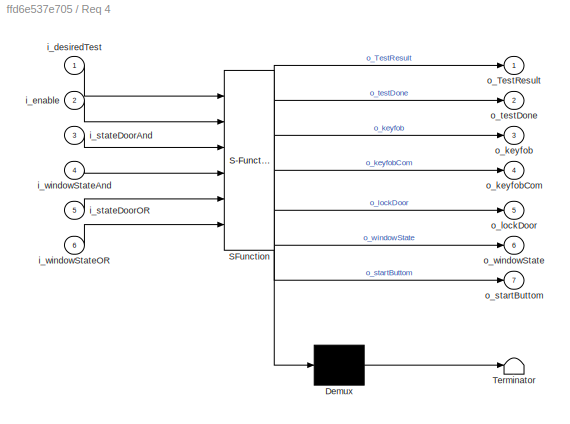
BLOCK [SubSystem] Req 4
  ErrorFcn = Stateflow.Translate.translate
  PermitHierarchicalResolution = ExplicitOnly
  Ports = [6, 7]
  RequestExecContextInheritance = off
  SFBlockType = Chart
  TreatAsAtomicUnit = on
BLOCK [Demux] Req 4/ Demux 
  Outputs = 1
  Ports = [1, 1]
BLOCK [S-Function] Req 4/ SFunction 
  EnableBusSupport = on
  FunctionName = sf_sfun
  PortCounts = [6 8]
  Ports = [6, 8]
  SFcnIsStateOwnerBlock = off
  SFunctionDeploymentMode = off
  Tag = Stateflow S-Function simulation2017 18
BLOCK [Terminator] Req 4/ Terminator 
BLOCK [Inport] Req 4/i_desiredTest
  IconDisplay = Port number
BLOCK [Inport] Req 4/i_enable
  IconDisplay = Port number
  Port = 2
BLOCK [Inport] Req 4/i_stateDoorAnd
  IconDisplay = Port number
  Port = 3
BLOCK [Inport] Req 4/i_stateDoorOR
  IconDisplay = Port number
  Port = 5
BLOCK [Inport] Req 4/i_windowStateAnd
  IconDisplay = Port number
  Port = 4
BLOCK [Inport] Req 4/i_windowStateOR
  IconDisplay = Port number
  Port = 6
BLOCK [Outport] Req 4/o_TestResult
  IconDisplay = Port number
BLOCK [Outport] Req 4/o_keyfob
  IconDisplay = Port number
  Port = 3
BLOCK [Outport] Req 4/o_keyfobCom
  IconDisplay = Port number
  Port = 4
BLOCK [Outport] Req 4/o_lockDoor
  IconDisplay = Port number
  Port = 5
BLOCK [Outport] Req 4/o_startButtom
  IconDisplay = Port number
  Port = 7
BLOCK [Outport] Req 4/o_testDone
  IconDisplay = Port number
  Port = 2
BLOCK [Outport] Req 4/o_windowState
  IconDisplay = Port number
  Port = 6
BLOCK [SubSystem] Req10
  ErrorFcn = Stateflow.Translate.translate
  PermitHierarchicalResolution = ExplicitOnly
  Ports = [3, 5]
  RequestExecContextInheritance = off
  SFBlockType = Chart
  TreatAsAtomicUnit = on
BLOCK [Demux] Req10/ Demux 
  Outputs = 1
  Ports = [1, 1]
BLOCK [S-Function] Req10/ SFunction 
  EnableBusSupport = on
  FunctionName = sf_sfun
  PortCounts = [3 6]
  Ports = [3, 6]
  SFcnIsStateOwnerBlock = off
  SFunctionDeploymentMode = off
  Tag = Stateflow S-Function simulation2017 10
BLOCK [Terminator] Req10/ Terminator 
BLOCK [Inport] Req10/i_RearLamps
  IconDisplay = Port number
  Port = 3
BLOCK [Inport] Req10/i_desiredTest
  IconDisplay = Port number
  Port = 2
BLOCK [Inport] Req10/i_enable
  IconDisplay = Port number
BLOCK [Outport] Req10/o_TestResult
  IconDisplay = Port number
BLOCK [Outport] Req10/o_brake
  IconDisplay = Port number
  Port = 3
BLOCK [Outport] Req10/o_keyfob
  IconDisplay = Port number
  Port = 4
BLOCK [Outport] Req10/o_keyfobcom
  IconDisplay = Port number
  Port = 5
BLOCK [Outport] Req10/o_testDone
  IconDisplay = Port number
  Port = 2
BLOCK [SubSystem] Req12
  ErrorFcn = Stateflow.Translate.translate
  PermitHierarchicalResolution = ExplicitOnly
  Ports = [3, 4]
  RequestExecContextInheritance = off
  SFBlockType = Chart
  TreatAsAtomicUnit = on
BLOCK [Demux] Req12/ Demux 
  Outputs = 1
  Ports = [1, 1]
BLOCK [S-Function] Req12/ SFunction 
  EnableBusSupport = on
  FunctionName = sf_sfun
  PortCounts = [3 5]
  Ports = [3, 5]
  SFcnIsStateOwnerBlock = off
  SFunctionDeploymentMode = off
  Tag = Stateflow S-Function simulation2017 11
BLOCK [Terminator] Req12/ Terminator 
BLOCK [Inport] Req12/i_IPCInd
  IconDisplay = Port number
  Port = 3
BLOCK [Inport] Req12/i_desiredTest
  IconDisplay = Port number
  Port = 2
BLOCK [Inport] Req12/i_enable
  IconDisplay = Port number
BLOCK [Outport] Req12/o_TestResult
  IconDisplay = Port number
BLOCK [Outport] Req12/o_keyfob
  IconDisplay = Port number
  Port = 3
BLOCK [Outport] Req12/o_keyfobcom
  IconDisplay = Port number
  Port = 4
BLOCK [Outport] Req12/o_testDone
  IconDisplay = Port number
  Port = 2
BLOCK [SubSystem] Req13
  ErrorFcn = Stateflow.Translate.translate
  PermitHierarchicalResolution = ExplicitOnly
  Ports = [3, 4]
  RequestExecContextInheritance = off
  SFBlockType = Chart
  TreatAsAtomicUnit = on
BLOCK [Demux] Req13/ Demux 
  Outputs = 1
  Ports = [1, 1]
BLOCK [S-Function] Req13/ SFunction 
  EnableBusSupport = on
  FunctionName = sf_sfun
  PortCounts = [3 5]
  Ports = [3, 5]
  SFcnIsStateOwnerBlock = off
  SFunctionDeploymentMode = off
  Tag = Stateflow S-Function simulation2017 12
BLOCK [Terminator] Req13/ Terminator 
BLOCK [Inport] Req13/i_desiredTest
  IconDisplay = Port number
  Port = 2
BLOCK [Inport] Req13/i_doorAjar
  IconDisplay = Port number
  Port = 3
BLOCK [Inport] Req13/i_enable
  IconDisplay = Port number
BLOCK [Outport] Req13/o_TestResult
  IconDisplay = Port number
BLOCK [Outport] Req13/o_doorAjar
  IconDisplay = Port number
  Port = 3
BLOCK [Outport] Req13/o_keyfobcommand
  IconDisplay = Port number
  Port = 4
BLOCK [Outport] Req13/o_testDone
  IconDisplay = Port number
  Port = 2
BLOCK [SubSystem] Req14
  ErrorFcn = Stateflow.Translate.translate
  PermitHierarchicalResolution = ExplicitOnly
  Ports = [5, 6]
  RequestExecContextInheritance = off
  SFBlockType = Chart
  TreatAsAtomicUnit = on
BLOCK [Demux] Req14/ Demux 
  Outputs = 1
  Ports = [1, 1]
BLOCK [S-Function] Req14/ SFunction 
  EnableBusSupport = on
  FunctionName = sf_sfun
  PortCounts = [5 7]
  Ports = [5, 7]
  SFcnIsStateOwnerBlock = off
  SFunctionDeploymentMode = off
  Tag = Stateflow S-Function simulation2017 1
BLOCK [Terminator] Req14/ Terminator 
BLOCK [Inport] Req14/i_desiredTest
  IconDisplay = Port number
  Port = 2
BLOCK [Inport] Req14/i_enable
  IconDisplay = Port number
BLOCK [Inport] Req14/i_motorStatus
  IconDisplay = Port number
  Port = 3
BLOCK [Inport] Req14/i_odometer
  IconDisplay = Port number
  Port = 4
BLOCK [Inport] Req14/i_speedmeter
  IconDisplay = Port number
  Port = 5
BLOCK [Outport] Req14/o_TestResult
  IconDisplay = Port number
BLOCK [Outport] Req14/o_gear
  IconDisplay = Port number
  Port = 3
BLOCK [Outport] Req14/o_keyfob
  IconDisplay = Port number
  Port = 4
BLOCK [Outport] Req14/o_keyfobcom
  IconDisplay = Port number
  Port = 5
BLOCK [Outport] Req14/o_startButtom
  IconDisplay = Port number
  Port = 6
BLOCK [Outport] Req14/o_testDone
  IconDisplay = Port number
  Port = 2
BLOCK [SubSystem] Req15
  ErrorFcn = Stateflow.Translate.translate
  PermitHierarchicalResolution = ExplicitOnly
  Ports = [4, 6]
  RequestExecContextInheritance = off
  SFBlockType = Chart
  TreatAsAtomicUnit = on
BLOCK [Demux] Req15/ Demux 
  Outputs = 1
  Ports = [1, 1]
BLOCK [S-Function] Req15/ SFunction 
  EnableBusSupport = on
  FunctionName = sf_sfun
  PortCounts = [4 7]
  Ports = [4, 7]
  SFcnIsStateOwnerBlock = off
  SFunctionDeploymentMode = off
  Tag = Stateflow S-Function simulation2017 13
BLOCK [Terminator] Req15/ Terminator 
BLOCK [Inport] Req15/i_desiredTest
  IconDisplay = Port number
  Port = 2
BLOCK [Inport] Req15/i_enable
  IconDisplay = Port number
BLOCK [Inport] Req15/i_gear
  IconDisplay = Port number
  Port = 4
BLOCK [Inport] Req15/i_motorStatus
  IconDisplay = Port number
  Port = 3
BLOCK [Outport] Req15/o_TestResult
  IconDisplay = Port number
BLOCK [Outport] Req15/o_gear
  IconDisplay = Port number
  Port = 3
BLOCK [Outport] Req15/o_keyfob
  IconDisplay = Port number
  Port = 4
BLOCK [Outport] Req15/o_keyfobcom
  IconDisplay = Port number
  Port = 5
BLOCK [Outport] Req15/o_startButtom
  IconDisplay = Port number
  Port = 6
BLOCK [Outport] Req15/o_testDone
  IconDisplay = Port number
  Port = 2
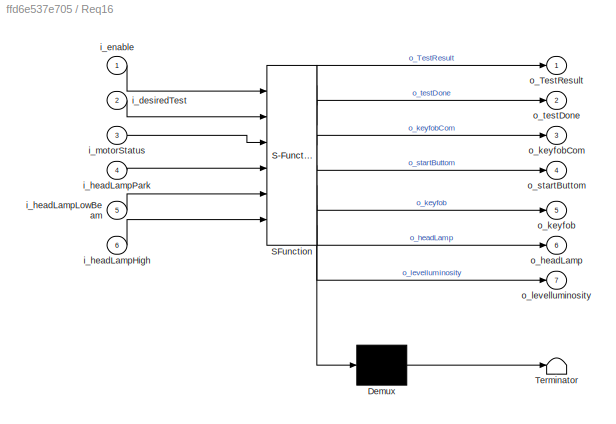
BLOCK [SubSystem] Req16
  ErrorFcn = Stateflow.Translate.translate
  PermitHierarchicalResolution = ExplicitOnly
  Ports = [6, 7]
  RequestExecContextInheritance = off
  SFBlockType = Chart
  TreatAsAtomicUnit = on
BLOCK [Demux] Req16/ Demux 
  Outputs = 1
  Ports = [1, 1]
BLOCK [S-Function] Req16/ SFunction 
  EnableBusSupport = on
  FunctionName = sf_sfun
  PortCounts = [6 8]
  Ports = [6, 8]
  SFcnIsStateOwnerBlock = off
  SFunctionDeploymentMode = off
  Tag = Stateflow S-Function simulation2017 14
BLOCK [Terminator] Req16/ Terminator 
BLOCK [Inport] Req16/i_desiredTest
  IconDisplay = Port number
  Port = 2
BLOCK [Inport] Req16/i_enable
  IconDisplay = Port number
BLOCK [Inport] Req16/i_headLampHigh
  IconDisplay = Port number
  Port = 6
BLOCK [Inport] Req16/i_headLampLowBeam
  IconDisplay = Port number
  Port = 5
BLOCK [Inport] Req16/i_headLampPark
  IconDisplay = Port number
  Port = 4
BLOCK [Inport] Req16/i_motorStatus
  IconDisplay = Port number
  Port = 3
BLOCK [Outport] Req16/o_TestResult
  IconDisplay = Port number
BLOCK [Outport] Req16/o_headLamp
  IconDisplay = Port number
  Port = 6
BLOCK [Outport] Req16/o_keyfob
  IconDisplay = Port number
  Port = 5
BLOCK [Outport] Req16/o_keyfobCom
  IconDisplay = Port number
  Port = 3
BLOCK [Outport] Req16/o_levelluminosity
  IconDisplay = Port number
  Port = 7
BLOCK [Outport] Req16/o_startButtom
  IconDisplay = Port number
  Port = 4
BLOCK [Outport] Req16/o_testDone
  IconDisplay = Port number
  Port = 2
BLOCK [SubSystem] Req17
  ErrorFcn = Stateflow.Translate.translate
  PermitHierarchicalResolution = ExplicitOnly
  Ports = [3, 4]
  RequestExecContextInheritance = off
  SFBlockType = Chart
  TreatAsAtomicUnit = on
BLOCK [Demux] Req17/ Demux 
  Outputs = 1
  Ports = [1, 1]
BLOCK [S-Function] Req17/ SFunction 
  EnableBusSupport = on
  FunctionName = sf_sfun
  PortCounts = [3 5]
  Ports = [3, 5]
  SFcnIsStateOwnerBlock = off
  SFunctionDeploymentMode = off
  Tag = Stateflow S-Function simulation2017 15
BLOCK [Terminator] Req17/ Terminator 
BLOCK [Inport] Req17/i_desiredTest
  IconDisplay = Port number
  Port = 2
BLOCK [Inport] Req17/i_enable
  IconDisplay = Port number
BLOCK [Inport] Req17/i_lamp_value
  IconDisplay = Port number
  Port = 3
BLOCK [Outport] Req17/o_TestResult
  IconDisplay = Port number
BLOCK [Outport] Req17/o_ketfob
  IconDisplay = Port number
  Port = 3
BLOCK [Outport] Req17/o_keyfobcom
  IconDisplay = Port number
  Port = 4
BLOCK [Outport] Req17/o_testDone
  IconDisplay = Port number
  Port = 2
BLOCK [SubSystem] Req18
  ErrorFcn = Stateflow.Translate.translate
  PermitHierarchicalResolution = ExplicitOnly
  Ports = [3, 3]
  RequestExecContextInheritance = off
  SFBlockType = Chart
  TreatAsAtomicUnit = on
BLOCK [Demux] Req18/ Demux 
  Outputs = 1
  Ports = [1, 1]
BLOCK [S-Function] Req18/ SFunction 
  EnableBusSupport = on
  FunctionName = sf_sfun
  PortCounts = [3 4]
  Ports = [3, 4]
  SFcnIsStateOwnerBlock = off
  SFunctionDeploymentMode = off
  Tag = Stateflow S-Function simulation2017 16
BLOCK [Terminator] Req18/ Terminator 
BLOCK [Inport] Req18/i_DRL
  IconDisplay = Port number
  Port = 3
BLOCK [Inport] Req18/i_desiredTest
  IconDisplay = Port number
  Port = 2
BLOCK [Inport] Req18/i_enable
  IconDisplay = Port number
BLOCK [Outport] Req18/o_TestResult
  IconDisplay = Port number
BLOCK [Outport] Req18/o_keyfobcom
  IconDisplay = Port number
  Port = 3
BLOCK [Outport] Req18/o_testDone
  IconDisplay = Port number
  Port = 2
BLOCK [SubSystem] Req3
  ErrorFcn = Stateflow.Translate.translate
  PermitHierarchicalResolution = ExplicitOnly
  Ports = [4, 5]
  RequestExecContextInheritance = off
  SFBlockType = Chart
  TreatAsAtomicUnit = on
BLOCK [Demux] Req3/ Demux 
  Outputs = 1
  Ports = [1, 1]
BLOCK [S-Function] Req3/ SFunction 
  EnableBusSupport = on
  FunctionName = sf_sfun
  PortCounts = [4 6]
  Ports = [4, 6]
  SFcnIsStateOwnerBlock = off
  SFunctionDeploymentMode = off
  Tag = Stateflow S-Function simulation2017 7
BLOCK [Terminator] Req3/ Terminator 
BLOCK [Inport] Req3/i_desiredTest
  IconDisplay = Port number
  Port = 2
BLOCK [Inport] Req3/i_enable
  IconDisplay = Port number
BLOCK [Inport] Req3/i_mirrorAnd
  IconDisplay = Port number
  Port = 4
BLOCK [Inport] Req3/i_mirrorOR
  IconDisplay = Port number
  Port = 3
BLOCK [Outport] Req3/o_TestResult
  IconDisplay = Port number
BLOCK [Outport] Req3/o_ddsCommand
  IconDisplay = Port number
  Port = 4
BLOCK [Outport] Req3/o_keyfob
  IconDisplay = Port number
  Port = 3
BLOCK [Outport] Req3/o_keyfobCommand
  IconDisplay = Port number
  Port = 5
BLOCK [Outport] Req3/o_testDone
  IconDisplay = Port number
  Port = 2
BLOCK [SubSystem] Req6 and Req 7
  ErrorFcn = Stateflow.Translate.translate
  PermitHierarchicalResolution = ExplicitOnly
  Ports = [3, 6]
  RequestExecContextInheritance = off
  SFBlockType = Chart
  TreatAsAtomicUnit = on
BLOCK [Demux] Req6 and Req 7/ Demux 
  Outputs = 1
  Ports = [1, 1]
BLOCK [S-Function] Req6 and Req 7/ SFunction 
  EnableBusSupport = on
  FunctionName = sf_sfun
  PortCounts = [3 7]
  Ports = [3, 7]
  SFcnIsStateOwnerBlock = off
  SFunctionDeploymentMode = off
  Tag = Stateflow S-Function simulation2017 8
BLOCK [Terminator] Req6 and Req 7/ Terminator 
BLOCK [Inport] Req6 and Req 7/i_DesiredTest
  IconDisplay = Port number
  Port = 2
BLOCK [Inport] Req6 and Req 7/i_HeadLamp
  IconDisplay = Port number
  Port = 3
BLOCK [Inport] Req6 and Req 7/i_enable
  IconDisplay = Port number
BLOCK [Outport] Req6 and Req 7/o_TestResult
  IconDisplay = Port number
BLOCK [Outport] Req6 and Req 7/o_gear
  IconDisplay = Port number
  Port = 6
BLOCK [Outport] Req6 and Req 7/o_keyCommand
  IconDisplay = Port number
  Port = 3
BLOCK [Outport] Req6 and Req 7/o_keyfob
  IconDisplay = Port number
  Port = 4
BLOCK [Outport] Req6 and Req 7/o_startButtom
  IconDisplay = Port number
  Port = 5
BLOCK [Outport] Req6 and Req 7/o_testDone
  IconDisplay = Port number
  Port = 2
BLOCK [SubSystem] Req9
  ErrorFcn = Stateflow.Translate.translate
  PermitHierarchicalResolution = ExplicitOnly
  Ports = [3, 6]
  RequestExecContextInheritance = off
  SFBlockType = Chart
  TreatAsAtomicUnit = on
BLOCK [Demux] Req9/ Demux 
  Outputs = 1
  Ports = [1, 1]
BLOCK [S-Function] Req9/ SFunction 
  EnableBusSupport = on
  FunctionName = sf_sfun
  PortCounts = [3 7]
  Ports = [3, 7]
  SFcnIsStateOwnerBlock = off
  SFunctionDeploymentMode = off
  Tag = Stateflow S-Function simulation2017 9
BLOCK [Terminator] Req9/ Terminator 
BLOCK [Inport] Req9/i_desiredTest
  IconDisplay = Port number
  Port = 2
BLOCK [Inport] Req9/i_enable
  IconDisplay = Port number
BLOCK [Inport] Req9/i_motorState
  IconDisplay = Port number
  Port = 3
BLOCK [Outport] Req9/o_TestResult
  IconDisplay = Port number
BLOCK [Outport] Req9/o_gear
  IconDisplay = Port number
  Port = 3
BLOCK [Outport] Req9/o_keyfob
  IconDisplay = Port number
  Port = 4
BLOCK [Outport] Req9/o_keyfobcommand
  IconDisplay = Port number
  Port = 5
BLOCK [Outport] Req9/o_startButtom
  IconDisplay = Port number
  Port = 6
BLOCK [Outport] Req9/o_testDone
  IconDisplay = Port number
  Port = 2
BLOCK [SubSystem] SelectTest
  ErrorFcn = Stateflow.Translate.translate
  PermitHierarchicalResolution = ExplicitOnly
  Ports = [4, 4]
  RequestExecContextInheritance = off
  SFBlockType = Chart
  TreatAsAtomicUnit = on
BLOCK [Demux] SelectTest/ Demux 
  Outputs = 1
  Ports = [1, 1]
BLOCK [S-Function] SelectTest/ SFunction 
  EnableBusSupport = on
  FunctionName = sf_sfun
  PortCounts = [4 5]
  Ports = [4, 5]
  SFcnIsStateOwnerBlock = off
  SFunctionDeploymentMode = off
  Tag = Stateflow S-Function simulation2017 3
BLOCK [Terminator] SelectTest/ Terminator 
BLOCK [Inport] SelectTest/i_done
  IconDisplay = Port number
  Port = 3
BLOCK [Inport] SelectTest/i_enable
  IconDisplay = Port number
  Port = 2
BLOCK [Inport] SelectTest/i_req
  IconDisplay = Port number
BLOCK [Inport] SelectTest/i_testResult
  IconDisplay = Port number
  Port = 4
BLOCK [Outport] SelectTest/o_enable
  IconDisplay = Port number
  Port = 2
BLOCK [Outport] SelectTest/o_req
  IconDisplay = Port number
BLOCK [Outport] SelectTest/o_testEnd
  IconDisplay = Port number
  Port = 4
BLOCK [Outport] SelectTest/o_testResult
  IconDisplay = Port number
  Port = 3
BLOCK [Selector] Selector
  IndexOptions = Index vector (port)
  Indices = [1 3]
  InputPortWidth = 18
  OutputSizes = 1
  Ports = [2, 1]
BLOCK [Selector] Selector1
  IndexOptions = Index vector (port)
  Indices = [1 3]
  InputPortWidth = 18
  OutputSizes = 1
  Ports = [2, 1]
BLOCK [Selector] Selector2
  IndexOptions = Index vector (port)
  Indices = [1 3]
  InputPortWidth = 18
  OutputSizes = 1
  Ports = [2, 1]
BLOCK [Selector] Selector3
  IndexOptions = Index vector (port)
  Indices = [1 3]
  InputPortWidth = 18
  OutputSizes = 1
  Ports = [2, 1]
BLOCK [Selector] Selector4
  IndexOptions = Index vector (port)
  Indices = [1 3]
  InputPortWidth = 18
  OutputSizes = 1
  Ports = [2, 1]
BLOCK [Selector] Selector5
  IndexOptions = Index vector (port)
  Indices = [1 3]
  InputPortWidth = 18
  OutputSizes = 1
  Ports = [2, 1]
BLOCK [Selector] Selector6
  IndexOptions = Index vector (port)
  Indices = [1 3]
  InputPortWidth = 18
  OutputSizes = 1
  Ports = [2, 1]
BLOCK [Inport] SpeedometerIn
  IconDisplay = Port number
  OutDataTypeStr = uint8
  Port = 6
BLOCK [Outport] StartButtomOut
  IconDisplay = Port number
  Port = 3
BLOCK [Inport] SyncStatusIn
  IconDisplay = Port number
  OutDataTypeStr = int8
  Port = 3
BLOCK [SubSystem] SyncWelcomeFeature "Req 11"
  ErrorFcn = Stateflow.Translate.translate
  PermitHierarchicalResolution = ExplicitOnly
  Ports = [3, 4]
  RequestExecContextInheritance = off
  SFBlockType = Chart
  TreatAsAtomicUnit = on
BLOCK [Demux] SyncWelcomeFeature "Req 11"/ Demux 
  Outputs = 1
  Ports = [1, 1]
BLOCK [S-Function] SyncWelcomeFeature "Req 11"/ SFunction 
  EnableBusSupport = on
  FunctionName = sf_sfun
  PortCounts = [3 5]
  Ports = [3, 5]
  SFcnIsStateOwnerBlock = off
  SFunctionDeploymentMode = off
  Tag = Stateflow S-Function simulation2017 5
BLOCK [Terminator] SyncWelcomeFeature "Req 11"/ Terminator 
BLOCK [Inport] SyncWelcomeFeature "Req 11"/i_Sync
  IconDisplay = Port number
  Port = 3
BLOCK [Inport] SyncWelcomeFeature "Req 11"/i_desiredTest
  IconDisplay = Port number
BLOCK [Inport] SyncWelcomeFeature "Req 11"/i_enable
  IconDisplay = Port number
  Port = 2
BLOCK [Outport] SyncWelcomeFeature "Req 11"/o_KeyfobCommand
  IconDisplay = Port number
  Port = 4
BLOCK [Outport] SyncWelcomeFeature "Req 11"/o_TestResult
  IconDisplay = Port number
BLOCK [Outport] SyncWelcomeFeature "Req 11"/o_openTheDoor
  IconDisplay = Port number
  Port = 3
BLOCK [Outport] SyncWelcomeFeature "Req 11"/o_testDone
  IconDisplay = Port number
  Port = 2
BLOCK [Terminator] Terminator
BLOCK [Terminator] Terminator1
BLOCK [Terminator] Terminator2
BLOCK [Inport] TurnLampsIn
  IconDisplay = Port number
  OutDataTypeStr = int8
  Port = 10
BLOCK [Outport] WindowLeftOut
  IconDisplay = Port number
  Port = 11
BLOCK [Outport] WindowRightOut
  IconDisplay = Port number
  Port = 12
BLOCK [Inport] WindowsBackLeftIn
  IconDisplay = Port number
  OutDataTypeStr = int8
  Port = 15
BLOCK [Inport] WindowsBackRightIn
  IconDisplay = Port number
  OutDataTypeStr = int8
  Port = 16
BLOCK [Inport] WindowsFrontLeftIn
  IconDisplay = Port number
  OutDataTypeStr = int8
  Port = 13
BLOCK [Inport] WindowsFrontRightIn
  IconDisplay = Port number
  OutDataTypeStr = int8
  Port = 14
ANNOTATION (root): Multiplexers responsible for redirect of the signal from test modules to select module
ANNOTATION (root): Signals Output to the system modules
ANNOTATION (root): Signals input from the system modules
ANNOTATION (root): This area contains the Select Module and the constants responsible for getting the test number and the begging signal from .m file.
ANNOTATION (root): Modules Test
ANNOTATION (root): Mux to output signals
ANNOTATION (root): Test modules.
ANNOTATION (root): This area contains the multiplexers responsible for redirect the output signals from of test is running.
LINE "Req 1":1 -> Memory2:1
LINE "Req 1":2 -> Memory3:1
LINE "Req 1":3 -> Goto16:1
LINE "Req 2":1 -> Memory6:1
LINE "Req 2":2 -> Memory7:1
LINE "Req 2":3 -> Goto40:1
LINE "Req 2":4 -> Goto52:1
LINE "Req 2":5 -> Goto53:1
LINE "Req 2":6 -> Goto54:1
LINE "Req 2":7 -> Goto98:1
LINE AjarDoorIndicatorIn:1 -> Bus Creator2:3
LINE Bus Creator1:1 -> Goto3:1
LINE Bus Creator2:1 -> Goto4:1
LINE Bus Creator3:1 -> Goto5:1
LINE Bus Creator4:1 -> Goto71:1
NET Bus Creator:1 -> Bus Selector:1, Goto2:1
LINE Bus Selector10:1 -> Req6 and Req 7:3
LINE Bus Selector13:1 -> Req9:3
LINE Bus Selector15:1 -> Req10:3
LINE Bus Selector17:1 -> Req12:3
LINE Bus Selector19:1 -> Req13:3
LINE Bus Selector1:1 -> Req14:3
LINE Bus Selector22:1 -> Req15:3
LINE Bus Selector22:2 -> Req15:4
LINE Bus Selector23:1 -> Req16:3
LINE Bus Selector23:2 -> Req16:4
LINE Bus Selector23:3 -> Req16:5
LINE Bus Selector23:4 -> Req16:6
LINE Bus Selector25:1 -> Req17:3
LINE Bus Selector2:1 -> SyncWelcomeFeature "Req 11":3
LINE Bus Selector3:1 -> Logical Operator1:1
LINE Bus Selector3:2 -> Logical Operator1:2
LINE Bus Selector4:1 -> Logical Operator13:1
LINE Bus Selector4:2 -> Logical Operator13:2
NET Bus Selector5:1 -> Logical Operator17:1, Logical Operator4:1
NET Bus Selector5:2 -> Logical Operator17:2, Logical Operator4:2
NET Bus Selector6:1 -> Logical Operator18:1, Logical Operator3:1
NET Bus Selector6:2 -> Logical Operator18:2, Logical Operator3:2
LINE Bus Selector7:1 -> Req18:3
NET Bus Selector8:1 -> Logical Operator16:1, Logical Operator2:1
NET Bus Selector8:2 -> Logical Operator16:2, Logical Operator2:2
LINE Bus Selector9:1 -> Req14:4
LINE Bus Selector9:2 -> Req14:5
LINE Bus Selector:1 -> CheckCurrentSIgnals:1
LINE Bus Selector:10 -> CheckCurrentSIgnals:10
LINE Bus Selector:2 -> CheckCurrentSIgnals:2
LINE Bus Selector:3 -> CheckCurrentSIgnals:3
LINE Bus Selector:4 -> CheckCurrentSIgnals:4
LINE Bus Selector:5 -> CheckCurrentSIgnals:5
LINE Bus Selector:6 -> CheckCurrentSIgnals:6
LINE Bus Selector:7 -> CheckCurrentSIgnals:7
LINE Bus Selector:8 -> CheckCurrentSIgnals:8
LINE Bus Selector:9 -> CheckCurrentSIgnals:9
LINE Chart1:1 -> Goto75:1
LINE Chart:1 -> Bus Creator4:1
LINE Chart:2 -> Bus Creator4:2
LINE Chart:3 -> Bus Creator4:3
LINE CheckCurrentSIgnals:1 -> Goto1:1
NET Constant2:1 -> Mux:1, Mux:11, Mux:13, Mux:18, Mux:5, Mux:8
NET Constant3:1 -> Mux1:1, Mux1:10, Mux1:11, Mux1:12, Mux1:13, Mux1:17, Mux1:18, Mux1:3, Mux1:4, Mux1:5, Mux1:8
NET Constant4:1 -> Mux3:1, Mux3:10, Mux3:11, Mux3:12, Mux3:13, Mux3:16, Mux3:17, Mux3:18, Mux3:3, Mux3:4, Mux3:5, Mux3:8
NET Constant5:1 -> Mux4:1, Mux4:10, Mux4:11, Mux4:12, Mux4:13, Mux4:14, Mux4:15, Mux4:16, Mux4:17, Mux4:18, Mux4:3, Mux4:5, Mux4:6, Mux4:7, Mux4:8, Mux4:9
NET Constant6:1 -> Mux2:5, Mux2:8
NET Constant7:1 -> Mux5:5, Mux5:8
NET Constant8:1 -> Mux6:5, Mux6:8
LINE DRLampIn:1 -> Bus Creator3:4
LINE Data Type Conversion1:1 -> Goto13:1
LINE Data Type Conversion2:1 -> Goto7:1
LINE Data Type Conversion:1 -> SelectTest:4
LINE From Workspace1:1 -> Memory61:1
LINE From Workspace:1 -> Data Type Conversion1:1
NET From100:1 -> Mux3:6, Mux3:7
LINE From101:1 -> Mux3:9
LINE From102:1 -> Mux3:15
LINE From103:1 -> Goto46:1
LINE From104:1 -> Mux4:2
LINE From105:1 -> Selector4:2
LINE From106:1 -> Mux4:4
NET From107:1 -> Chart1:2, Goto62:1, Goto63:1
LINE From108:1 -> Goto130:1
LINE From109:1 -> Mux5:3
LINE From10:1 -> IPCIndicatorOut:1
LINE From110:1 -> Mux5:4
NET From111:1 -> Mux5:6, Mux5:7
LINE From112:1 -> Mux5:9
LINE From113:1 -> Mux5:10
LINE From114:1 -> Mux5:11
LINE From115:1 -> Mux5:12
LINE From116:1 -> Mux5:13
LINE From117:1 -> Mux5:15
LINE From118:1 -> Mux5:17
LINE From119:1 -> Mux5:16
LINE From11:1 -> DoorAjarOut:1
LINE From120:1 -> Mux5:18
LINE From121:1 -> Mux6:1
LINE From122:1 -> Mux6:3
LINE From123:1 -> Mux6:4
NET From124:1 -> Mux6:6, Mux6:7
LINE From125:1 -> Mux6:9
LINE From126:1 -> Mux6:10
LINE From127:1 -> Mux6:11
LINE From128:1 -> Mux6:12
LINE From129:1 -> Mux6:13
LINE From12:1 -> GearOut:1
LINE From130:1 -> Mux6:15
LINE From131:1 -> Mux6:17
LINE From132:1 -> Mux6:16
LINE From133:1 -> Mux6:18
LINE From134:1 -> Mux6:2
LINE From135:1 -> Selector5:2
LINE From136:1 -> Selector6:2
LINE From137:1 -> Memory56:1
LINE From138:1 -> Memory57:1
LINE From139:1 -> Bus Selector1:1
LINE From13:1 -> Memory40:1
LINE From140:1 -> Mux2:14
LINE From141:1 -> Mux:14
LINE From142:1 -> Mux1:14
LINE From143:1 -> Mux3:14
LINE From144:1 -> Mux5:14
LINE From145:1 -> Mux6:14
LINE From146:1 -> Mux2:18
LINE From147:1 -> Mux2:11
LINE From148:1 -> KeyfobOut:1
LINE From149:1 -> DDSCommandOut:1
LINE From14:1 -> Selector:2
LINE From150:1 -> LevelLuminosityOut:1
LINE From15:1 -> Bus Selector2:1
LINE From16:1 -> Memory18:1
LINE From17:1 -> Mux:2
LINE From18:1 -> Mux:3
LINE From19:1 -> Bus Selector3:1
LINE From1:1 -> Mux5:1
LINE From20:1 -> Memory:1
LINE From21:1 -> Memory27:1
LINE From22:1 -> Mux:4
LINE From23:1 -> Memory26:1
NET From24:1 -> Mux:6, Mux:7
LINE From25:1 -> Memory1:1
LINE From26:1 -> Mux2:1
LINE From27:1 -> WindowLeftOut:1
LINE From28:1 -> Bus Selector5:1
LINE From29:1 -> Bus Selector8:1
LINE From2:1 -> Mux5:2
LINE From30:1 -> Mux:9
LINE From31:1 -> Memory4:1
LINE From32:1 -> Memory5:1
LINE From33:1 -> WindowRightOut:1
LINE From34:1 -> Memory31:1
LINE From35:1 -> Memory30:1
LINE From36:1 -> Bus Selector10:1
LINE From37:1 -> Memory23:1
LINE From38:1 -> Mux:10
LINE From39:1 -> Memory22:1
LINE From3:1 -> Terminator:1
LINE From40:1 -> Memory33:1
LINE From41:1 -> Bus Selector13:1
LINE From42:1 -> Memory32:1
LINE From43:1 -> Mux:12
LINE From44:1 -> Memory37:1
LINE From45:1 -> Memory36:1
LINE From46:1 -> Bus Selector15:1
LINE From47:1 -> Mux:15
LINE From48:1 -> Memory41:1
LINE From49:1 -> Bus Selector17:1
LINE From4:1 -> KeyFobCommandsOut:1
LINE From50:1 -> Bus Selector4:1
LINE From51:1 -> Memory12:1
LINE From52:1 -> Mux:16
LINE From53:1 -> Memory51:1
LINE From54:1 -> Bus Selector19:1
LINE From55:1 -> Mux:17
LINE From56:1 -> Mux1:9
LINE From57:1 -> Memory50:1
LINE From58:1 -> Bus Selector22:1
LINE From59:1 -> Bus Selector23:1
LINE From5:1 -> StartButtomOut:1
NET From60:1 -> Mux1:6, Mux1:7
LINE From61:1 -> Memory13:1
LINE From62:1 -> Memory52:1
LINE From63:1 -> Bus Selector25:1
LINE From64:1 -> LockRightOut:1
LINE From65:1 -> LockLeftOut:1
LINE From66:1 -> SelectTest:1
LINE From67:1 -> Memory60:1
LINE From68:1 -> Mux1:2
LINE From69:1 -> Memory53:1
LINE From6:1 -> DoorBackOut:1
LINE From70:1 -> Selector1:2
LINE From71:1 -> SelectTest:3
LINE From72:1 -> Data Type Conversion:1
LINE From73:1 -> Memory19:1
NET From74:1 -> Goto44:1, Goto47:1
LINE From75:1 -> Memory9:1
LINE From76:1 -> Memory8:1
LINE From77:1 -> Bus Selector6:1
LINE From78:1 -> HeadLampOut:1
LINE From79:1 -> Memory46:1
LINE From7:1 -> Terminator2:1
LINE From80:1 -> Memory47:1
LINE From81:1 -> Bus Selector7:1
LINE From82:1 -> Mux1:15
LINE From83:1 -> Mux1:16
NET From84:1 -> Chart1:1, Goto45:1
LINE From85:1 -> Goto49:1
LINE From86:1 -> Mux2:2
LINE From87:1 -> Mux2:3
LINE From88:1 -> Mux2:4
NET From89:1 -> Mux2:6, Mux2:7
LINE From8:1 -> BrakeOut:1
LINE From90:1 -> Mux2:9
LINE From91:1 -> Mux2:10
LINE From92:1 -> Mux2:12
LINE From93:1 -> Mux2:13
LINE From94:1 -> Mux2:15
LINE From95:1 -> Mux2:16
LINE From96:1 -> Mux2:17
LINE From97:1 -> Selector2:2
LINE From98:1 -> Selector3:2
LINE From99:1 -> Mux3:2
LINE From9:1 -> DoorFrontOut:1
LINE From:1 -> Bus Selector9:1
LINE GearStateIn:1 -> Bus Creator3:1
LINE HeadLampHighIn:1 -> Bus Creator3:7
LINE HeadLampIn:1 -> Bus Creator3:2
LINE HeadLampLowBeamIn:1 -> Bus Creator3:6
LINE IPCIndicatorIn:1 -> Bus Creator2:2
LINE LockBackLeftIn:1 -> Bus Creator:7
LINE LockBackRightIn:1 -> Bus Creator:8
LINE LockFrontLeftIn:1 -> Bus Creator:5
LINE LockFrontRightIn:1 -> Bus Creator:6
LINE Logical Operator13:1 -> "Req 2":3
LINE Logical Operator16:1 -> Req3:3
LINE Logical Operator17:1 -> Req 4:4
LINE Logical Operator18:1 -> Req 4:3
LINE Logical Operator1:1 -> "Req 1":3
LINE Logical Operator2:1 -> Req3:4
LINE Logical Operator3:1 -> Req 4:5
LINE Logical Operator4:1 -> Req 4:6
LINE Memory10:1 -> Goto64:1
LINE Memory11:1 -> Goto65:1
LINE Memory12:1 -> Req 4:1
LINE Memory13:1 -> Req 4:2
LINE Memory14:1 -> Goto20:1
LINE Memory15:1 -> Goto61:1
LINE Memory16:1 -> Goto14:1
LINE Memory17:1 -> Goto15:1
LINE Memory18:1 -> SyncWelcomeFeature "Req 11":1
LINE Memory19:1 -> SyncWelcomeFeature "Req 11":2
LINE Memory1:1 -> "Req 1":2
LINE Memory20:1 -> Goto25:1
LINE Memory21:1 -> Goto26:1
LINE Memory22:1 -> Req10:1
LINE Memory23:1 -> Req10:2
LINE Memory24:1 -> Goto23:1
LINE Memory25:1 -> Goto24:1
LINE Memory26:1 -> Req9:1
LINE Memory27:1 -> Req9:2
LINE Memory28:1 -> Goto21:1
LINE Memory29:1 -> Goto22:1
LINE Memory2:1 -> Goto18:1
LINE Memory30:1 -> Req6 and Req 7:1
LINE Memory31:1 -> Req6 and Req 7:2
LINE Memory32:1 -> Req12:1
LINE Memory33:1 -> Req12:2
LINE Memory34:1 -> Goto27:1
LINE Memory35:1 -> Goto28:1
LINE Memory36:1 -> Req13:1
LINE Memory37:1 -> Req13:2
LINE Memory38:1 -> Goto29:1
LINE Memory39:1 -> Goto30:1
LINE Memory3:1 -> Goto31:1
LINE Memory40:1 -> Req15:1
LINE Memory41:1 -> Req15:2
LINE Memory42:1 -> Goto32:1
LINE Memory43:1 -> Goto33:1
LINE Memory44:1 -> Goto38:1
LINE Memory45:1 -> Goto39:1
LINE Memory46:1 -> Req18:1
LINE Memory47:1 -> Req18:2
LINE Memory48:1 -> Goto34:1
LINE Memory49:1 -> Goto35:1
LINE Memory4:1 -> "Req 2":1
LINE Memory50:1 -> Req16:1
LINE Memory51:1 -> Req16:2
LINE Memory52:1 -> Req17:1
LINE Memory53:1 -> Req17:2
LINE Memory54:1 -> Goto36:1
LINE Memory55:1 -> Goto37:1
LINE Memory56:1 -> Req14:1
LINE Memory57:1 -> Req14:2
LINE Memory58:1 -> Goto58:1
LINE Memory59:1 -> Goto69:1
LINE Memory5:1 -> "Req 2":2
LINE Memory60:1 -> SelectTest:2
LINE Memory61:1 -> Data Type Conversion2:1
LINE Memory6:1 -> Goto41:1
LINE Memory7:1 -> Goto51:1
LINE Memory8:1 -> Req3:1
LINE Memory9:1 -> Req3:2
LINE Memory:1 -> "Req 1":1
LINE MirrorLeftIn:1 -> Bus Creator:10
LINE MirrorRightIn:1 -> Bus Creator:9
LINE MotorStatusIn:1 -> Bus Creator3:5
LINE Mux1:1 -> Selector1:1
LINE Mux2:1 -> Selector2:1
LINE Mux3:1 -> Selector3:1
LINE Mux4:1 -> Selector4:1
LINE Mux5:1 -> Selector5:1
LINE Mux6:1 -> Selector6:1
LINE Mux:1 -> Selector:1
LINE OdoMeterIn:1 -> Bus Creator2:5
LINE OverHeadLampIn:1 -> Bus Creator1:1
LINE RearLampIn:1 -> Bus Creator1:2
LINE Req 4:1 -> Memory14:1
LINE Req 4:2 -> Memory15:1
LINE Req 4:3 -> Goto72:1
LINE Req 4:4 -> Goto73:1
LINE Req 4:5 -> Goto74:1
LINE Req 4:6 -> Goto19:1
LINE Req10:1 -> Memory20:1
LINE Req10:2 -> Memory21:1
LINE Req10:3 -> Goto100:1
LINE Req10:4 -> Goto101:1
LINE Req10:5 -> Goto102:1
LINE Req12:1 -> Memory34:1
LINE Req12:2 -> Memory35:1
LINE Req12:3 -> Goto106:1
LINE Req12:4 -> Goto107:1
LINE Req13:1 -> Memory38:1
LINE Req13:2 -> Memory39:1
LINE Req13:3 -> Goto110:1
LINE Req13:4 -> Goto111:1
LINE Req14:1 -> Memory58:1
LINE Req14:2 -> Memory59:1
LINE Req14:3 -> Goto48:1
LINE Req14:4 -> Goto55:1
LINE Req14:5 -> Goto56:1
LINE Req14:6 -> Goto57:1
LINE Req15:1 -> Memory42:1
LINE Req15:2 -> Memory43:1
LINE Req15:3 -> Goto114:1
LINE Req15:4 -> Goto115:1
LINE Req15:5 -> Goto116:1
LINE Req15:6 -> Goto117:1
LINE Req16:1 -> Memory48:1
LINE Req16:2 -> Memory49:1
LINE Req16:3 -> Goto122:1
LINE Req16:4 -> Goto123:1
LINE Req16:5 -> Goto124:1
LINE Req16:6 -> Goto125:1
LINE Req16:7 -> Goto76:1
LINE Req17:1 -> Memory54:1
LINE Req17:2 -> Memory55:1
LINE Req17:3 -> Goto131:1
LINE Req17:4 -> Goto132:1
LINE Req18:1 -> Memory44:1
LINE Req18:2 -> Memory45:1
LINE Req18:3 -> Goto135:1
LINE Req3:1 -> Memory10:1
LINE Req3:2 -> Memory11:1
LINE Req3:3 -> Goto66:1
LINE Req3:4 -> Goto67:1
LINE Req3:5 -> Goto68:1
LINE Req6 and Req 7:1 -> Memory28:1
LINE Req6 and Req 7:2 -> Memory29:1
LINE Req6 and Req 7:3 -> Goto82:1
LINE Req6 and Req 7:4 -> Goto83:1
LINE Req6 and Req 7:5 -> Goto84:1
LINE Req6 and Req 7:6 -> Goto96:1
LINE Req9:1 -> Memory24:1
LINE Req9:2 -> Memory25:1
LINE Req9:3 -> Goto88:1
LINE Req9:4 -> Goto89:1
LINE Req9:5 -> Goto90:1
LINE Req9:6 -> Goto91:1
LINE SelectTest:1 -> Goto9:1
LINE SelectTest:2 -> Goto17:1
LINE SelectTest:3 -> Goto8:1
LINE SelectTest:4 -> Terminator1:1
LINE Selector1:1 -> Goto43:1
LINE Selector2:1 -> Goto42:1
LINE Selector3:1 -> Goto50:1
NET Selector4:1 -> Goto59:1, Goto60:1
LINE Selector5:1 -> Goto6:1
LINE Selector6:1 -> Goto12:1
NET Selector:1 -> Chart:1, Goto11:1
LINE SpeedometerIn:1 -> Bus Creator2:4
LINE SyncStatusIn:1 -> Bus Creator2:1
LINE SyncWelcomeFeature "Req 11":1 -> Memory16:1
LINE SyncWelcomeFeature "Req 11":2 -> Memory17:1
LINE SyncWelcomeFeature "Req 11":3 -> Goto10:1
LINE SyncWelcomeFeature "Req 11":4 -> Goto70:1
LINE TurnLampsIn:1 -> Bus Creator3:3
LINE WindowsBackLeftIn:1 -> Bus Creator:3
LINE WindowsBackRightIn:1 -> Bus Creator:4
LINE WindowsFrontLeftIn:1 -> Bus Creator:1
LINE WindowsFrontRightIn:1 -> Bus Creator:2
note: NET lines group one-source signal fan-out (src -> all destinations, sorted); 1:1 wires keep LINE
CHART Req14 states=8 transitions=11
  STATE_LABEL 'The module responsible by test the requeriment fourteen.\n\nNotice : i_ means input signals\n\t\to_ means output signals\n\nInput :  \ni_enable - Start the test. 1- Start test . 0 - Do nothing.  \ni_desiredTest - Test Number Value. All the modules recieve the \nsignal and decide either execute the test. Ex: Value "1" means that will being testing the requeriment 1. \ni_MotorState. 1 - On ; 0 - Off .\ni_speedm...<+677ch>'
  STATE_LABEL 'state_gearParkOnCar\nentry:r_aux=0;\nduring:\no_keyfobcom = 0;\non after(200,msec):\no_keyfob =1;\no_gear=0;\non after(300,msec):\no_startButtom =1;\non after(400,msec):\nr_aux=1;\nexit :\nr_speedmeter = i_speedmeter ;\nr_odometer = i_odometer;\nr_aux=0;\n'
  STATE_LABEL 'state_idle\nentry:\nr_aux=0;\n'
  STATE_LABEL 'state_testSpeedmeter\nentry :\nduring :\non after(100,msec):\nif (i_speedmeter<r_speedmeter || i_odometer < r_odometer || (i_odometer > r_odometer+20) || (i_speedmeter>r_speedmeter+20))\n    r_error = 1;\nend\nif (i_speedmeter >220)\n    r_error = 1 ;\n    r_aux = 0 ;\nelse if (i_speedmeter == 220)\n        r_aux =1 ;\n    end\nend\nr_speedmeter = i_speedmeter ;\nexit :\nr_aux = 0 ;\nr_error = 0 ;\n'
  STATE_LABEL 'State_error\nduring:\no_TestResult =0;\no_testDone =1 ;\non after(300,msec):\nr_aux =1;\nexit :\nr_aux =0;'
  STATE_LABEL 'state_testSpeedmeter1\nentry :\nduring :\non after(100,msec):\nif (i_speedmeter>r_speedmeter || i_odometer > r_odometer || (i_speedmeter< r_speedmeter -20) || (i_odometer < r_odometer - 20))\n    r_error = 1;\nend\nif (i_speedmeter < 0 )\n    r_error = 1 ;\n    r_aux =0 ;\nelse if (i_speedmeter == 0)\n        r_aux =1 ;\n    end\nend\nr_speedmeter = i_speedmeter ;\nexit :\nr_aux = 0 ;\nr_error = 0\n'
  STATE_LABEL 'State_feat_ok\nduring:\no_TestResult =1;\no_testDone =1;\non after(100,msec):\nr_aux =1;\nexit:\nr_aux =0;\n'
  STATE_LABEL 'state_update\nentry:\nr_aux = 0;\non after(200,msec):\nduring:\no_TestResult =0;\no_testDone = 0;\nr_aux =1 ;\nexit:\no_keyfob = 0 ;\no_keyfobcom = 0;\no_gear = 0 ;\no_startButtom = 0 ;\n'
CHART Chart states=1 transitions=2
  STATE_LABEL 'state_infinityLoop\nentry:\nif (i_keyfobValue==1)\n    o_s1 = 1.5 ;\n    o_s2 = 1.5 ;\n    o_s3 = 1.2;\nelse\n    o_s1 = 3 ;\n    o_s2 = 3 ;\n    o_s3 = 3;\nend'
CHART SelectTest states=5 transitions=5
  STATE_LABEL 'state_idle\nentry:\nr_aux=0;\no_testResult = 0 ;\no_enable = 0;\n'
  STATE_LABEL 'state_SendRequestTest\nduring:\no_req=i_req;\non after(1,usec):\no_enable = 1;\nexit:\no_enable = 0;'
  STATE_LABEL 'state_WaitTest\nduring :\n'
  STATE_LABEL 'state_update\nentry:\nr_aux = 0;\no_testResult = i_testResult;\no_testEnd = 1;\non after(1,msec):\nr_aux=1;\n'
  STATE_LABEL 'state_pause\nduring :\n   o_testEnd  = 0 ;\n'
CHART Chart1 states=2 transitions=1
  STATE_LABEL 'The module responsible by send the correct dds value to module.\n\nNotice : i_ means input signals\n\t\to_ means output signals\n\nInput :  \ni_ddsCommand - DDS commands. 1- Unfold the mirrors ; 0- Fold the mirrors\ni_LockCommand - Lock commands. 1 - Lock the doors - 0 - unlock the doors\nOutput : \no_ddsCommand - Value dds to the system module.\n\n\n  '
  STATE_LABEL 'state_selectDataOutput\nentry:\no_ddsCommand =0;\nduring :\nif (i_ddsCommand==0)\n    o_ddsCommand = 2;\nelseif(i_ddsCommand==1)\n    o_ddsCommand = 3;\nelseif(i_LockCommand==1)\n    o_ddsCommand = 4;\nelseif(i_LockCommand==0)\n    o_ddsCommand = 5;\nend\n'
CHART SyncWelcomeFeature "Req 11" states=8 transitions=10
  STATE_LABEL 'The module responsible by test the requeriment eleven.\n\nNotice : i_ means input signals\n\t\to_ means output signals\n\nInput :  \ni_enable - Start the test. 1- Start test . 0 - Do nothing.  \ni_desiredTest - Test Number Value. All the modules recieve the \nsignal and decide either execute the test. Ex: Value "1" means that will being testing the requeriment 1. \ni_Sync. 0 - Showing nothing ; 1 - Showing W...<+514ch>'
  STATE_LABEL 'State_idle\nentry :\nr_aux=0;\no_TestResult = 0;\no_KeyfobCommand =0;\nr_error = 0;\nduring:\n'
  STATE_LABEL 'state_checkSync\nentry:\nr_aux =0;\no_openTheDoor =0;\nduring:\nif(i_Sync~=1)\n    r_error = 1;\nend\nexit:\nr_aux=0;\n'
  STATE_LABEL 'state_readyingSystem\nduring:\no_openTheDoor =1;\non after(200,msec):\nr_aux=1;\nexit : r_aux=0;\n o_openTheDoor =0;'
  STATE_LABEL 'state_testRadio\nduring :\non after(500,msec):\nr_aux=1;\nexit :\nr_aux=0;'
  STATE_LABEL 'State_error\nduring:\no_TestResult =0;\no_testDone =1 ;\non after(500,msec):\nr_aux =1;\nexit :\nr_aux =0;'
  STATE_LABEL 'State_feat_ok\nduring:\no_TestResult =1;\no_testDone =1;\non after(100,msec):\nr_aux =1;\nexit:\nr_aux =0;\n'
  STATE_LABEL 'state_update\nentry:\nr_aux = 0;\non after(500,msec):\nduring:\no_TestResult =0;\no_testDone = 0;\nr_aux =1 ;\nexit:\n'
CHART "Req 1" states=6 transitions=7
  STATE_LABEL 'The module responsible by test the requeriment one.\n\nNotice : i_ means input signals\n\t\to_ means output signals\n\nInput :  \ni_enable = Start the test. 1- Start test . 0 - Do nothing.  \ni_desiredTest = Test Number Value. All the modules recieve the \nsignal and decide either execute the test. Ex: Value "1" means that will being testing the requeriment 1. \ni_WindowsState = Windows state. 1- Windows Clo...<+307ch>'
  STATE_LABEL 'State_idle\nentry :\nr_aux=0;\nr_count = 1 ;\no_TestResult = -1;\nr_error = 0;\nduring:\n'
  STATE_LABEL 'state_readyingSystem\nduring:\nafter(10,sec);\no_keyfob =1;\nr_aux=1;\nexit : r_aux=0;\n o_keyfob =0;'
  STATE_LABEL 'State_error\nduring:\no_TestResult =0;\no_testDone =1 ;\nafter(100,msec);\nr_aux =1;\nexit :\nr_aux =0;'
  STATE_LABEL 'State_feat_ok\nduring:\no_TestResult =1;\no_testDone =1;\nafter(100,msec);\nr_aux =1;\nexit:\nr_aux =0;\n'
  STATE_LABEL 'state_update\nentry:\nr_aux = 0;\nafter(200,msec)\nduring:\no_TestResult =-1;\no_testDone = 0;\nr_aux =1 ;\nexit:\n'
CHART Req3 states=9 transitions=13
  STATE_LABEL 'The module responsible by test the requeriment three.\n\nNotice : i_ means input signals\n\t\to_ means output signals\n\nInput :  \ni_enable - Start the test. 1- Start test . 0 - Do nothing.  \ni_desiredTest - Test Number Value. All the modules recieve the \nsignal and decide either execute the test. Ex: Value "1" means that will being testing the requeriment 1. \ni_mirrorOR - Or condition with the mirrors. ...<+490ch>'
  STATE_LABEL 'state_mirror_fold_lock\nduring:\non after(10,msec):\no_keyfobCommand = 1 ;\no_ddsCommand = 0 ;\non after(20,msec):\no_keyfob = 0;\non after(300,msec):\nr_aux=1;\nexit:\nr_aux = 0 ;'
  STATE_LABEL 'state_mirror_unfold_lock\nduring:\no_keyfob = 0;\no_ddsCommand = 0 ;\non after(10,msec):\no_keyfobCommand = 1 ;\non after(300,msec):\nr_aux=1;\nexit:\nr_aux = 0 ;'
  STATE_LABEL 'state_mirror_dds_unfold\nduring:\no_keyfob = 1;\no_keyfobCommand = 0;\non after(10,msec):\no_ddsCommand = 1 ;\non after(20,msec):\nr_aux=1;\nexit:\nr_aux = 0 ;'
  STATE_LABEL 'state_idle\nentry :\nr_aux = 0 ;\no_ddsCommand = -1 ;\no_keyfobCommand = 0 ;\n'
  STATE_LABEL 'state_mirror_dds_fold\nduring:\no_keyfob = 1;\no_keyfobCommand = 0;\non after(10,msec):\no_ddsCommand = 0 ;\non after(100,msec):\n  r_aux=1;\nexit:\nr_aux = 0 ;'
  STATE_LABEL 'State_error\nduring:\no_TestResult =0;\no_testDone =1 ;\non after(100,msec):\nr_aux =1;\nexit :\nr_aux =0;'
  STATE_LABEL 'State_feat_ok\nduring:\no_TestResult =1;\no_testDone =1;\n on after(100,msec):\nr_aux =1;\nexit:\nr_aux =0;\n'
  STATE_LABEL 'state_update\nentry:\nr_aux = 0;\non after(5,msec):\no_testDone = 0;\nduring:\no_TestResult =0;\n'
CHART Req6 and Req 7 states=9 transitions=14
  STATE_LABEL 'The module responsible by test the requeriment six and seven.\n\nNotice : i_ means input signals\n\t\to_ means output signals\n\nInput :  \ni_enable - Start the test. 1- Start test . 0 - Do nothing.  \ni_desiredTest - Test Number Value. All the modules recieve the \nsignal and decide either execute the test. Ex: Value "1" means that will being testing the requeriment 1. \ni_HeadLamp - State the Head Lamp. 1 ...<+536ch>'
  STATE_LABEL 'state_OverHeadTest\nduring:\no_keyCommand = 0;\no_keyfob =1 ;\no_startButtom = 0;\non after(10,msec):\nr_aux=1;\nexit :\nr_aux=0;\n'
  STATE_LABEL 'state_OverHeadTest1\nduring:\no_keyCommand = 0;\no_keyfob =1 ;\no_gear = 0 ;\non after(10,msec):\no_startButtom = 1;\non after(20,msec):\nr_aux=1;\nexit :\nr_aux=0;\n'
  STATE_LABEL 'state_OverHeadTest2\nduring:\no_startButtom = 0;\non after(10,msec):\no_keyCommand = 0;\no_keyfob =1;\non after(20,msec):\nr_aux=1;\nexit :\nr_aux=0;\nr_aux2 = 0;\n'
  STATE_LABEL 'state_OverHeadTestReq7\nentry :\nr_aux2 = 0;\nr_aux=0;\nduring:\no_gear = 0 ;\non after(200,msec):\no_keyfob =1;\non after(300,msec):\no_keyCommand = 0;\no_startButtom = 1;\non after(400,msec):\no_startButtom = 0;\non after(500,msec):\no_keyCommand = 0;\no_keyfob =0;\nr_aux2 = 1;\non after(11.5,sec):\nr_aux=1;\nexit :\nr_aux=0;\nr_aux2=0;\n'
  STATE_LABEL 'state_idle\nduring:\nr_aux =0;\no_startButtom = 0;\non after(1,msec):\no_keyCommand = 0;\no_keyfob =0;\n'
  STATE_LABEL 'State_error\nduring:\no_TestResult =0;\no_testDone =1 ;\non after(100,msec):\nr_aux =1;\nexit :\nr_aux =0;'
  STATE_LABEL 'State_feat_ok\nduring:\no_TestResult =1;\no_testDone =1;\non after(10,msec):\nr_aux =1;\nexit:\nr_aux =0;\n'
  STATE_LABEL 'state_update\nentry:\nr_aux = 0;\nduring:\no_TestResult =0;\no_testDone = 0;\nr_aux =1 ;\nexit:\n'
CHART Req9 states=7 transitions=9
  STATE_LABEL 'The module responsible by test the requeriment nine.\n\nNotice : i_ means input signals\n\t\to_ means output signals\n\nInput :  \ni_enable - Start the test. 1- Start test . 0 - Do nothing.  \ni_desiredTest - Test Number Value. All the modules recieve the \nsignal and decide either execute the test. Ex: Value "1" means that will being testing the requeriment 1. \ni_MotorState. 1 - On ; 0 - Off .\n \n\nOutput : ...<+496ch>'
  STATE_LABEL 'state_testTurnOnCar\nduring:\no_keyfobcommand = 0;\no_keyfob =1;\no_gear = 0;\non after(1,sec):\no_startButtom = 1;\non after(2,sec):\nr_aux=1;\nexit:\nr_aux = 0 ;\no_startButtom = 0;\no_keyfob =0;\n'
  STATE_LABEL 'state_idle\nentry :\nr_aux = 0 ;\no_keyfobcommand = 0;\no_keyfob =0;\no_gear = 0;\non after(100,msec):\no_startButtom = 0;\n'
  STATE_LABEL 'state_testTurnOffCar\nduring:\no_keyfobcommand = 0;\no_keyfob =0;\no_gear = 0;\non after(1,sec):\no_startButtom = 1;\non after(2,sec):\nr_aux=1;\nexit:\nr_aux = 0 ;\no_startButtom = 0;\no_keyfob =0;\n'
  STATE_LABEL 'State_error\nentry :\nduring:\no_TestResult =0;\no_testDone =1 ;\non after(200,msec):\nr_aux =1;\nexit :\nr_aux =0;'
  STATE_LABEL 'State_feat_ok\nentry :\nduring:\no_TestResult =1;\no_testDone =1;\no_startButtom=0;\non after(200,msec):\nr_aux =1;\nexit:\nr_aux =0;\n'
  STATE_LABEL 'state_update\nentry:\nr_aux = 0;\nduring:\non after(1,sec):\no_TestResult =0;\no_testDone = 0;\nr_aux =1 ;\nexit:\n'
CHART Req10 states=7 transitions=9
  STATE_LABEL 'The module responsible by test the requeriment ten.\n\nNotice : i_ means input signals\n\t\to_ means output signals\n\nInput :  \ni_enable - Start the test. 1- Start test . 0 - Do nothing.  \ni_desiredTest - Test Number Value. All the modules recieve the \nsignal and decide either execute the test. Ex: Value "1" means that will being testing the requeriment 1. \ni_RearLamps. 1 - Light On ; 0 - Light Off .\n \n...<+422ch>'
  STATE_LABEL 'state_RearLampCarOff\nentry :\nr_aux=0;\nduring :\no_keyfobcom = 0 ;\no_keyfob = 0 ;\non after(200,msec):\no_brake =1 ;\non after(600,msec):\nr_aux=1;\nexit:\nr_aux =0 ;'
  STATE_LABEL 'state_RearLampCarOn\nentry :\nr_aux=0;\no_brake=0;\nduring :\no_keyfobcom = 0 ;\no_keyfob = 1 ;\non after(200,msec):\no_brake =1 ;\non after(600,msec):\nr_aux=1;\nexit:\nr_aux =0 ;\no_brake =0 ;\no_keyfob = 0 ;'
  STATE_LABEL 'state_idle\nentry :\nr_aux=0;'
  STATE_LABEL 'State_error\nduring:\no_TestResult =0;\no_testDone =1 ;\non after(100,msec):\nr_aux =1;\nexit :\nr_aux =0;'
  STATE_LABEL 'State_feat_ok\nduring:\no_TestResult =1;\no_testDone =1;\non after(100,msec):\nr_aux =1;\nexit:\nr_aux =0;\n'
  STATE_LABEL 'state_update\nentry:\nr_aux = 0;\non after(500,msec):\nduring:\no_TestResult =0;\no_testDone = 0;\nr_aux =1 ;\nexit:\n'
CHART Req12 states=7 transitions=9
  STATE_LABEL 'The module responsible by test the requeriment twelve.\n\nNotice : i_ means input signals\n\t\to_ means output signals\n\nInput :  \ni_enable - Start the test. 1- Start test . 0 - Do nothing.  \ni_desiredTest - Test Number Value. All the modules recieve the \nsignal and decide either execute the test. Ex: Value "1" means that will being testing the requeriment 1. \ni_IPCInd. 0 - Showing nothing ; 1 - Showing...<+384ch>'
  STATE_LABEL 'state_ipcoff\nduring :\no_keyfobcom = 0;\no_keyfob = 0;\non after(200,msec):\nr_aux=1;\nexit:\nr_aux =0;\n'
  STATE_LABEL 'state_idle\nentry:\nr_aux=0;'
  STATE_LABEL 'state_ipcOn\nduring :\no_keyfobcom = 0;\no_keyfob = 1;\non after(500,msec):\nr_aux=1;\nexit:\nr_aux =0;'
  STATE_LABEL 'State_error\nduring:\no_TestResult =0;\no_testDone =1 ;\non after(300,msec):\nr_aux =1;\nexit :\nr_aux =0;\no_keyfob = 0;'
  STATE_LABEL 'State_feat_ok\nentry :\no_keyfob = 0;\nduring:\no_TestResult =1;\no_testDone =1;\non after(500,msec):\nr_aux =1;\nexit:\nr_aux =0;\no_keyfob = 0;\n'
  STATE_LABEL 'state_update\nentry:\nr_aux = 0;\nduring:\non after(200,msec):\no_TestResult =0;\no_testDone = 0;\nr_aux =1 ;\nexit:\n'
CHART Req13 states=7 transitions=10
  STATE_LABEL 'The module responsible by test the requeriment thirteen.\n\nNotice : i_ means input signals\n\t\to_ means output signals\n\nInput :  \ni_enable - Start the test. 1- Start test . 0 - Do nothing.  \ni_desiredTest - Test Number Value. All the modules recieve the \nsignal and decide either execute the test. Ex: Value "1" means that will being testing the requeriment 1. \ni_ajarDoor. 1 - Door in aja state  ; 0 - ...<+353ch>'
  STATE_LABEL 'state_testajarDoorTrue\nduring:\no_keyfobcommand = 0;\no_doorAjar = 0;\non after(100,msec):\nr_aux=1;\nexit:\nr_aux=0;'
  STATE_LABEL 'state_testajarDoorTrue1\nduring:\no_keyfobcommand = 0;\no_doorAjar = 1;\non after(100,msec):\nr_aux=1\nexit:\nr_aux=0;'
  STATE_LABEL 'state_idle\nentry:\nr_aux=0;\no_doorAjar = 0;\no_keyfobcommand = 0;'
  STATE_LABEL 'State_feat_ok\nduring:\no_TestResult =1;\no_testDone =1;\non after(100,msec):\nr_aux =1;\nexit:\nr_aux =0;\n'
  STATE_LABEL 'State_error\nduring:\no_TestResult =0;\no_testDone =1 ;\non after(100,msec):\nr_aux =1;\nexit :\nr_aux =0;\no_doorAjar = 0;'
  STATE_LABEL 'state_update\nentry:\nr_aux = 0;\non after(5,msec):\nduring:\no_TestResult =0;\no_testDone = 0;\nr_aux =1 ;\nexit:\n'
CHART Req15 states=7 transitions=9
  STATE_LABEL 'The module responsible by test the requeriment fifteen.\n\nNotice : i_ means input signals\n\t\to_ means output signals\n\nInput :  \ni_enable - Start the test. 1- Start test . 0 - Do nothing.  \ni_desiredTest - Test Number Value. All the modules recieve the \nsignal and decide either execute the test. Ex: Value "1" means that will being testing the requeriment 1. \ni_gear -  geared State ; 0 - Park ; 1 - En...<+603ch>'
  STATE_LABEL 'state_gearParkOnCar\nentry:r_aux=0;\nduring:\no_keyfobcom = 0;\non  after(200,msec):\no_keyfob =1;\no_gear=1;\non after(400,msec):\no_startButtom =1;\non after(600,msec):\nr_aux=1;\nexit :\nr_aux=0;\no_startButtom =0;'
  STATE_LABEL 'state_gearParkOffCar\nentry:r_aux=0;\nduring:\no_keyfobcom = 0;\non after(200,msec):\no_keyfob =1;\no_gear=0;\non after(400,msec):\no_startButtom =1;\non after(600,msec):\nr_aux=1;\nexit :\nr_aux=0;\no_startButtom =0;\n'
  STATE_LABEL 'state_idle\nentry:\nr_aux=0;\n'
  STATE_LABEL 'State_error\nduring:\no_TestResult =0;\no_testDone =1 ;\non after(200,msec):\nr_aux =1;\nexit :\nr_aux =0;'
  STATE_LABEL 'State_feat_ok\nduring:\no_TestResult =1;\no_testDone =1;\non after(200,msec):\nr_aux =1;\nexit:\nr_aux =0;\n'
  STATE_LABEL 'state_update\nentry:\nr_aux = 0;\non after(400,msec):\nduring:\no_TestResult =0;\no_testDone = 0;\nr_aux =1 ;\nexit:\no_keyfobcom = 0;\no_keyfob =0;\no_gear=0;\n'
CHART Req16 states=12 transitions=18
  STATE_LABEL 'The module responsible by test the requeriment sixteen.\n\nNotice : i_ means input signals\n\t\to_ means output signals\n\nInput :  \ni_enable - Start the test. 1- Start test . 0 - Do nothing.  \ni_desiredTest - Test Number Value. All the modules recieve the \nsignal and decide either execute the test. Ex: Value "1" means that will being testing the requeriment 1. \ni_MotorStatus. 1 - On ; 0 - Off .\ni_headLa...<+632ch>'
  STATE_LABEL 'state_headLamp\nentry: r_aux=0;\nduring:\no_keyfob = 1;\no_keyfobCom = 0 ;\non after(200,msec):\no_startButtom =1;\non after(200,msec):\no_headLamp=1;\non after(200,msec):\nr_aux=1;\nexit:\nr_aux = 0;\n'
  STATE_LABEL 'state_headLamp4\nentry:\nr_aux=0;\nduring :\no_levelluminosity = 0.2;\n'
  STATE_LABEL 'state_headLamp2\nentry:\no_headLamp = 2 ;\n'
  STATE_LABEL 'state_headLamp3\nentry:\no_headLamp = 3 ;\n'
  STATE_LABEL 'state_idle\nentry:\nr_aux=0;\no_keyfob = 0 ;'
  STATE_LABEL 'state_headLamp5\nentry:\nr_aux=0;\nduring :\no_levelluminosity = 1.2;\n'
  STATE_LABEL 'State_error\nduring:\no_TestResult =0;\no_testDone =1 ;\non after(200,msec):\nr_aux =1;\nexit :\nr_aux =0;'
  STATE_LABEL 'state_headLamp6\nentry:\no_levelluminosity = 2.1;\n'
  STATE_LABEL 'state_update\nentry:\nr_aux = 0;\non after(200,msec):\nduring:\no_TestResult =0;\no_testDone = 0;\nr_aux =1 ;\nexit:\no_keyfob = 0;\no_keyfobCom = 0;\no_headLamp=0;\no_startButtom = 0;\n'
  STATE_LABEL 'State_feat_ok\nduring:\no_TestResult =1;\no_testDone =1;\non after(200,msec):\nr_aux =1;\nexit:\nr_aux =0;\n'
  STATE_LABEL 'state_headLamp1\nentry: r_aux=0;\nduring:\no_keyfob = 1;\no_keyfobCom = 0 ;\non after(200,msec):\no_startButtom =1;\non after(400,msec):\no_headLamp=0;\non after(600,msec):\no_startButtom =0;\nr_aux=1;\nexit:\nr_aux = 0;\n'
CHART Req17 states=7 transitions=9
  STATE_LABEL 'The module responsible by test the requeriment seventeen.\n\nNotice : i_ means input signals\n\t\to_ means output signals\n\nInput :  \ni_enable - Start the test. 1- Start test . 0 - Do nothing.  \ni_desiredTest - Test Number Value. All the modules recieve the \nsignal and decide either execute the test. Ex: Value "1" means that will being testing the requeriment 1. \ni_lampValue. 1- Turn Lamp On ; 0 - Turn ...<+385ch>'
  STATE_LABEL 'state_testBlinkUnlockTheCar\nentry: r_aux = 0;\nduring :\non after(200,msec):\no_keyfobcom = 1;\non after(400,msec):\no_keyfobcom = 0 ;\nif (i_lamp_value ~=r_lamp_value )\n    r_blink = r_blink +1;\nend\nexit:\nr_blink  = 0;\n'
  STATE_LABEL 'state_idle\nentry:\nr_aux=0;\nr_lamp_value = i_lamp_value ;\no_ketfob = 0;\no_keyfobcom = 0;\nr_blink = 0;'
  STATE_LABEL 'state_testBlinkUnlockTheCar1\nentry: r_aux = 0;\nduring :\no_keyfobcom = 1;\nif (i_lamp_value ~=r_lamp_value )\n    r_blink = r_blink +1;\nend'
  STATE_LABEL 'State_feat_ok\nduring:\no_TestResult =1;\no_testDone =1;\non after(200,msec):\nr_aux =1;\nexit:\nr_aux =0;\n'
  STATE_LABEL 'State_error\nduring:\no_TestResult =0;\no_testDone =1 ;\non after(200,msec):\nr_aux =1;\nexit :\nr_aux =0;'
  STATE_LABEL 'state_update\nentry:\nr_aux = 0;\non after(500,msec):\nduring:\no_TestResult =0;\no_testDone = 0;\nr_aux =1 ;\nexit:\no_keyfobcom = 0;\n'
CHART Req18 states=7 transitions=9
  STATE_LABEL 'The module responsible by test the requeriment nineteen.\n\nNotice : i_ means input signals\n\t\to_ means output signals\n\nInput :  \ni_enable - Start the test. 1- Start test . 0 - Do nothing.  \ni_desiredTest - Test Number Value. All the modules recieve the \nsignal and decide either execute the test. Ex: Value "1" means that will being testing the requeriment 1. \ni_DRL. 1- DRL  Lamp On ; 0 - DRL Lamp Off...<+269ch>'
  STATE_LABEL 'state_DrlOn\nentry :\nr_aux=0;\nduring :\non after(300,msec):\no_keyfobcom = 1;\non after(500,msec):\no_keyfobcom = 0;\non after(600,msec):\nr_aux = 1 ;\nexit :\nr_aux = 0;\n'
  STATE_LABEL 'state_DrlOff\nentry : r_aux=0;\nduring :\no_keyfobcom =1;\non after(200,msec):\nr_aux = 1 ;\nexit :\nr_aux = 0 ;'
  STATE_LABEL 'state_idle\nentry:\nr_aux=0;\no_keyfobcom = 0;'
  STATE_LABEL 'State_feat_ok\nduring:\no_TestResult =1;\no_testDone =1;\non after(200,msec):\nr_aux =1;\nexit:\nr_aux =0;\n'
  STATE_LABEL 'State_error\nduring:\no_TestResult =0;\no_testDone =1 ;\non after(200,msec):\nr_aux =1;\nexit :\nr_aux =0;'
  STATE_LABEL 'state_update\nentry:\nr_aux = 0;\non after(300,msec):\nduring:\no_TestResult =-1;\no_testDone = 0;\nr_aux =1 ;\nexit:\n'
CHART "Req 2" states=8 transitions=10
  STATE_LABEL 'The module responsible by test the requeriment one.\n\nNotice : i_ means input signals\n\t\to_ means output signals\n\nInput :  \ni_enable - Start the test. 1- Start test . 0 - Do nothing.  \ni_desiredTest - Test Number Value. All the modules recieve the \nsignal and decide either execute the test. Ex: Value "1" means that will being testing the requeriment 1. \ni_WindowsState - Windows state. 1- Windows Clo...<+651ch>'
  STATE_LABEL 'State_idle\nentry :\nr_aux=0;\nr_count = 1 ;\nr_error = 0;\no_startButtom = 0;\no_keyfobCommand = 0;\no_gear = 0 ;\no_keyfob=0;\no_WindowValue = 0;\n'
  STATE_LABEL 'state_readyingSystem\nduring:\no_keyfob =1;\no_keyfobCommand = 0 ;\no_gear = 0 ;\non after(0.5,sec):\n  o_startButtom = 1;\non after(1,sec):\n  r_aux=1;\nexit :\nr_aux=0;\nr_WindowState = i_WindowState;'
  STATE_LABEL 'state_testCarOn\nduring:\no_WindowValue = int8(~r_WindowState);\non after(1,sec):\nr_aux=1;\nexit :\nr_aux=0;\n'
  STATE_LABEL 'state_testCarOff\nduring:\no_startButtom = 0;\non after(100,msec):\no_keyfob =0;\non after(200,msec):\no_keyfobCommand = 0 ;\non after(300,msec):\nr_WindowState = i_WindowState;\non after(10.7,sec):\no_WindowValue ~= r_WindowState;\non after(11.1,sec):\nr_aux=1;\nexit :\nr_aux=0;\n'
  STATE_LABEL 'State_error\nduring:\no_TestResult =0;\no_testDone =1 ;\non after(200,msec):\n  r_aux =1;\nexit :\nr_aux =0;'
  STATE_LABEL 'State_feat_ok\nduring:\no_TestResult =1;\no_testDone =1;\non after(200,msec):\nr_aux =1;\nexit:\nr_aux =0;\n'
  STATE_LABEL 'state_update\nentry:\nr_aux = 0;\nduring:\no_TestResult =0;\no_testDone = 0;\non after(500,msec):\nr_aux =1 ;\nexit:\n'
CHART Req 4 states=9 transitions=13
  STATE_LABEL 'The module responsible by test the requeriment four.\n\nNotice : i_ means input signals\n\t\to_ means output signals\n\nInput :  \ni_enable - Start the test. 1- Start test . 0 - Do nothing.  \ni_desiredTest - Test Number Value. All the modules recieve the \nsignal and decide either execute the test. Ex: Value "1" means that will being testing the requeriment 1. \ni_WindowsStateAnd - And condition with the Wi...<+1126ch>'
  STATE_LABEL 'State_idle\nentry :\nr_aux=0;\no_TestResult = 0;\no_lockDoor=-1;\nduring:\n'
  STATE_LABEL 'state_test_lock_doors\nduring:\no_keyfob =1;\no_keyfobCom = 0;\non after(200,msec):\no_startButtom =1 ;\non after(300,msec):\no_lockDoor = 1 ;\non after(200,msec):\nr_aux = 1;\nexit : r_aux = 0;\n'
  STATE_LABEL 'state_test_unlock_doors\nduring:\no_keyfob =1;\no_keyfobCom = 0;\non after(10,msec):\no_lockDoor = 0 ;\non after(30,msec):\nr_aux = 1;\nexit : r_aux = 0;\n'
  STATE_LABEL 'state_test_windowsTest\nduring:\no_keyfob =1;\no_keyfobCom = 0;\non after(10,msec):\no_windowState = 0 ;\non after(30,msec):\nr_aux = 1;\nexit : r_aux = 0;\n'
  STATE_LABEL 'State_error\nduring:\no_TestResult =0;\no_testDone =1 ;\non after(100,msec):\n  r_aux =1;\nexit :\nr_aux =0;'
  STATE_LABEL 'State_feat_ok\nentry :\no_lockDoor=0;\no_keyfob = 0 ;\no_keyfobCom =0;\nduring:\no_TestResult =1;\no_testDone =1;\non after(400,msec):\nr_aux =1;\nexit:\nr_aux =0;\n'
  STATE_LABEL 'state_WindowsTest1\nduring:\no_keyfob =1;\no_keyfobCom = 0;\non after(10,msec):\no_windowState = 1 ;\non after(300,msec):\nr_aux = 1;\nexit : r_aux = 0;\n o_keyfob =0;\n'
  STATE_LABEL 'state_update\nentry:\no_lockDoor=0;\no_keyfob = 0 ;\no_keyfobCom =0;\nr_aux = 0;\n on after(500,msec):\nduring:\no_TestResult =0;\no_testDone = 0;\n'
